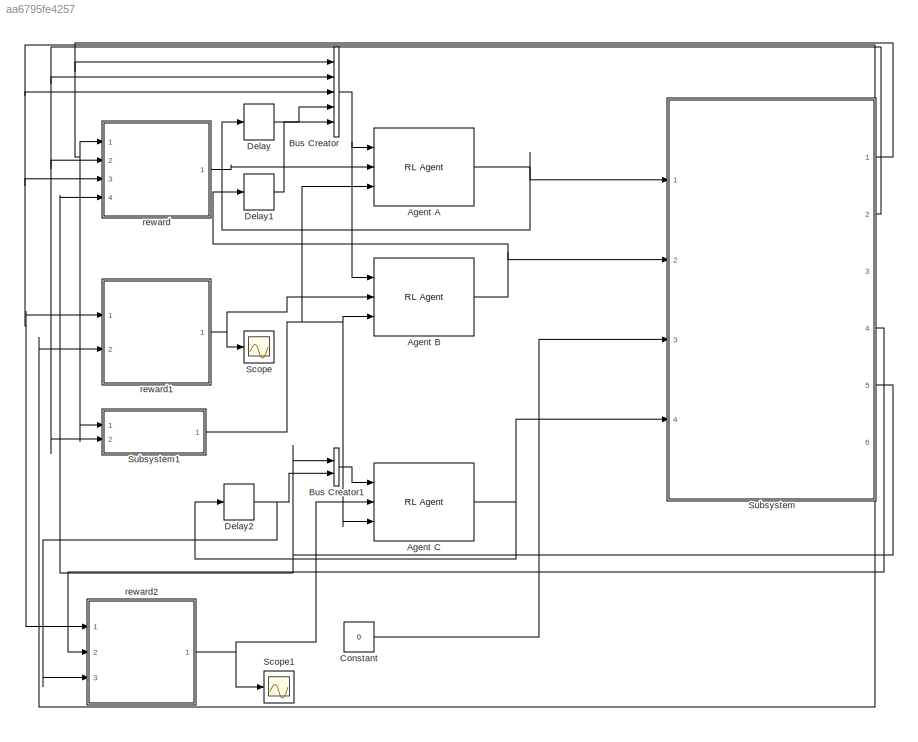
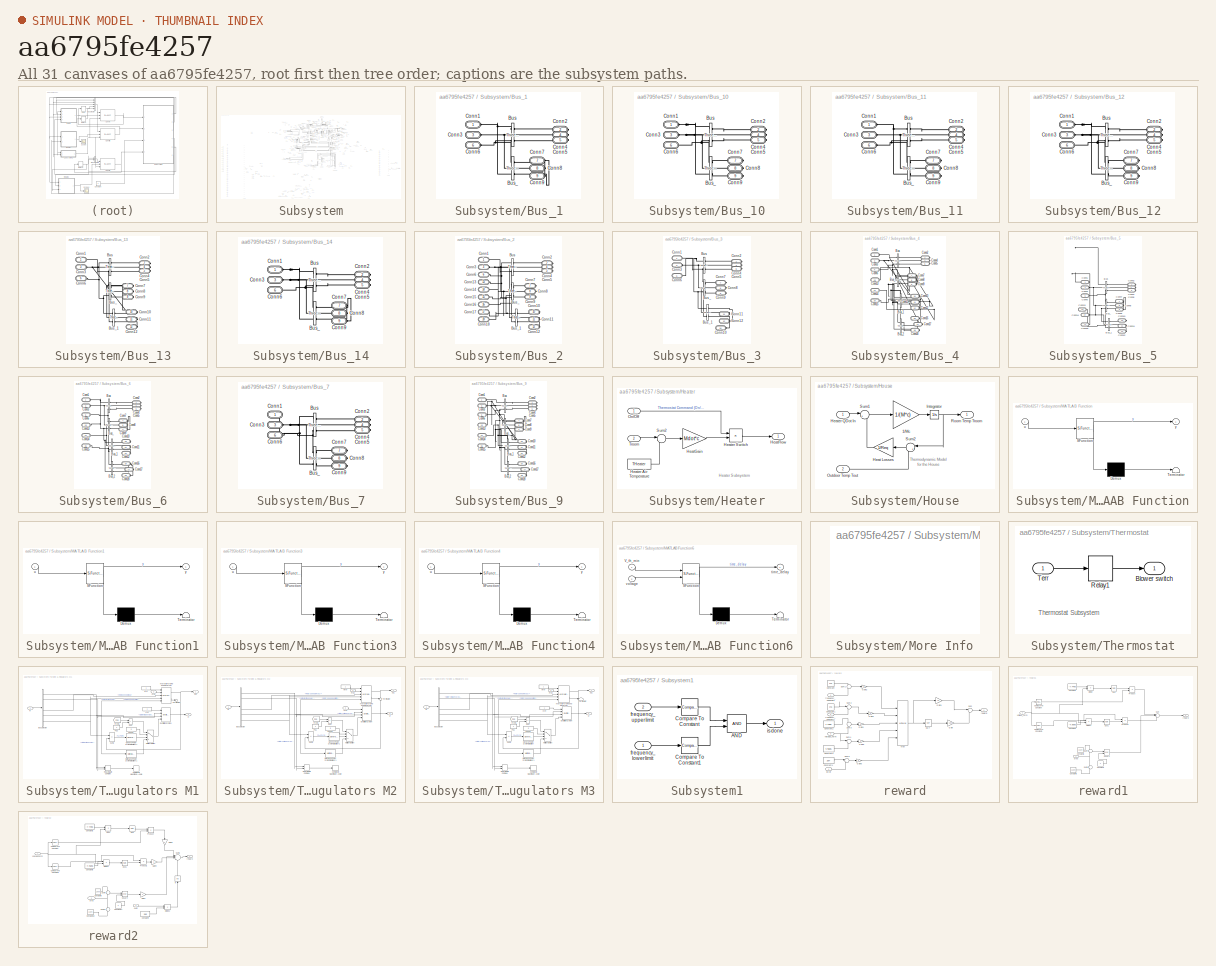
[diagram: thumbnail index - all 31 canvases of the model, root first then tree order]
MODEL slx_aa6795fe4257
KIND model
CONFIG AbsTol = auto
CONFIG EnableMultiTasking = off
CONFIG FixedStep = auto
CONFIG MaxStep = auto
CONFIG MinStep = auto
CONFIG RelTol = 1e-3
CONFIG SampleTimeConstraint = Unconstrained
CONFIG SolverName = VariableStepAuto
CONFIG StartTime = 0.0
CONFIG StopTime = 40
BLOCK [Reference] Agent A  REF=rllib/RL Agent
  Ports = [3, 1]
  SourceBlock = rllib/RL Agent
  SourceProductBaseCode = RL
  SourceType = RL Agent
BLOCK [Reference] Agent B  REF=rllib/RL Agent
  Ports = [3, 1]
  SourceBlock = rllib/RL Agent
  SourceProductBaseCode = RL
  SourceType = RL Agent
BLOCK [Reference] Agent C  REF=rllib/RL Agent
  Ports = [3, 1]
  SourceBlock = rllib/RL Agent
  SourceProductBaseCode = RL
  SourceType = RL Agent
BLOCK [BusCreator] Bus Creator
  DisplayOption = bar
  InheritFromInputs = on
  Inputs = 5
  Ports = [5, 1]
BLOCK [BusCreator] Bus Creator1
  DisplayOption = bar
  InheritFromInputs = on
  Inputs = 2
  Ports = [2, 1]
BLOCK [Constant] Constant
  Value = 0
BLOCK [Delay] Delay
  DelayLength = 1
  InputPortMap = u0
  InputProcessing = Columns as channels (frame based)
  Ports = [1, 1]
BLOCK [Delay] Delay1
  DelayLength = 1
  InputPortMap = u0
  InputProcessing = Columns as channels (frame based)
  Ports = [1, 1]
BLOCK [Delay] Delay2
  DelayLength = 1
  InputPortMap = u0
  InputProcessing = Columns as channels (frame based)
  Ports = [1, 1]
BLOCK [Scope] Scope
  Floating = off
  NumInputPorts = 1
  Ports = [1]
  ScopeSpecificationString = Simulink.scopes.TimeScopeBlockCfg('CurrentConfiguration', extmgr.ConfigurationSet(extmgr.Configuration('Core','General UI',true),extmgr.Configuration('Core','Source UI',true),extmgr.Configuration('Sources','WiredSimulink',true,'DataLoggingVariableName','ScopeData4'),extmgr.Configuration('Visuals','Time Domain',true,'SerializedDisplays',{struct('MinYLimReal','-4285575848470618169099543379968.00000'...<+1633ch>
BLOCK [Scope] Scope1
  Floating = off
  NumInputPorts = 1
  Ports = [1]
  ScopeSpecificationString = Simulink.scopes.TimeScopeBlockCfg('CurrentConfiguration', extmgr.ConfigurationSet(extmgr.Configuration('Core','General UI',true),extmgr.Configuration('Core','Source UI',true),extmgr.Configuration('Sources','WiredSimulink',true,'DataLoggingVariableName','ScopeData5'),extmgr.Configuration('Visuals','Time Domain',true,'SerializedDisplays',{struct('MinYLimReal','-4819229579440738213883046526976.00000'...<+1656ch>
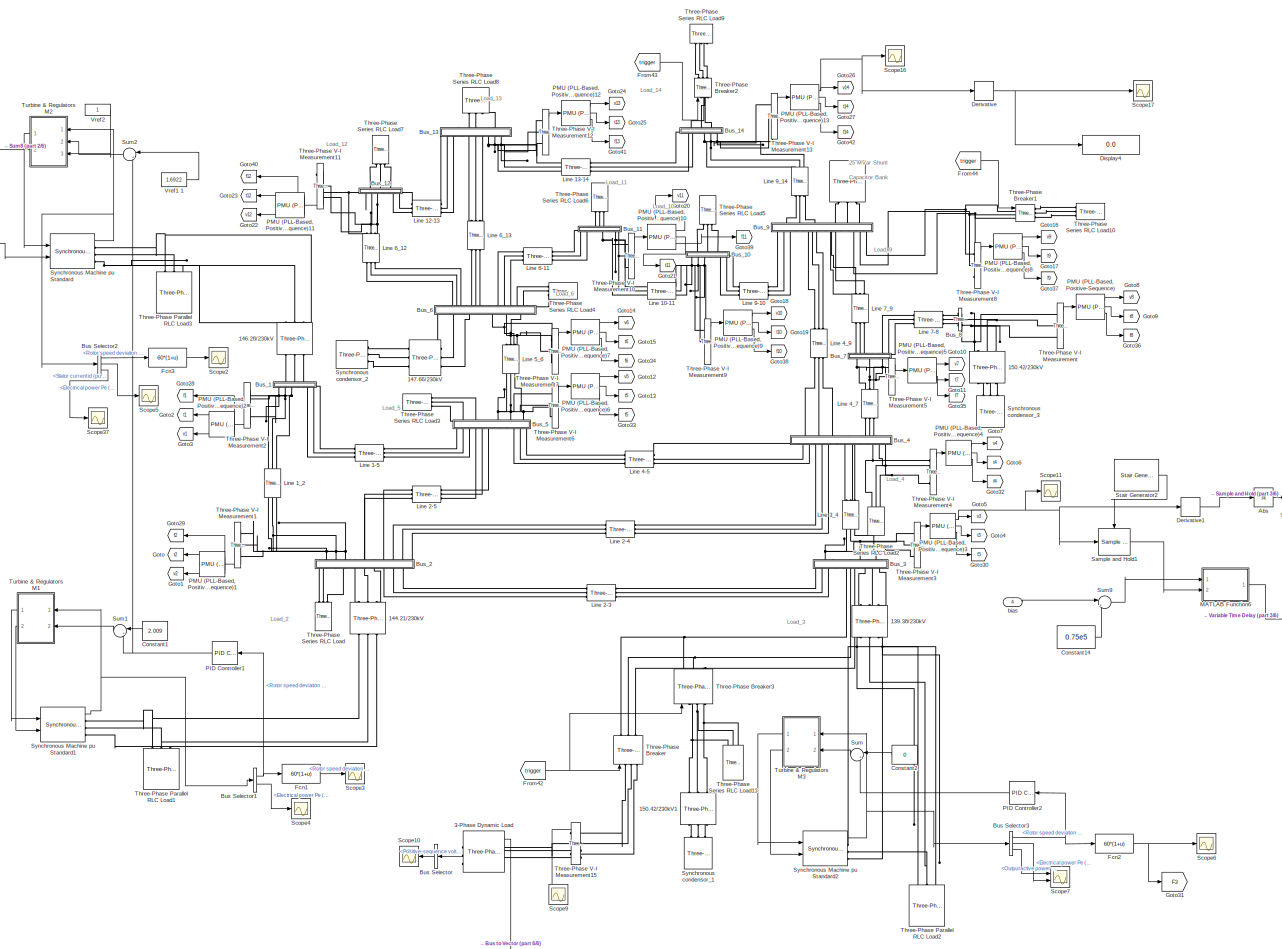
[diagram: Subsystem - part 1/6, central region]
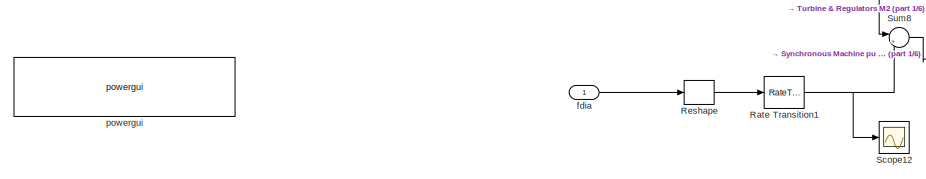
[diagram: Subsystem - part 2/6, top left region]
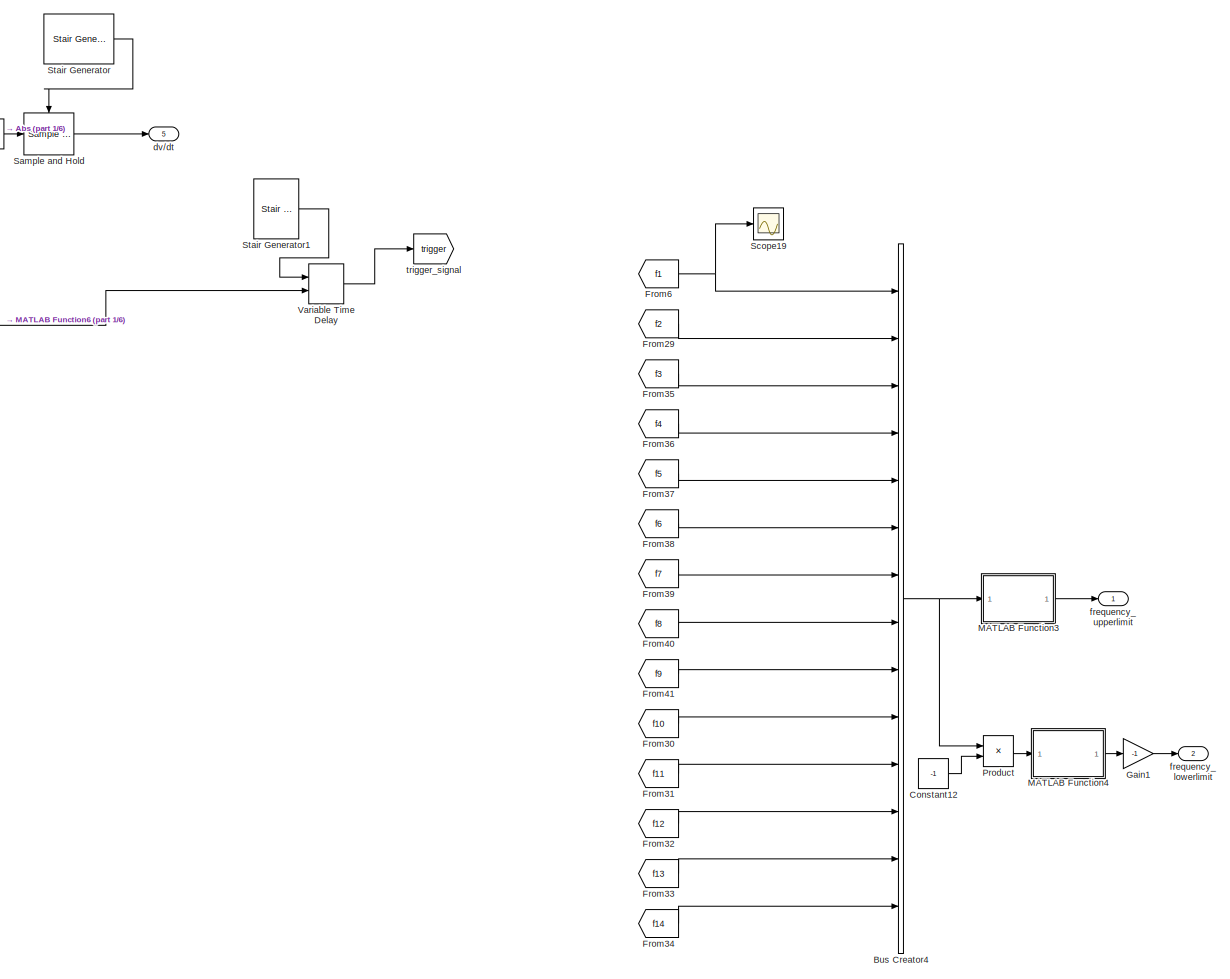
[diagram: Subsystem - part 3/6, middle right region]
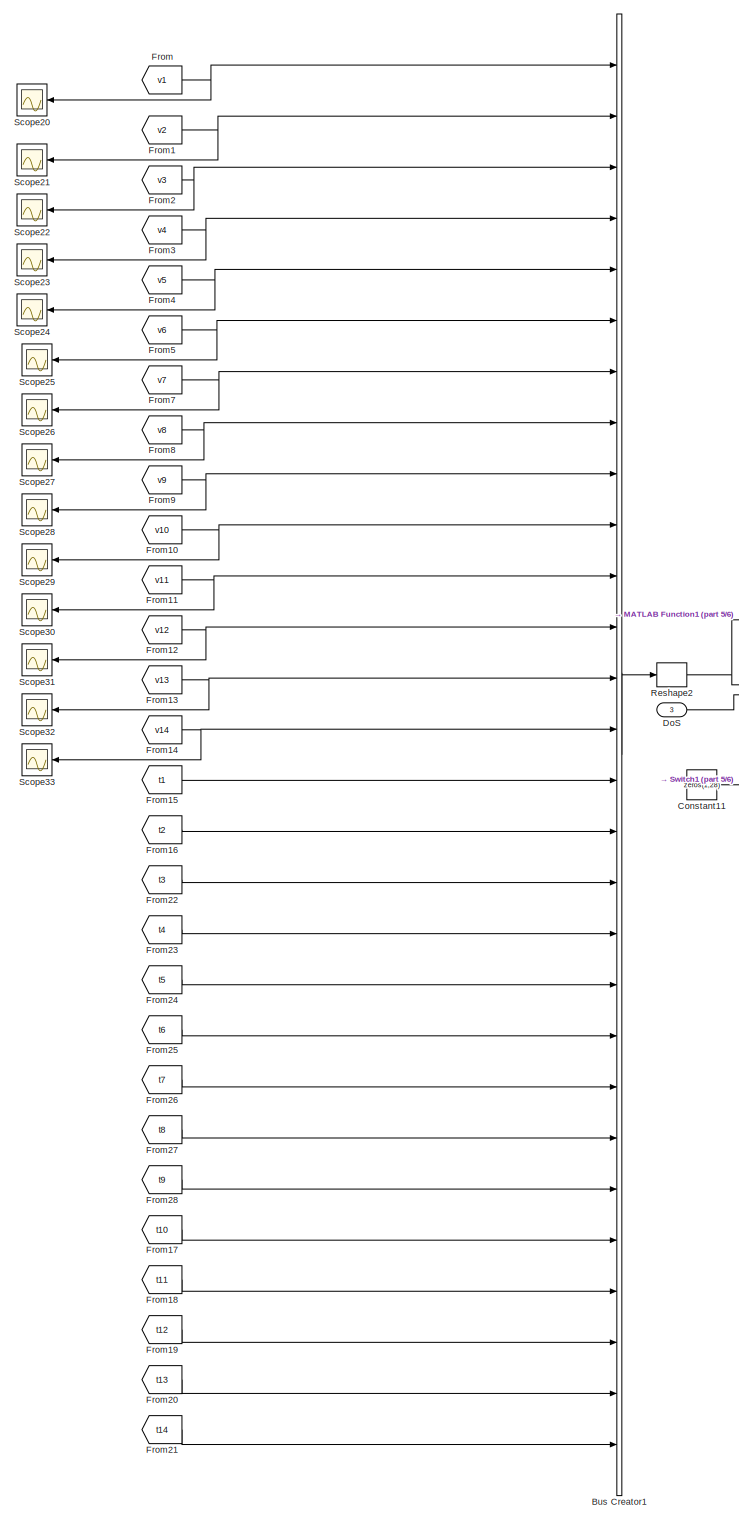
[diagram: Subsystem - part 4/6, middle left region]
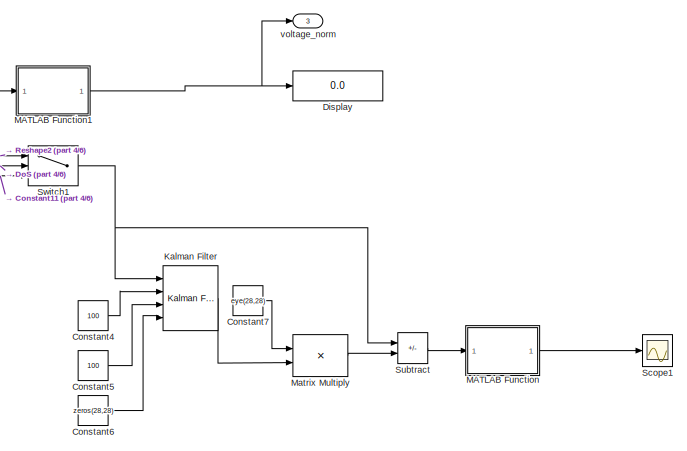
[diagram: Subsystem - part 5/6, middle left region]
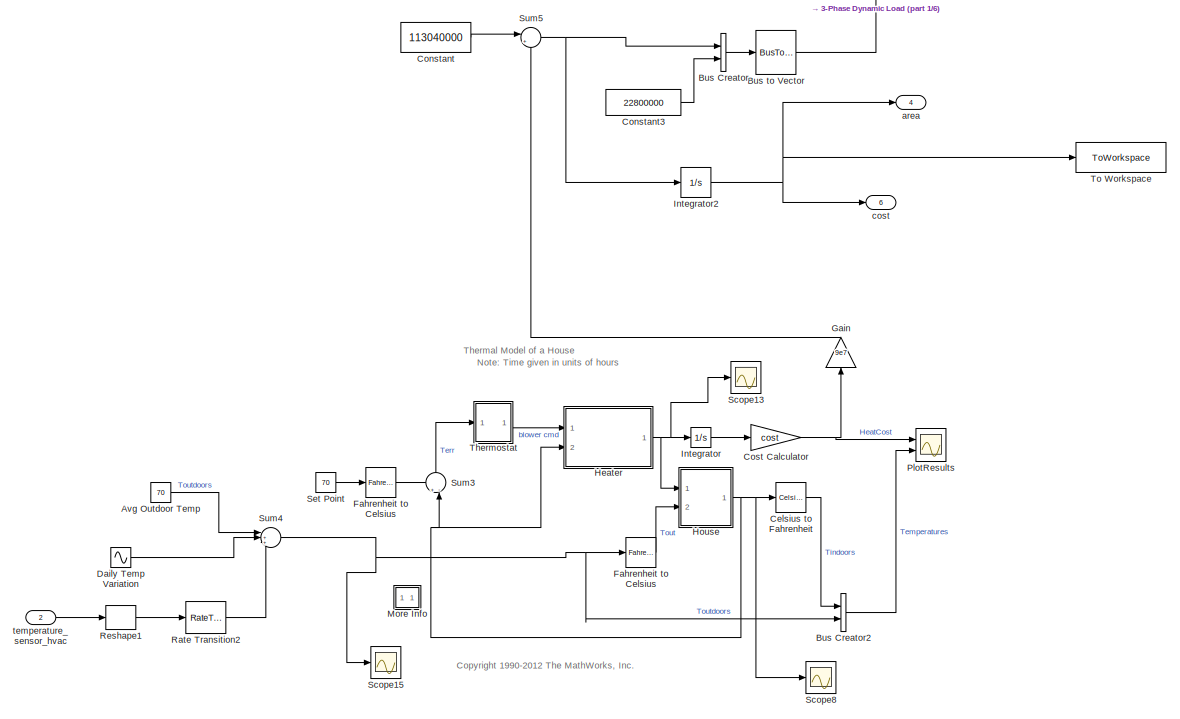
[diagram: Subsystem - part 6/6, bottom center region]
BLOCK [SubSystem] Subsystem
  Ports = [4, 6]
  RequestExecContextInheritance = off
BLOCK [Reference] Subsystem/   REF=spsThreePhaseSeriesRLCLoadLib/Three-Phase
Series RLC Load
  AttributesFormatString = \n
  NameLocation = right
  Ports = [0, 0, 0, 0, 0, 3]
  SourceBlock = spsThreePhaseSeriesRLCLoadLib/Three-Phase\nSeries RLC Load
  SourceProductBaseCode = PS
  SourceType = Three-Phase Series RLC Load
BLOCK [Reference] Subsystem/139.38//230kV  REF=spsThreePhaseTransformerTwoWindingsLib/Three-Phase
Transformer
(Two Windings)
  NameLocation = right
  Ports = [0, 0, 0, 0, 0, 3, 3]
  SourceBlock = spsThreePhaseTransformerTwoWindingsLib/Three-Phase\nTransformer\n(Two Windings)
  SourceProductBaseCode = PS
  SourceType = Three-Phase Transformer (Two Windings)
BLOCK [Reference] Subsystem/144.21//230kV  REF=spsThreePhaseTransformerTwoWindingsLib/Three-Phase
Transformer
(Two Windings)
  NameLocation = right
  Ports = [0, 0, 0, 0, 0, 3, 3]
  SourceBlock = spsThreePhaseTransformerTwoWindingsLib/Three-Phase\nTransformer\n(Two Windings)
  SourceProductBaseCode = PS
  SourceType = Three-Phase Transformer (Two Windings)
BLOCK [Reference] Subsystem/146.28//230kV  REF=spsThreePhaseTransformerTwoWindingsLib/Three-Phase
Transformer
(Two Windings)
  NameLocation = left
  Ports = [0, 0, 0, 0, 0, 3, 3]
  SourceBlock = spsThreePhaseTransformerTwoWindingsLib/Three-Phase\nTransformer\n(Two Windings)
  SourceProductBaseCode = PS
  SourceType = Three-Phase Transformer (Two Windings)
BLOCK [Reference] Subsystem/147.66//230kV  REF=spsThreePhaseTransformerTwoWindingsLib/Three-Phase
Transformer
(Two Windings)
  Ports = [0, 0, 0, 0, 0, 3, 3]
  SourceBlock = spsThreePhaseTransformerTwoWindingsLib/Three-Phase\nTransformer\n(Two Windings)
  SourceProductBaseCode = PS
  SourceType = Three-Phase Transformer (Two Windings)
BLOCK [Reference] Subsystem/150.42//230kV  REF=spsThreePhaseTransformerTwoWindingsLib/Three-Phase
Transformer
(Two Windings)
  NameLocation = right
  Ports = [0, 0, 0, 0, 0, 3, 3]
  SourceBlock = spsThreePhaseTransformerTwoWindingsLib/Three-Phase\nTransformer\n(Two Windings)
  SourceProductBaseCode = PS
  SourceType = Three-Phase Transformer (Two Windings)
BLOCK [Reference] Subsystem/150.42//230kV1  REF=spsThreePhaseTransformerTwoWindingsLib/Three-Phase
Transformer
(Two Windings)
  NameLocation = right
  Ports = [0, 0, 0, 0, 0, 3, 3]
  SourceBlock = spsThreePhaseTransformerTwoWindingsLib/Three-Phase\nTransformer\n(Two Windings)
  SourceProductBaseCode = PS
  SourceType = Three-Phase Transformer (Two Windings)
BLOCK [Reference] Subsystem/3-Phase Dynamic Load  REF=spsThreePhaseDynamicLoadLib/Three-Phase
Dynamic Load
  Ports = [1, 1, 0, 0, 0, 3]
  SourceBlock = spsThreePhaseDynamicLoadLib/Three-Phase\nDynamic Load
  SourceProductBaseCode = PS
  SourceType = Three-Phase Dynamic Load
BLOCK [Abs] Subsystem/Abs
  SaturateOnIntegerOverflow = off
BLOCK [Constant] Subsystem/Avg Outdoor Temp
  Value = 70
BLOCK [BusCreator] Subsystem/Bus Creator
  DisplayOption = bar
  InheritFromInputs = on
  Inputs = 2
  Ports = [2, 1]
BLOCK [BusCreator] Subsystem/Bus Creator1
  DisplayOption = bar
  InheritFromInputs = on
  Inputs = 28
  Ports = [28, 1]
BLOCK [BusCreator] Subsystem/Bus Creator2
  DisplayOption = bar
  InheritFromInputs = on
  Inputs = 2
  Ports = [2, 1]
BLOCK [BusCreator] Subsystem/Bus Creator4
  DisplayOption = bar
  InheritFromInputs = on
  Inputs = 14
  Ports = [14, 1]
BLOCK [BusSelector] Subsystem/Bus Selector
  NameLocation = top
  OutputSignals = Positive-sequence voltage V (pu)
  Ports = [1, 1]
BLOCK [BusSelector] Subsystem/Bus Selector1
  OutputSignals = Mechanical.Rotor speed deviation  dw (pu),Mechanical.Electrical power  Pe (pu)
  Ports = [1, 2]
BLOCK [BusSelector] Subsystem/Bus Selector2
  OutputSignals = Mechanical.Rotor speed deviation  dw (pu),Mechanical.Electrical power  Pe (pu),dq0 components.Stator current  id (pu)
  Ports = [1, 3]
BLOCK [BusSelector] Subsystem/Bus Selector3
  OutputSignals = Mechanical.Rotor speed deviation  dw (pu),Mechanical.Electrical power  Pe (pu),Output active power   Peo (pu)
  Ports = [1, 3]
BLOCK [BusToVector] Subsystem/Bus to Vector
BLOCK [SubSystem] Subsystem/Bus_1
  NameLocation = left
  Ports = [0, 0, 0, 0, 0, 3, 6]
  RequestExecContextInheritance = off
BLOCK [Reference] Subsystem/Bus_1/Bus  REF=spsThreePhaseVIMeasurementLib/Three-Phase
V-I Measurement
  Ports = [0, 0, 0, 0, 0, 3, 3]
  SourceBlock = spsThreePhaseVIMeasurementLib/Three-Phase\nV-I Measurement
  SourceProductBaseCode = PS
  SourceType = Three-Phase VI Measurement
BLOCK [Reference] Subsystem/Bus_1/Bus_  REF=spsThreePhaseVIMeasurementLib/Three-Phase
V-I Measurement
  Ports = [0, 0, 0, 0, 0, 3, 3]
  SourceBlock = spsThreePhaseVIMeasurementLib/Three-Phase\nV-I Measurement
  SourceProductBaseCode = PS
  SourceType = Three-Phase VI Measurement
BLOCK [PMIOPort] Subsystem/Bus_1/Conn1
  Side = Left
BLOCK [PMIOPort] Subsystem/Bus_1/Conn2
  Port = 2
  Side = Right
BLOCK [PMIOPort] Subsystem/Bus_1/Conn3
  Port = 3
  Side = Left
BLOCK [PMIOPort] Subsystem/Bus_1/Conn4
  Port = 4
  Side = Right
BLOCK [PMIOPort] Subsystem/Bus_1/Conn5
  Port = 5
  Side = Right
BLOCK [PMIOPort] Subsystem/Bus_1/Conn6
  Port = 6
  Side = Left
BLOCK [PMIOPort] Subsystem/Bus_1/Conn7
  Port = 7
  Side = Right
BLOCK [PMIOPort] Subsystem/Bus_1/Conn8
  Port = 8
  Side = Right
BLOCK [PMIOPort] Subsystem/Bus_1/Conn9
  Port = 9
  Side = Right
BLOCK [SubSystem] Subsystem/Bus_10
  NameLocation = left
  Ports = [0, 0, 0, 0, 0, 3, 6]
  RequestExecContextInheritance = off
BLOCK [Reference] Subsystem/Bus_10/Bus  REF=spsThreePhaseVIMeasurementLib/Three-Phase
V-I Measurement
  Ports = [0, 0, 0, 0, 0, 3, 3]
  SourceBlock = spsThreePhaseVIMeasurementLib/Three-Phase\nV-I Measurement
  SourceProductBaseCode = PS
  SourceType = Three-Phase VI Measurement
BLOCK [Reference] Subsystem/Bus_10/Bus_  REF=spsThreePhaseVIMeasurementLib/Three-Phase
V-I Measurement
  Ports = [0, 0, 0, 0, 0, 3, 3]
  SourceBlock = spsThreePhaseVIMeasurementLib/Three-Phase\nV-I Measurement
  SourceProductBaseCode = PS
  SourceType = Three-Phase VI Measurement
BLOCK [PMIOPort] Subsystem/Bus_10/Conn1
  Side = Left
BLOCK [PMIOPort] Subsystem/Bus_10/Conn2
  Port = 2
  Side = Right
BLOCK [PMIOPort] Subsystem/Bus_10/Conn3
  Port = 3
  Side = Left
BLOCK [PMIOPort] Subsystem/Bus_10/Conn4
  Port = 4
  Side = Right
BLOCK [PMIOPort] Subsystem/Bus_10/Conn5
  Port = 5
  Side = Right
BLOCK [PMIOPort] Subsystem/Bus_10/Conn6
  Port = 6
  Side = Left
BLOCK [PMIOPort] Subsystem/Bus_10/Conn7
  Port = 7
  Side = Right
BLOCK [PMIOPort] Subsystem/Bus_10/Conn8
  Port = 8
  Side = Right
BLOCK [PMIOPort] Subsystem/Bus_10/Conn9
  Port = 9
  Side = Right
BLOCK [SubSystem] Subsystem/Bus_11
  NameLocation = left
  Ports = [0, 0, 0, 0, 0, 3, 6]
  RequestExecContextInheritance = off
BLOCK [Reference] Subsystem/Bus_11/Bus  REF=spsThreePhaseVIMeasurementLib/Three-Phase
V-I Measurement
  Ports = [0, 0, 0, 0, 0, 3, 3]
  SourceBlock = spsThreePhaseVIMeasurementLib/Three-Phase\nV-I Measurement
  SourceProductBaseCode = PS
  SourceType = Three-Phase VI Measurement
BLOCK [Reference] Subsystem/Bus_11/Bus_  REF=spsThreePhaseVIMeasurementLib/Three-Phase
V-I Measurement
  Ports = [0, 0, 0, 0, 0, 3, 3]
  SourceBlock = spsThreePhaseVIMeasurementLib/Three-Phase\nV-I Measurement
  SourceProductBaseCode = PS
  SourceType = Three-Phase VI Measurement
BLOCK [PMIOPort] Subsystem/Bus_11/Conn1
  Side = Left
BLOCK [PMIOPort] Subsystem/Bus_11/Conn2
  Port = 2
  Side = Right
BLOCK [PMIOPort] Subsystem/Bus_11/Conn3
  Port = 3
  Side = Left
BLOCK [PMIOPort] Subsystem/Bus_11/Conn4
  Port = 4
  Side = Right
BLOCK [PMIOPort] Subsystem/Bus_11/Conn5
  Port = 5
  Side = Right
BLOCK [PMIOPort] Subsystem/Bus_11/Conn6
  Port = 6
  Side = Left
BLOCK [PMIOPort] Subsystem/Bus_11/Conn7
  Port = 7
  Side = Right
BLOCK [PMIOPort] Subsystem/Bus_11/Conn8
  Port = 8
  Side = Right
BLOCK [PMIOPort] Subsystem/Bus_11/Conn9
  Port = 9
  Side = Right
BLOCK [SubSystem] Subsystem/Bus_12
  NameLocation = left
  Ports = [0, 0, 0, 0, 0, 3, 6]
  RequestExecContextInheritance = off
BLOCK [Reference] Subsystem/Bus_12/Bus  REF=spsThreePhaseVIMeasurementLib/Three-Phase
V-I Measurement
  Ports = [0, 0, 0, 0, 0, 3, 3]
  SourceBlock = spsThreePhaseVIMeasurementLib/Three-Phase\nV-I Measurement
  SourceProductBaseCode = PS
  SourceType = Three-Phase VI Measurement
BLOCK [Reference] Subsystem/Bus_12/Bus_  REF=spsThreePhaseVIMeasurementLib/Three-Phase
V-I Measurement
  Ports = [0, 0, 0, 0, 0, 3, 3]
  SourceBlock = spsThreePhaseVIMeasurementLib/Three-Phase\nV-I Measurement
  SourceProductBaseCode = PS
  SourceType = Three-Phase VI Measurement
BLOCK [PMIOPort] Subsystem/Bus_12/Conn1
  Side = Left
BLOCK [PMIOPort] Subsystem/Bus_12/Conn2
  Port = 2
  Side = Right
BLOCK [PMIOPort] Subsystem/Bus_12/Conn3
  Port = 3
  Side = Left
BLOCK [PMIOPort] Subsystem/Bus_12/Conn4
  Port = 4
  Side = Right
BLOCK [PMIOPort] Subsystem/Bus_12/Conn5
  Port = 5
  Side = Right
BLOCK [PMIOPort] Subsystem/Bus_12/Conn6
  Port = 6
  Side = Left
BLOCK [PMIOPort] Subsystem/Bus_12/Conn7
  Port = 7
  Side = Right
BLOCK [PMIOPort] Subsystem/Bus_12/Conn8
  Port = 8
  Side = Right
BLOCK [PMIOPort] Subsystem/Bus_12/Conn9
  Port = 9
  Side = Right
BLOCK [SubSystem] Subsystem/Bus_13
  NameLocation = left
  Ports = [0, 0, 0, 0, 0, 3, 9]
  RequestExecContextInheritance = off
BLOCK [Reference] Subsystem/Bus_13/Bus  REF=spsThreePhaseVIMeasurementLib/Three-Phase
V-I Measurement
  Ports = [0, 0, 0, 0, 0, 3, 3]
  SourceBlock = spsThreePhaseVIMeasurementLib/Three-Phase\nV-I Measurement
  SourceProductBaseCode = PS
  SourceType = Three-Phase VI Measurement
BLOCK [Reference] Subsystem/Bus_13/Bus_  REF=spsThreePhaseVIMeasurementLib/Three-Phase
V-I Measurement
  Ports = [0, 0, 0, 0, 0, 3, 3]
  SourceBlock = spsThreePhaseVIMeasurementLib/Three-Phase\nV-I Measurement
  SourceProductBaseCode = PS
  SourceType = Three-Phase VI Measurement
BLOCK [Reference] Subsystem/Bus_13/Bus_1  REF=spsThreePhaseVIMeasurementLib/Three-Phase
V-I Measurement
  Ports = [0, 0, 0, 0, 0, 3, 3]
  SourceBlock = spsThreePhaseVIMeasurementLib/Three-Phase\nV-I Measurement
  SourceProductBaseCode = PS
  SourceType = Three-Phase VI Measurement
BLOCK [PMIOPort] Subsystem/Bus_13/Conn1
  Side = Left
BLOCK [PMIOPort] Subsystem/Bus_13/Conn10
  Port = 10
  Side = Right
BLOCK [PMIOPort] Subsystem/Bus_13/Conn11
  Port = 11
  Side = Right
BLOCK [PMIOPort] Subsystem/Bus_13/Conn12
  Port = 12
  Side = Right
BLOCK [PMIOPort] Subsystem/Bus_13/Conn2
  Port = 2
  Side = Right
BLOCK [PMIOPort] Subsystem/Bus_13/Conn3
  Port = 3
  Side = Left
BLOCK [PMIOPort] Subsystem/Bus_13/Conn4
  Port = 4
  Side = Right
BLOCK [PMIOPort] Subsystem/Bus_13/Conn5
  Port = 5
  Side = Right
BLOCK [PMIOPort] Subsystem/Bus_13/Conn6
  Port = 6
  Side = Left
BLOCK [PMIOPort] Subsystem/Bus_13/Conn7
  Port = 7
  Side = Right
BLOCK [PMIOPort] Subsystem/Bus_13/Conn8
  Port = 8
  Side = Right
BLOCK [PMIOPort] Subsystem/Bus_13/Conn9
  Port = 9
  Side = Right
BLOCK [SubSystem] Subsystem/Bus_14
  NameLocation = left
  Ports = [0, 0, 0, 0, 0, 3, 6]
  RequestExecContextInheritance = off
BLOCK [Reference] Subsystem/Bus_14/Bus  REF=spsThreePhaseVIMeasurementLib/Three-Phase
V-I Measurement
  Ports = [0, 0, 0, 0, 0, 3, 3]
  SourceBlock = spsThreePhaseVIMeasurementLib/Three-Phase\nV-I Measurement
  SourceProductBaseCode = PS
  SourceType = Three-Phase VI Measurement
BLOCK [Reference] Subsystem/Bus_14/Bus_  REF=spsThreePhaseVIMeasurementLib/Three-Phase
V-I Measurement
  Ports = [0, 0, 0, 0, 0, 3, 3]
  SourceBlock = spsThreePhaseVIMeasurementLib/Three-Phase\nV-I Measurement
  SourceProductBaseCode = PS
  SourceType = Three-Phase VI Measurement
BLOCK [PMIOPort] Subsystem/Bus_14/Conn1
  Side = Left
BLOCK [PMIOPort] Subsystem/Bus_14/Conn2
  Port = 2
  Side = Right
BLOCK [PMIOPort] Subsystem/Bus_14/Conn3
  Port = 3
  Side = Left
BLOCK [PMIOPort] Subsystem/Bus_14/Conn4
  Port = 4
  Side = Right
BLOCK [PMIOPort] Subsystem/Bus_14/Conn5
  Port = 5
  Side = Right
BLOCK [PMIOPort] Subsystem/Bus_14/Conn6
  Port = 6
  Side = Left
BLOCK [PMIOPort] Subsystem/Bus_14/Conn7
  Port = 7
  Side = Right
BLOCK [PMIOPort] Subsystem/Bus_14/Conn8
  Port = 8
  Side = Right
BLOCK [PMIOPort] Subsystem/Bus_14/Conn9
  Port = 9
  Side = Right
BLOCK [SubSystem] Subsystem/Bus_2
  NameLocation = left
  Ports = [0, 0, 0, 0, 0, 9, 9]
  RequestExecContextInheritance = off
BLOCK [Reference] Subsystem/Bus_2/Bus  REF=spsThreePhaseVIMeasurementLib/Three-Phase
V-I Measurement
  Ports = [0, 0, 0, 0, 0, 3, 3]
  SourceBlock = spsThreePhaseVIMeasurementLib/Three-Phase\nV-I Measurement
  SourceProductBaseCode = PS
  SourceType = Three-Phase VI Measurement
BLOCK [Reference] Subsystem/Bus_2/Bus_  REF=spsThreePhaseVIMeasurementLib/Three-Phase
V-I Measurement
  Ports = [0, 0, 0, 0, 0, 3, 3]
  SourceBlock = spsThreePhaseVIMeasurementLib/Three-Phase\nV-I Measurement
  SourceProductBaseCode = PS
  SourceType = Three-Phase VI Measurement
BLOCK [Reference] Subsystem/Bus_2/Bus_1  REF=spsThreePhaseVIMeasurementLib/Three-Phase
V-I Measurement
  Ports = [0, 0, 0, 0, 0, 3, 3]
  SourceBlock = spsThreePhaseVIMeasurementLib/Three-Phase\nV-I Measurement
  SourceProductBaseCode = PS
  SourceType = Three-Phase VI Measurement
BLOCK [PMIOPort] Subsystem/Bus_2/Conn1
  Side = Left
BLOCK [PMIOPort] Subsystem/Bus_2/Conn10
  Port = 10
  Side = Right
BLOCK [PMIOPort] Subsystem/Bus_2/Conn11
  Port = 11
  Side = Right
BLOCK [PMIOPort] Subsystem/Bus_2/Conn12
  Port = 12
  Side = Right
BLOCK [PMIOPort] Subsystem/Bus_2/Conn13
  Port = 13
  Side = Left
BLOCK [PMIOPort] Subsystem/Bus_2/Conn14
  Port = 14
  Side = Left
BLOCK [PMIOPort] Subsystem/Bus_2/Conn15
  Port = 15
  Side = Left
BLOCK [PMIOPort] Subsystem/Bus_2/Conn16
  Port = 16
  Side = Left
BLOCK [PMIOPort] Subsystem/Bus_2/Conn17
  Port = 17
  Side = Left
BLOCK [PMIOPort] Subsystem/Bus_2/Conn18
  Port = 18
  Side = Left
BLOCK [PMIOPort] Subsystem/Bus_2/Conn2
  Port = 2
  Side = Right
BLOCK [PMIOPort] Subsystem/Bus_2/Conn3
  Port = 3
  Side = Left
BLOCK [PMIOPort] Subsystem/Bus_2/Conn4
  Port = 4
  Side = Right
BLOCK [PMIOPort] Subsystem/Bus_2/Conn5
  Port = 5
  Side = Right
BLOCK [PMIOPort] Subsystem/Bus_2/Conn6
  Port = 6
  Side = Left
BLOCK [PMIOPort] Subsystem/Bus_2/Conn7
  Port = 7
  Side = Right
BLOCK [PMIOPort] Subsystem/Bus_2/Conn8
  Port = 8
  Side = Right
BLOCK [PMIOPort] Subsystem/Bus_2/Conn9
  Port = 9
  Side = Right
BLOCK [SubSystem] Subsystem/Bus_3
  NameLocation = left
  Ports = [0, 0, 0, 0, 0, 3, 9]
  RequestExecContextInheritance = off
BLOCK [Reference] Subsystem/Bus_3/Bus  REF=spsThreePhaseVIMeasurementLib/Three-Phase
V-I Measurement
  Ports = [0, 0, 0, 0, 0, 3, 3]
  SourceBlock = spsThreePhaseVIMeasurementLib/Three-Phase\nV-I Measurement
  SourceProductBaseCode = PS
  SourceType = Three-Phase VI Measurement
BLOCK [Reference] Subsystem/Bus_3/Bus_  REF=spsThreePhaseVIMeasurementLib/Three-Phase
V-I Measurement
  Ports = [0, 0, 0, 0, 0, 3, 3]
  SourceBlock = spsThreePhaseVIMeasurementLib/Three-Phase\nV-I Measurement
  SourceProductBaseCode = PS
  SourceType = Three-Phase VI Measurement
BLOCK [Reference] Subsystem/Bus_3/Bus_1  REF=spsThreePhaseVIMeasurementLib/Three-Phase
V-I Measurement
  Ports = [0, 0, 0, 0, 0, 3, 3]
  SourceBlock = spsThreePhaseVIMeasurementLib/Three-Phase\nV-I Measurement
  SourceProductBaseCode = PS
  SourceType = Three-Phase VI Measurement
BLOCK [PMIOPort] Subsystem/Bus_3/Conn1
  Side = Left
BLOCK [PMIOPort] Subsystem/Bus_3/Conn10
  Port = 10
  Side = Right
BLOCK [PMIOPort] Subsystem/Bus_3/Conn11
  Port = 11
  Side = Right
BLOCK [PMIOPort] Subsystem/Bus_3/Conn12
  Port = 12
  Side = Right
BLOCK [PMIOPort] Subsystem/Bus_3/Conn2
  Port = 2
  Side = Right
BLOCK [PMIOPort] Subsystem/Bus_3/Conn3
  Port = 3
  Side = Left
BLOCK [PMIOPort] Subsystem/Bus_3/Conn4
  Port = 4
  Side = Right
BLOCK [PMIOPort] Subsystem/Bus_3/Conn5
  Port = 5
  Side = Right
BLOCK [PMIOPort] Subsystem/Bus_3/Conn6
  Port = 6
  Side = Left
BLOCK [PMIOPort] Subsystem/Bus_3/Conn7
  Port = 7
  Side = Right
BLOCK [PMIOPort] Subsystem/Bus_3/Conn8
  Port = 8
  Side = Right
BLOCK [PMIOPort] Subsystem/Bus_3/Conn9
  Port = 9
  Side = Right
BLOCK [SubSystem] Subsystem/Bus_4
  NameLocation = left
  Ports = [0, 0, 0, 0, 0, 6, 12]
  RequestExecContextInheritance = off
BLOCK [Reference] Subsystem/Bus_4/Bus  REF=spsThreePhaseVIMeasurementLib/Three-Phase
V-I Measurement
  Ports = [0, 0, 0, 0, 0, 3, 3]
  SourceBlock = spsThreePhaseVIMeasurementLib/Three-Phase\nV-I Measurement
  SourceProductBaseCode = PS
  SourceType = Three-Phase VI Measurement
BLOCK [Reference] Subsystem/Bus_4/Bus_  REF=spsThreePhaseVIMeasurementLib/Three-Phase
V-I Measurement
  Ports = [0, 0, 0, 0, 0, 3, 3]
  SourceBlock = spsThreePhaseVIMeasurementLib/Three-Phase\nV-I Measurement
  SourceProductBaseCode = PS
  SourceType = Three-Phase VI Measurement
BLOCK [Reference] Subsystem/Bus_4/Bus_1  REF=spsThreePhaseVIMeasurementLib/Three-Phase
V-I Measurement
  Ports = [0, 0, 0, 0, 0, 3, 3]
  SourceBlock = spsThreePhaseVIMeasurementLib/Three-Phase\nV-I Measurement
  SourceProductBaseCode = PS
  SourceType = Three-Phase VI Measurement
BLOCK [Reference] Subsystem/Bus_4/Bus_2  REF=spsThreePhaseVIMeasurementLib/Three-Phase
V-I Measurement
  Ports = [0, 0, 0, 0, 0, 3, 3]
  SourceBlock = spsThreePhaseVIMeasurementLib/Three-Phase\nV-I Measurement
  SourceProductBaseCode = PS
  SourceType = Three-Phase VI Measurement
BLOCK [PMIOPort] Subsystem/Bus_4/Conn1
  Side = Left
BLOCK [PMIOPort] Subsystem/Bus_4/Conn10
  Port = 10
  Side = Right
BLOCK [PMIOPort] Subsystem/Bus_4/Conn11
  Port = 11
  Side = Right
BLOCK [PMIOPort] Subsystem/Bus_4/Conn12
  Port = 12
  Side = Right
BLOCK [PMIOPort] Subsystem/Bus_4/Conn13
  Port = 13
  Side = Left
BLOCK [PMIOPort] Subsystem/Bus_4/Conn14
  Port = 14
  Side = Left
BLOCK [PMIOPort] Subsystem/Bus_4/Conn15
  Port = 15
  Side = Left
BLOCK [PMIOPort] Subsystem/Bus_4/Conn16
  Port = 16
  Side = Right
BLOCK [PMIOPort] Subsystem/Bus_4/Conn17
  Port = 17
  Side = Right
BLOCK [PMIOPort] Subsystem/Bus_4/Conn18
  Port = 18
  Side = Right
BLOCK [PMIOPort] Subsystem/Bus_4/Conn2
  Port = 2
  Side = Right
BLOCK [PMIOPort] Subsystem/Bus_4/Conn3
  Port = 3
  Side = Left
BLOCK [PMIOPort] Subsystem/Bus_4/Conn4
  Port = 4
  Side = Right
BLOCK [PMIOPort] Subsystem/Bus_4/Conn5
  Port = 5
  Side = Right
BLOCK [PMIOPort] Subsystem/Bus_4/Conn6
  Port = 6
  Side = Left
BLOCK [PMIOPort] Subsystem/Bus_4/Conn7
  Port = 7
  Side = Right
BLOCK [PMIOPort] Subsystem/Bus_4/Conn8
  Port = 8
  Side = Right
BLOCK [PMIOPort] Subsystem/Bus_4/Conn9
  Port = 9
  Side = Right
BLOCK [SubSystem] Subsystem/Bus_5
  NameLocation = left
  Ports = [0, 0, 0, 0, 0, 6, 9]
  RequestExecContextInheritance = off
BLOCK [Reference] Subsystem/Bus_5/Bus  REF=spsThreePhaseVIMeasurementLib/Three-Phase
V-I Measurement
  Ports = [0, 0, 0, 0, 0, 3, 3]
  SourceBlock = spsThreePhaseVIMeasurementLib/Three-Phase\nV-I Measurement
  SourceProductBaseCode = PS
  SourceType = Three-Phase VI Measurement
BLOCK [Reference] Subsystem/Bus_5/Bus_  REF=spsThreePhaseVIMeasurementLib/Three-Phase
V-I Measurement
  Ports = [0, 0, 0, 0, 0, 3, 3]
  SourceBlock = spsThreePhaseVIMeasurementLib/Three-Phase\nV-I Measurement
  SourceProductBaseCode = PS
  SourceType = Three-Phase VI Measurement
BLOCK [Reference] Subsystem/Bus_5/Bus_1  REF=spsThreePhaseVIMeasurementLib/Three-Phase
V-I Measurement
  Ports = [0, 0, 0, 0, 0, 3, 3]
  SourceBlock = spsThreePhaseVIMeasurementLib/Three-Phase\nV-I Measurement
  SourceProductBaseCode = PS
  SourceType = Three-Phase VI Measurement
BLOCK [PMIOPort] Subsystem/Bus_5/Conn1
  Side = Left
BLOCK [PMIOPort] Subsystem/Bus_5/Conn10
  Port = 10
  Side = Right
BLOCK [PMIOPort] Subsystem/Bus_5/Conn11
  Port = 11
  Side = Right
BLOCK [PMIOPort] Subsystem/Bus_5/Conn12
  Port = 12
  Side = Right
BLOCK [PMIOPort] Subsystem/Bus_5/Conn13
  Port = 13
  Side = Left
BLOCK [PMIOPort] Subsystem/Bus_5/Conn14
  Port = 14
  Side = Left
BLOCK [PMIOPort] Subsystem/Bus_5/Conn15
  Port = 15
  Side = Left
BLOCK [PMIOPort] Subsystem/Bus_5/Conn2
  Port = 2
  Side = Right
BLOCK [PMIOPort] Subsystem/Bus_5/Conn3
  Port = 3
  Side = Left
BLOCK [PMIOPort] Subsystem/Bus_5/Conn4
  Port = 4
  Side = Right
BLOCK [PMIOPort] Subsystem/Bus_5/Conn5
  Port = 5
  Side = Right
BLOCK [PMIOPort] Subsystem/Bus_5/Conn6
  Port = 6
  Side = Left
BLOCK [PMIOPort] Subsystem/Bus_5/Conn7
  Port = 7
  Side = Right
BLOCK [PMIOPort] Subsystem/Bus_5/Conn8
  Port = 8
  Side = Right
BLOCK [PMIOPort] Subsystem/Bus_5/Conn9
  Port = 9
  Side = Right
BLOCK [SubSystem] Subsystem/Bus_6
  NameLocation = right
  Ports = [0, 0, 0, 0, 0, 6, 12]
  RequestExecContextInheritance = off
BLOCK [Reference] Subsystem/Bus_6/Bus  REF=spsThreePhaseVIMeasurementLib/Three-Phase
V-I Measurement
  Ports = [0, 0, 0, 0, 0, 3, 3]
  SourceBlock = spsThreePhaseVIMeasurementLib/Three-Phase\nV-I Measurement
  SourceProductBaseCode = PS
  SourceType = Three-Phase VI Measurement
BLOCK [Reference] Subsystem/Bus_6/Bus_  REF=spsThreePhaseVIMeasurementLib/Three-Phase
V-I Measurement
  Ports = [0, 0, 0, 0, 0, 3, 3]
  SourceBlock = spsThreePhaseVIMeasurementLib/Three-Phase\nV-I Measurement
  SourceProductBaseCode = PS
  SourceType = Three-Phase VI Measurement
BLOCK [Reference] Subsystem/Bus_6/Bus_1  REF=spsThreePhaseVIMeasurementLib/Three-Phase
V-I Measurement
  Ports = [0, 0, 0, 0, 0, 3, 3]
  SourceBlock = spsThreePhaseVIMeasurementLib/Three-Phase\nV-I Measurement
  SourceProductBaseCode = PS
  SourceType = Three-Phase VI Measurement
BLOCK [Reference] Subsystem/Bus_6/Bus_2  REF=spsThreePhaseVIMeasurementLib/Three-Phase
V-I Measurement
  Ports = [0, 0, 0, 0, 0, 3, 3]
  SourceBlock = spsThreePhaseVIMeasurementLib/Three-Phase\nV-I Measurement
  SourceProductBaseCode = PS
  SourceType = Three-Phase VI Measurement
BLOCK [PMIOPort] Subsystem/Bus_6/Conn1
  Side = Left
BLOCK [PMIOPort] Subsystem/Bus_6/Conn10
  Port = 10
  Side = Right
BLOCK [PMIOPort] Subsystem/Bus_6/Conn11
  Port = 11
  Side = Right
BLOCK [PMIOPort] Subsystem/Bus_6/Conn12
  Port = 12
  Side = Right
BLOCK [PMIOPort] Subsystem/Bus_6/Conn13
  Port = 13
  Side = Left
BLOCK [PMIOPort] Subsystem/Bus_6/Conn14
  Port = 14
  Side = Left
BLOCK [PMIOPort] Subsystem/Bus_6/Conn15
  Port = 15
  Side = Left
BLOCK [PMIOPort] Subsystem/Bus_6/Conn16
  Port = 16
  Side = Right
BLOCK [PMIOPort] Subsystem/Bus_6/Conn17
  Port = 17
  Side = Right
BLOCK [PMIOPort] Subsystem/Bus_6/Conn18
  Port = 18
  Side = Right
BLOCK [PMIOPort] Subsystem/Bus_6/Conn2
  Port = 2
  Side = Right
BLOCK [PMIOPort] Subsystem/Bus_6/Conn3
  Port = 3
  Side = Left
BLOCK [PMIOPort] Subsystem/Bus_6/Conn4
  Port = 4
  Side = Right
BLOCK [PMIOPort] Subsystem/Bus_6/Conn5
  Port = 5
  Side = Right
BLOCK [PMIOPort] Subsystem/Bus_6/Conn6
  Port = 6
  Side = Left
BLOCK [PMIOPort] Subsystem/Bus_6/Conn7
  Port = 7
  Side = Right
BLOCK [PMIOPort] Subsystem/Bus_6/Conn8
  Port = 8
  Side = Right
BLOCK [PMIOPort] Subsystem/Bus_6/Conn9
  Port = 9
  Side = Right
BLOCK [SubSystem] Subsystem/Bus_7
  NameLocation = right
  Ports = [0, 0, 0, 0, 0, 3, 6]
  RequestExecContextInheritance = off
BLOCK [Reference] Subsystem/Bus_7/Bus  REF=spsThreePhaseVIMeasurementLib/Three-Phase
V-I Measurement
  Ports = [0, 0, 0, 0, 0, 3, 3]
  SourceBlock = spsThreePhaseVIMeasurementLib/Three-Phase\nV-I Measurement
  SourceProductBaseCode = PS
  SourceType = Three-Phase VI Measurement
BLOCK [Reference] Subsystem/Bus_7/Bus_  REF=spsThreePhaseVIMeasurementLib/Three-Phase
V-I Measurement
  Ports = [0, 0, 0, 0, 0, 3, 3]
  SourceBlock = spsThreePhaseVIMeasurementLib/Three-Phase\nV-I Measurement
  SourceProductBaseCode = PS
  SourceType = Three-Phase VI Measurement
BLOCK [PMIOPort] Subsystem/Bus_7/Conn1
  Side = Left
BLOCK [PMIOPort] Subsystem/Bus_7/Conn2
  Port = 2
  Side = Right
BLOCK [PMIOPort] Subsystem/Bus_7/Conn3
  Port = 3
  Side = Left
BLOCK [PMIOPort] Subsystem/Bus_7/Conn4
  Port = 4
  Side = Right
BLOCK [PMIOPort] Subsystem/Bus_7/Conn5
  Port = 5
  Side = Right
BLOCK [PMIOPort] Subsystem/Bus_7/Conn6
  Port = 6
  Side = Left
BLOCK [PMIOPort] Subsystem/Bus_7/Conn7
  Port = 7
  Side = Right
BLOCK [PMIOPort] Subsystem/Bus_7/Conn8
  Port = 8
  Side = Right
BLOCK [PMIOPort] Subsystem/Bus_7/Conn9
  Port = 9
  Side = Right
BLOCK [Reference] Subsystem/Bus_8  REF=spsThreePhaseVIMeasurementLib/Three-Phase
V-I Measurement
  Ports = [0, 0, 0, 0, 0, 3, 3]
  SourceBlock = spsThreePhaseVIMeasurementLib/Three-Phase\nV-I Measurement
  SourceProductBaseCode = PS
  SourceType = Three-Phase VI Measurement
BLOCK [SubSystem] Subsystem/Bus_9
  NameLocation = left
  Ports = [0, 0, 0, 0, 0, 6, 12]
  RequestExecContextInheritance = off
BLOCK [Reference] Subsystem/Bus_9/Bus  REF=spsThreePhaseVIMeasurementLib/Three-Phase
V-I Measurement
  Ports = [0, 0, 0, 0, 0, 3, 3]
  SourceBlock = spsThreePhaseVIMeasurementLib/Three-Phase\nV-I Measurement
  SourceProductBaseCode = PS
  SourceType = Three-Phase VI Measurement
BLOCK [Reference] Subsystem/Bus_9/Bus_  REF=spsThreePhaseVIMeasurementLib/Three-Phase
V-I Measurement
  Ports = [0, 0, 0, 0, 0, 3, 3]
  SourceBlock = spsThreePhaseVIMeasurementLib/Three-Phase\nV-I Measurement
  SourceProductBaseCode = PS
  SourceType = Three-Phase VI Measurement
BLOCK [Reference] Subsystem/Bus_9/Bus_1  REF=spsThreePhaseVIMeasurementLib/Three-Phase
V-I Measurement
  Ports = [0, 0, 0, 0, 0, 3, 3]
  SourceBlock = spsThreePhaseVIMeasurementLib/Three-Phase\nV-I Measurement
  SourceProductBaseCode = PS
  SourceType = Three-Phase VI Measurement
BLOCK [Reference] Subsystem/Bus_9/Bus_2  REF=spsThreePhaseVIMeasurementLib/Three-Phase
V-I Measurement
  Ports = [0, 0, 0, 0, 0, 3, 3]
  SourceBlock = spsThreePhaseVIMeasurementLib/Three-Phase\nV-I Measurement
  SourceProductBaseCode = PS
  SourceType = Three-Phase VI Measurement
BLOCK [PMIOPort] Subsystem/Bus_9/Conn1
  Side = Left
BLOCK [PMIOPort] Subsystem/Bus_9/Conn10
  Port = 10
  Side = Right
BLOCK [PMIOPort] Subsystem/Bus_9/Conn11
  Port = 11
  Side = Right
BLOCK [PMIOPort] Subsystem/Bus_9/Conn12
  Port = 12
  Side = Right
BLOCK [PMIOPort] Subsystem/Bus_9/Conn13
  Port = 13
  Side = Left
BLOCK [PMIOPort] Subsystem/Bus_9/Conn14
  Port = 14
  Side = Left
BLOCK [PMIOPort] Subsystem/Bus_9/Conn15
  Port = 15
  Side = Left
BLOCK [PMIOPort] Subsystem/Bus_9/Conn16
  Port = 16
  Side = Right
BLOCK [PMIOPort] Subsystem/Bus_9/Conn17
  Port = 17
  Side = Right
BLOCK [PMIOPort] Subsystem/Bus_9/Conn18
  Port = 18
  Side = Right
BLOCK [PMIOPort] Subsystem/Bus_9/Conn2
  Port = 2
  Side = Right
BLOCK [PMIOPort] Subsystem/Bus_9/Conn3
  Port = 3
  Side = Left
BLOCK [PMIOPort] Subsystem/Bus_9/Conn4
  Port = 4
  Side = Right
BLOCK [PMIOPort] Subsystem/Bus_9/Conn5
  Port = 5
  Side = Right
BLOCK [PMIOPort] Subsystem/Bus_9/Conn6
  Port = 6
  Side = Left
BLOCK [PMIOPort] Subsystem/Bus_9/Conn7
  Port = 7
  Side = Right
BLOCK [PMIOPort] Subsystem/Bus_9/Conn8
  Port = 8
  Side = Right
BLOCK [PMIOPort] Subsystem/Bus_9/Conn9
  Port = 9
  Side = Right
BLOCK [Reference] Subsystem/Celsius to Fahrenheit  REF=simulink_extras/Transformations/Celsius to
Fahrenheit
  Ports = [1, 1]
  SourceBlock = simulink_extras/Transformations/Celsius to\nFahrenheit
  SourceProductBaseCode = SL
  SourceType = CelsiusToFahrenheit
BLOCK [Constant] Subsystem/Constant
  Value = 113040000
BLOCK [Constant] Subsystem/Constant1
  NameLocation = top
  Value = 2.009
BLOCK [Constant] Subsystem/Constant11
  Value = zeros(1,28)
BLOCK [Constant] Subsystem/Constant12
  Value = -1
BLOCK [Constant] Subsystem/Constant14
  Value = 0.75e5
BLOCK [Constant] Subsystem/Constant2
  NameLocation = top
  Value = 0
BLOCK [Constant] Subsystem/Constant3
  Value = 22800000
BLOCK [Constant] Subsystem/Constant4
  Commented = on
  Value = 100
BLOCK [Constant] Subsystem/Constant5
  Commented = on
  Value = 100
BLOCK [Constant] Subsystem/Constant6
  Commented = on
  Value = zeros(28,28)
BLOCK [Constant] Subsystem/Constant7
  Commented = on
  Value = eye(28,28)
BLOCK [Gain] Subsystem/Cost Calculator
  Gain = cost
  OutDataTypeStr = Inherit: Same as input
  ParamDataTypeStr = Inherit: Same as input
  SaturateOnIntegerOverflow = on
BLOCK [Sin] Subsystem/Daily Temp Variation
  Amplitude = -7
  Frequency = 2*pi/120
  Ports = [0, 1]
  SampleTime = 0
BLOCK [Derivative] Subsystem/Derivative
BLOCK [Derivative] Subsystem/Derivative1
BLOCK [Display] Subsystem/Display
  Decimation = 1
  Ports = [1]
BLOCK [Display] Subsystem/Display4
  Decimation = 1
  Ports = [1]
BLOCK [Inport] Subsystem/DoS
  Port = 3
BLOCK [Reference] Subsystem/Fahrenheit to Celsius  REF=simulink_extras/Transformations/Fahrenheit
to Celsius
  Ports = [1, 1]
  SourceBlock = simulink_extras/Transformations/Fahrenheit\nto Celsius
  SourceProductBaseCode = SL
  SourceType = FahrenheitToCelsius
BLOCK [Reference] Subsystem/Fahrenheit to Celsius   REF=simulink_extras/Transformations/Fahrenheit
to Celsius
  NameLocation = top
  Ports = [1, 1]
  SourceBlock = simulink_extras/Transformations/Fahrenheit\nto Celsius
  SourceProductBaseCode = SL
  SourceType = FahrenheitToCelsius
BLOCK [Fcn] Subsystem/Fcn1
  Expr = 60*(1+u)
BLOCK [Fcn] Subsystem/Fcn2
  Expr = 60*(1+u)
BLOCK [Fcn] Subsystem/Fcn3
  Expr = 60*(1+u)
BLOCK [From] Subsystem/From
  GotoTag = v1
BLOCK [From] Subsystem/From1
  GotoTag = v2
BLOCK [From] Subsystem/From10
  GotoTag = v10
BLOCK [From] Subsystem/From11
  GotoTag = v11
BLOCK [From] Subsystem/From12
  GotoTag = v12
BLOCK [From] Subsystem/From13
  GotoTag = v13
BLOCK [From] Subsystem/From14
  GotoTag = v14
BLOCK [From] Subsystem/From15
  GotoTag = t1
BLOCK [From] Subsystem/From16
  GotoTag = t2
BLOCK [From] Subsystem/From17
  GotoTag = t10
BLOCK [From] Subsystem/From18
  GotoTag = t11
BLOCK [From] Subsystem/From19
  GotoTag = t12
BLOCK [From] Subsystem/From2
  GotoTag = v3
BLOCK [From] Subsystem/From20
  GotoTag = t13
BLOCK [From] Subsystem/From21
  GotoTag = t14
BLOCK [From] Subsystem/From22
  GotoTag = t3
BLOCK [From] Subsystem/From23
  GotoTag = t4
BLOCK [From] Subsystem/From24
  GotoTag = t5
BLOCK [From] Subsystem/From25
  GotoTag = t6
BLOCK [From] Subsystem/From26
  GotoTag = t7
BLOCK [From] Subsystem/From27
  GotoTag = t8
BLOCK [From] Subsystem/From28
  GotoTag = t9
BLOCK [From] Subsystem/From29
  GotoTag = f2
BLOCK [From] Subsystem/From3
  GotoTag = v4
BLOCK [From] Subsystem/From30
  GotoTag = f10
BLOCK [From] Subsystem/From31
  GotoTag = f11
BLOCK [From] Subsystem/From32
  GotoTag = f12
BLOCK [From] Subsystem/From33
  GotoTag = f13
BLOCK [From] Subsystem/From34
  GotoTag = f14
BLOCK [From] Subsystem/From35
  GotoTag = f3
BLOCK [From] Subsystem/From36
  GotoTag = f4
BLOCK [From] Subsystem/From37
  GotoTag = f5
BLOCK [From] Subsystem/From38
  GotoTag = f6
BLOCK [From] Subsystem/From39
  GotoTag = f7
BLOCK [From] Subsystem/From4
  GotoTag = v5
BLOCK [From] Subsystem/From40
  GotoTag = f8
BLOCK [From] Subsystem/From41
  GotoTag = f9
BLOCK [From] Subsystem/From42
  GotoTag = trigger
BLOCK [From] Subsystem/From43
  GotoTag = trigger
BLOCK [From] Subsystem/From44
  GotoTag = trigger
BLOCK [From] Subsystem/From5
  GotoTag = v6
BLOCK [From] Subsystem/From6
  GotoTag = f1
BLOCK [From] Subsystem/From7
  GotoTag = v7
BLOCK [From] Subsystem/From8
  GotoTag = v8
BLOCK [From] Subsystem/From9
  GotoTag = v9
BLOCK [Gain] Subsystem/Gain
  Gain = 9e7
  NameLocation = right
BLOCK [Gain] Subsystem/Gain1
  Gain = -1
BLOCK [Goto] Subsystem/Goto
  GotoTag = t2
  NameLocation = top
BLOCK [Goto] Subsystem/Goto1
  GotoTag = v2
  NameLocation = top
BLOCK [Goto] Subsystem/Goto10
  GotoTag = v7
BLOCK [Goto] Subsystem/Goto11
  GotoTag = t7
BLOCK [Goto] Subsystem/Goto12
  GotoTag = v5
BLOCK [Goto] Subsystem/Goto13
  GotoTag = t5
BLOCK [Goto] Subsystem/Goto14
  GotoTag = v6
BLOCK [Goto] Subsystem/Goto15
  GotoTag = t6
BLOCK [Goto] Subsystem/Goto16
  GotoTag = v9
BLOCK [Goto] Subsystem/Goto17
  GotoTag = t9
BLOCK [Goto] Subsystem/Goto18
  GotoTag = v10
BLOCK [Goto] Subsystem/Goto19
  GotoTag = t10
BLOCK [Goto] Subsystem/Goto2
  GotoTag = t1
  NameLocation = top
BLOCK [Goto] Subsystem/Goto20
  GotoTag = v11
BLOCK [Goto] Subsystem/Goto21
  GotoTag = t11
BLOCK [Goto] Subsystem/Goto22
  GotoTag = v12
  NameLocation = top
BLOCK [Goto] Subsystem/Goto23
  GotoTag = t12
  NameLocation = top
BLOCK [Goto] Subsystem/Goto24
  GotoTag = v13
BLOCK [Goto] Subsystem/Goto25
  GotoTag = t13
BLOCK [Goto] Subsystem/Goto26
  GotoTag = v14
BLOCK [Goto] Subsystem/Goto27
  GotoTag = t14
BLOCK [Goto] Subsystem/Goto28
  GotoTag = f1
  NameLocation = top
BLOCK [Goto] Subsystem/Goto29
  GotoTag = f2
  NameLocation = top
BLOCK [Goto] Subsystem/Goto3
  GotoTag = v1
  NameLocation = top
BLOCK [Goto] Subsystem/Goto30
  GotoTag = f3
BLOCK [Goto] Subsystem/Goto31
  GotoTag = F3
BLOCK [Goto] Subsystem/Goto32
  GotoTag = f4
BLOCK [Goto] Subsystem/Goto33
  GotoTag = f5
BLOCK [Goto] Subsystem/Goto34
  GotoTag = f6
BLOCK [Goto] Subsystem/Goto35
  GotoTag = f7
BLOCK [Goto] Subsystem/Goto36
  GotoTag = f8
BLOCK [Goto] Subsystem/Goto37
  GotoTag = f9
BLOCK [Goto] Subsystem/Goto38
  GotoTag = f10
BLOCK [Goto] Subsystem/Goto39
  GotoTag = f11
BLOCK [Goto] Subsystem/Goto4
  GotoTag = t3
BLOCK [Goto] Subsystem/Goto40
  GotoTag = f12
  NameLocation = top
BLOCK [Goto] Subsystem/Goto41
  GotoTag = f13
BLOCK [Goto] Subsystem/Goto42
  GotoTag = f14
BLOCK [Goto] Subsystem/Goto5
  GotoTag = v3
BLOCK [Goto] Subsystem/Goto6
  GotoTag = t4
BLOCK [Goto] Subsystem/Goto7
  GotoTag = v4
BLOCK [Goto] Subsystem/Goto8
  GotoTag = v8
BLOCK [Goto] Subsystem/Goto9
  GotoTag = t8
BLOCK [SubSystem] Subsystem/Heater
  Ports = [2, 1]
  RequestExecContextInheritance = off
BLOCK [Outport] Subsystem/Heater/HeatFlow
  VectorParamsAs1DForOutWhenUnconnected = off
BLOCK [Gain] Subsystem/Heater/HeatGain
  Gain = Mdot*c
BLOCK [Constant] Subsystem/Heater/Heater Air Temperature
  Value = THeater
BLOCK [Product] Subsystem/Heater/Heater Switch
  Ports = [2, 1]
  RndMeth = Zero
BLOCK [Inport] Subsystem/Heater/On//Off
BLOCK [Sum] Subsystem/Heater/Sum2
  Inputs = |-+
  Ports = [2, 1]
BLOCK [Inport] Subsystem/Heater/Troom
  Port = 2
BLOCK [SubSystem] Subsystem/House
  Ports = [2, 1]
  RequestExecContextInheritance = off
BLOCK [Gain] Subsystem/House/1//Mc
  Gain = 1/(M*c)
  OutDataTypeStr = Inherit: Same as input
  ParamDataTypeStr = Inherit: Same as input
  SaturateOnIntegerOverflow = on
BLOCK [Gain] Subsystem/House/Heat Losses
  Gain = 1/Req
  OutDataTypeStr = Inherit: Same as input
  ParamDataTypeStr = Inherit: Same as input
  SaturateOnIntegerOverflow = on
BLOCK [Inport] Subsystem/House/Heater QDot In
BLOCK [Integrator] Subsystem/House/Integrator
  InitialCondition = TinIC
  Ports = [1, 1]
BLOCK [Inport] Subsystem/House/Outdoor Temp Tout
  Port = 2
BLOCK [Outport] Subsystem/House/Room Temp Troom
  InitialOutput = 0
  VectorParamsAs1DForOutWhenUnconnected = off
BLOCK [Sum] Subsystem/House/Sum1
  InputSameDT = on
  Inputs = |+-
  OutDataTypeStr = Inherit: Same as first input
  Ports = [2, 1]
  SaturateOnIntegerOverflow = on
BLOCK [Sum] Subsystem/House/Sum2
  InputSameDT = on
  Inputs = |+-
  OutDataTypeStr = Inherit: Same as first input
  Ports = [2, 1]
  SaturateOnIntegerOverflow = on
BLOCK [Integrator] Subsystem/Integrator
  InitialCondition = TinIC
  Ports = [1, 1]
BLOCK [Integrator] Subsystem/Integrator2
  Ports = [1, 1]
BLOCK [Reference] Subsystem/Kalman Filter  REF=ctrlSharedLib/Kalman Filter
  Commented = on
  Ports = [4, 1]
  SourceBlock = ctrlSharedLib/Kalman Filter
  SourceProductBaseCode = CT,ID
  SourceType = ctrlKalmanFilter
BLOCK [Reference] Subsystem/Line 1-5  REF=spsThreePhasePISectionLineLib/Three-Phase
PI Section Line
  AttributesFormatString = \n
  Ports = [0, 0, 0, 0, 0, 3, 3]
  SourceBlock = spsThreePhasePISectionLineLib/Three-Phase\nPI Section Line
  SourceProductBaseCode = PS
  SourceType = Three-Phase PI Section Line
BLOCK [Reference] Subsystem/Line 10-11  REF=spsThreePhasePISectionLineLib/Three-Phase
PI Section Line
  AttributesFormatString = \n
  Ports = [0, 0, 0, 0, 0, 3, 3]
  SourceBlock = spsThreePhasePISectionLineLib/Three-Phase\nPI Section Line
  SourceProductBaseCode = PS
  SourceType = Three-Phase PI Section Line
BLOCK [Reference] Subsystem/Line 12-13  REF=spsThreePhasePISectionLineLib/Three-Phase
PI Section Line
  AttributesFormatString = \n
  Ports = [0, 0, 0, 0, 0, 3, 3]
  SourceBlock = spsThreePhasePISectionLineLib/Three-Phase\nPI Section Line
  SourceProductBaseCode = PS
  SourceType = Three-Phase PI Section Line
BLOCK [Reference] Subsystem/Line 13-14  REF=spsThreePhasePISectionLineLib/Three-Phase
PI Section Line
  AttributesFormatString = \n
  Ports = [0, 0, 0, 0, 0, 3, 3]
  SourceBlock = spsThreePhasePISectionLineLib/Three-Phase\nPI Section Line
  SourceProductBaseCode = PS
  SourceType = Three-Phase PI Section Line
BLOCK [Reference] Subsystem/Line 1_2  REF=spsThreePhasePISectionLineLib/Three-Phase
PI Section Line
  AttributesFormatString = \n
  NameLocation = left
  Ports = [0, 0, 0, 0, 0, 3, 3]
  SourceBlock = spsThreePhasePISectionLineLib/Three-Phase\nPI Section Line
  SourceProductBaseCode = PS
  SourceType = Three-Phase PI Section Line
BLOCK [Reference] Subsystem/Line 2-3  REF=spsThreePhasePISectionLineLib/Three-Phase
PI Section Line
  AttributesFormatString = \n
  Ports = [0, 0, 0, 0, 0, 3, 3]
  SourceBlock = spsThreePhasePISectionLineLib/Three-Phase\nPI Section Line
  SourceProductBaseCode = PS
  SourceType = Three-Phase PI Section Line
BLOCK [Reference] Subsystem/Line 2-4  REF=spsThreePhasePISectionLineLib/Three-Phase
PI Section Line
  AttributesFormatString = \n
  Ports = [0, 0, 0, 0, 0, 3, 3]
  SourceBlock = spsThreePhasePISectionLineLib/Three-Phase\nPI Section Line
  SourceProductBaseCode = PS
  SourceType = Three-Phase PI Section Line
BLOCK [Reference] Subsystem/Line 2-5  REF=spsThreePhasePISectionLineLib/Three-Phase
PI Section Line
  AttributesFormatString = \n
  Ports = [0, 0, 0, 0, 0, 3, 3]
  SourceBlock = spsThreePhasePISectionLineLib/Three-Phase\nPI Section Line
  SourceProductBaseCode = PS
  SourceType = Three-Phase PI Section Line
BLOCK [Reference] Subsystem/Line 3_4  REF=spsThreePhasePISectionLineLib/Three-Phase
PI Section Line
  AttributesFormatString = \n
  NameLocation = right
  Ports = [0, 0, 0, 0, 0, 3, 3]
  SourceBlock = spsThreePhasePISectionLineLib/Three-Phase\nPI Section Line
  SourceProductBaseCode = PS
  SourceType = Three-Phase PI Section Line
BLOCK [Reference] Subsystem/Line 4-5  REF=spsThreePhasePISectionLineLib/Three-Phase
PI Section Line
  AttributesFormatString = \n
  Ports = [0, 0, 0, 0, 0, 3, 3]
  SourceBlock = spsThreePhasePISectionLineLib/Three-Phase\nPI Section Line
  SourceProductBaseCode = PS
  SourceType = Three-Phase PI Section Line
BLOCK [Reference] Subsystem/Line 4_7  REF=spsThreePhasePISectionLineLib/Three-Phase
PI Section Line
  AttributesFormatString = \n
  NameLocation = left
  Ports = [0, 0, 0, 0, 0, 3, 3]
  SourceBlock = spsThreePhasePISectionLineLib/Three-Phase\nPI Section Line
  SourceProductBaseCode = PS
  SourceType = Three-Phase PI Section Line
BLOCK [Reference] Subsystem/Line 4_9  REF=spsThreePhasePISectionLineLib/Three-Phase
PI Section Line
  AttributesFormatString = \n
  NameLocation = left
  Ports = [0, 0, 0, 0, 0, 3, 3]
  SourceBlock = spsThreePhasePISectionLineLib/Three-Phase\nPI Section Line
  SourceProductBaseCode = PS
  SourceType = Three-Phase PI Section Line
BLOCK [Reference] Subsystem/Line 5_6  REF=spsThreePhasePISectionLineLib/Three-Phase
PI Section Line
  AttributesFormatString = \n
  NameLocation = left
  Ports = [0, 0, 0, 0, 0, 3, 3]
  SourceBlock = spsThreePhasePISectionLineLib/Three-Phase\nPI Section Line
  SourceProductBaseCode = PS
  SourceType = Three-Phase PI Section Line
BLOCK [Reference] Subsystem/Line 6-11  REF=spsThreePhasePISectionLineLib/Three-Phase
PI Section Line
  AttributesFormatString = \n
  Ports = [0, 0, 0, 0, 0, 3, 3]
  SourceBlock = spsThreePhasePISectionLineLib/Three-Phase\nPI Section Line
  SourceProductBaseCode = PS
  SourceType = Three-Phase PI Section Line
BLOCK [Reference] Subsystem/Line 6_12  REF=spsThreePhasePISectionLineLib/Three-Phase
PI Section Line
  AttributesFormatString = \n
  NameLocation = left
  Ports = [0, 0, 0, 0, 0, 3, 3]
  SourceBlock = spsThreePhasePISectionLineLib/Three-Phase\nPI Section Line
  SourceProductBaseCode = PS
  SourceType = Three-Phase PI Section Line
BLOCK [Reference] Subsystem/Line 6_13  REF=spsThreePhasePISectionLineLib/Three-Phase
PI Section Line
  AttributesFormatString = \n
  NameLocation = left
  Ports = [0, 0, 0, 0, 0, 3, 3]
  SourceBlock = spsThreePhasePISectionLineLib/Three-Phase\nPI Section Line
  SourceProductBaseCode = PS
  SourceType = Three-Phase PI Section Line
BLOCK [Reference] Subsystem/Line 7-8  REF=spsThreePhasePISectionLineLib/Three-Phase
PI Section Line
  AttributesFormatString = \n
  Ports = [0, 0, 0, 0, 0, 3, 3]
  SourceBlock = spsThreePhasePISectionLineLib/Three-Phase\nPI Section Line
  SourceProductBaseCode = PS
  SourceType = Three-Phase PI Section Line
BLOCK [Reference] Subsystem/Line 7_9  REF=spsThreePhasePISectionLineLib/Three-Phase
PI Section Line
  AttributesFormatString = \n
  NameLocation = left
  Ports = [0, 0, 0, 0, 0, 3, 3]
  SourceBlock = spsThreePhasePISectionLineLib/Three-Phase\nPI Section Line
  SourceProductBaseCode = PS
  SourceType = Three-Phase PI Section Line
BLOCK [Reference] Subsystem/Line 9-10  REF=spsThreePhasePISectionLineLib/Three-Phase
PI Section Line
  AttributesFormatString = \n
  Ports = [0, 0, 0, 0, 0, 3, 3]
  SourceBlock = spsThreePhasePISectionLineLib/Three-Phase\nPI Section Line
  SourceProductBaseCode = PS
  SourceType = Three-Phase PI Section Line
BLOCK [Reference] Subsystem/Line 9_14  REF=spsThreePhasePISectionLineLib/Three-Phase
PI Section Line
  AttributesFormatString = \n
  NameLocation = left
  Ports = [0, 0, 0, 0, 0, 3, 3]
  SourceBlock = spsThreePhasePISectionLineLib/Three-Phase\nPI Section Line
  SourceProductBaseCode = PS
  SourceType = Three-Phase PI Section Line
BLOCK [SubSystem] Subsystem/MATLAB Function
  Commented = on
  ErrorFcn = Stateflow.Translate.translate
  PermitHierarchicalResolution = ExplicitOnly
  Ports = [1, 1]
  RequestExecContextInheritance = off
  SFBlockType = MATLAB Function
  TreatAsAtomicUnit = on
BLOCK [Demux] Subsystem/MATLAB Function/ Demux 
  Outputs = 1
  Ports = [1, 1]
BLOCK [S-Function] Subsystem/MATLAB Function/ SFunction 
  EnableBusSupport = on
  FunctionName = sf_sfun
  PortCounts = [1 2]
  Ports = [1, 2]
  SFcnIsStateOwnerBlock = off
  SFunctionDeploymentMode = off
  Tag = Stateflow S-Function 2
BLOCK [Terminator] Subsystem/MATLAB Function/ Terminator 
BLOCK [Inport] Subsystem/MATLAB Function/u
BLOCK [Outport] Subsystem/MATLAB Function/y
  VectorParamsAs1DForOutWhenUnconnected = off
BLOCK [SubSystem] Subsystem/MATLAB Function1
  ErrorFcn = Stateflow.Translate.translate
  PermitHierarchicalResolution = ExplicitOnly
  Ports = [1, 1]
  RequestExecContextInheritance = off
  SFBlockType = MATLAB Function
  TreatAsAtomicUnit = on
BLOCK [Demux] Subsystem/MATLAB Function1/ Demux 
  Outputs = 1
  Ports = [1, 1]
BLOCK [S-Function] Subsystem/MATLAB Function1/ SFunction 
  EnableBusSupport = on
  FunctionName = sf_sfun
  PortCounts = [1 2]
  Ports = [1, 2]
  SFcnIsStateOwnerBlock = off
  SFunctionDeploymentMode = off
  Tag = Stateflow S-Function 1
BLOCK [Terminator] Subsystem/MATLAB Function1/ Terminator 
BLOCK [Inport] Subsystem/MATLAB Function1/u
BLOCK [Outport] Subsystem/MATLAB Function1/y
  VectorParamsAs1DForOutWhenUnconnected = off
BLOCK [SubSystem] Subsystem/MATLAB Function3
  ErrorFcn = Stateflow.Translate.translate
  PermitHierarchicalResolution = ExplicitOnly
  Ports = [1, 1]
  RequestExecContextInheritance = off
  SFBlockType = MATLAB Function
  TreatAsAtomicUnit = on
BLOCK [Demux] Subsystem/MATLAB Function3/ Demux 
  Outputs = 1
  Ports = [1, 1]
BLOCK [S-Function] Subsystem/MATLAB Function3/ SFunction 
  EnableBusSupport = on
  FunctionName = sf_sfun
  PortCounts = [1 2]
  Ports = [1, 2]
  SFcnIsStateOwnerBlock = off
  SFunctionDeploymentMode = off
  Tag = Stateflow S-Function 4
BLOCK [Terminator] Subsystem/MATLAB Function3/ Terminator 
BLOCK [Inport] Subsystem/MATLAB Function3/u
BLOCK [Outport] Subsystem/MATLAB Function3/y
  VectorParamsAs1DForOutWhenUnconnected = off
BLOCK [SubSystem] Subsystem/MATLAB Function4
  ErrorFcn = Stateflow.Translate.translate
  PermitHierarchicalResolution = ExplicitOnly
  Ports = [1, 1]
  RequestExecContextInheritance = off
  SFBlockType = MATLAB Function
  TreatAsAtomicUnit = on
BLOCK [Demux] Subsystem/MATLAB Function4/ Demux 
  Outputs = 1
  Ports = [1, 1]
BLOCK [S-Function] Subsystem/MATLAB Function4/ SFunction 
  EnableBusSupport = on
  FunctionName = sf_sfun
  PortCounts = [1 2]
  Ports = [1, 2]
  SFcnIsStateOwnerBlock = off
  SFunctionDeploymentMode = off
  Tag = Stateflow S-Function 5
BLOCK [Terminator] Subsystem/MATLAB Function4/ Terminator 
BLOCK [Inport] Subsystem/MATLAB Function4/u
BLOCK [Outport] Subsystem/MATLAB Function4/y
  VectorParamsAs1DForOutWhenUnconnected = off
BLOCK [SubSystem] Subsystem/MATLAB Function6
  ErrorFcn = Stateflow.Translate.translate
  PermitHierarchicalResolution = ExplicitOnly
  Ports = [2, 1]
  RequestExecContextInheritance = off
  SFBlockType = MATLAB Function
  TreatAsAtomicUnit = on
BLOCK [Demux] Subsystem/MATLAB Function6/ Demux 
  Outputs = 1
  Ports = [1, 1]
BLOCK [S-Function] Subsystem/MATLAB Function6/ SFunction 
  EnableBusSupport = on
  FunctionName = sf_sfun
  PortCounts = [2 2]
  Ports = [2, 2]
  SFcnIsStateOwnerBlock = off
  SFunctionDeploymentMode = off
  Tag = Stateflow S-Function 7
BLOCK [Terminator] Subsystem/MATLAB Function6/ Terminator 
BLOCK [Inport] Subsystem/MATLAB Function6/V_th_min
BLOCK [Outport] Subsystem/MATLAB Function6/time_delay
BLOCK [Inport] Subsystem/MATLAB Function6/voltage
  Port = 2
BLOCK [Product] Subsystem/Matrix Multiply
  Commented = on
  Multiplication = Matrix(*)
  Ports = [2, 1]
BLOCK [SubSystem] Subsystem/More Info
  OpenFcn = showExample('simulink_general/sldemo_househeatExample')
  Ports = []
  RequestExecContextInheritance = off
BLOCK [Reference] Subsystem/PID Controller1  REF=slpidlib/PID Controller
  NameLocation = top
  Ports = [1, 1]
  SourceBlock = slpidlib/PID Controller
  SourceProductBaseCode = SL
  SourceType = PID 1dof
BLOCK [Reference] Subsystem/PID Controller2  REF=slpidlib/PID Controller
  NameLocation = top
  Ports = [1, 1]
  SourceBlock = slpidlib/PID Controller
  SourceProductBaseCode = SL
  SourceType = PID 1dof
BLOCK [Reference] Subsystem/PMU (PLL-Based, Positive-Sequence)  REF=spsPMUPLLBasedPositiveSequenceLib/PMU
(PLL-Based,
Positive-Sequence)
  Ports = [1, 3]
  SourceBlock = spsPMUPLLBasedPositiveSequenceLib/PMU\n(PLL-Based,\nPositive-Sequence)
  SourceProductBaseCode = PS
  SourceType = PMU (PLL-Based, Positive-Sequence)
BLOCK [Reference] Subsystem/PMU (PLL-Based, Positive-Sequence)1  REF=spsPMUPLLBasedPositiveSequenceLib/PMU
(PLL-Based,
Positive-Sequence)
  NameLocation = top
  Ports = [1, 3]
  SourceBlock = spsPMUPLLBasedPositiveSequenceLib/PMU\n(PLL-Based,\nPositive-Sequence)
  SourceProductBaseCode = PS
  SourceType = PMU (PLL-Based, Positive-Sequence)
BLOCK [Reference] Subsystem/PMU (PLL-Based, Positive-Sequence)10  REF=spsPMUPLLBasedPositiveSequenceLib/PMU
(PLL-Based,
Positive-Sequence)
  Ports = [1, 3]
  SourceBlock = spsPMUPLLBasedPositiveSequenceLib/PMU\n(PLL-Based,\nPositive-Sequence)
  SourceProductBaseCode = PS
  SourceType = PMU (PLL-Based, Positive-Sequence)
BLOCK [Reference] Subsystem/PMU (PLL-Based, Positive-Sequence)11  REF=spsPMUPLLBasedPositiveSequenceLib/PMU
(PLL-Based,
Positive-Sequence)
  NameLocation = top
  Ports = [1, 3]
  SourceBlock = spsPMUPLLBasedPositiveSequenceLib/PMU\n(PLL-Based,\nPositive-Sequence)
  SourceProductBaseCode = PS
  SourceType = PMU (PLL-Based, Positive-Sequence)
BLOCK [Reference] Subsystem/PMU (PLL-Based, Positive-Sequence)12  REF=spsPMUPLLBasedPositiveSequenceLib/PMU
(PLL-Based,
Positive-Sequence)
  Ports = [1, 3]
  SourceBlock = spsPMUPLLBasedPositiveSequenceLib/PMU\n(PLL-Based,\nPositive-Sequence)
  SourceProductBaseCode = PS
  SourceType = PMU (PLL-Based, Positive-Sequence)
BLOCK [Reference] Subsystem/PMU (PLL-Based, Positive-Sequence)13  REF=spsPMUPLLBasedPositiveSequenceLib/PMU
(PLL-Based,
Positive-Sequence)
  Ports = [1, 3]
  SourceBlock = spsPMUPLLBasedPositiveSequenceLib/PMU\n(PLL-Based,\nPositive-Sequence)
  SourceProductBaseCode = PS
  SourceType = PMU (PLL-Based, Positive-Sequence)
BLOCK [Reference] Subsystem/PMU (PLL-Based, Positive-Sequence)2  REF=spsPMUPLLBasedPositiveSequenceLib/PMU
(PLL-Based,
Positive-Sequence)
  NameLocation = top
  Ports = [1, 3]
  SourceBlock = spsPMUPLLBasedPositiveSequenceLib/PMU\n(PLL-Based,\nPositive-Sequence)
  SourceProductBaseCode = PS
  SourceType = PMU (PLL-Based, Positive-Sequence)
BLOCK [Reference] Subsystem/PMU (PLL-Based, Positive-Sequence)3  REF=spsPMUPLLBasedPositiveSequenceLib/PMU
(PLL-Based,
Positive-Sequence)
  Ports = [1, 3]
  SourceBlock = spsPMUPLLBasedPositiveSequenceLib/PMU\n(PLL-Based,\nPositive-Sequence)
  SourceProductBaseCode = PS
  SourceType = PMU (PLL-Based, Positive-Sequence)
BLOCK [Reference] Subsystem/PMU (PLL-Based, Positive-Sequence)4  REF=spsPMUPLLBasedPositiveSequenceLib/PMU
(PLL-Based,
Positive-Sequence)
  Ports = [1, 3]
  SourceBlock = spsPMUPLLBasedPositiveSequenceLib/PMU\n(PLL-Based,\nPositive-Sequence)
  SourceProductBaseCode = PS
  SourceType = PMU (PLL-Based, Positive-Sequence)
BLOCK [Reference] Subsystem/PMU (PLL-Based, Positive-Sequence)5  REF=spsPMUPLLBasedPositiveSequenceLib/PMU
(PLL-Based,
Positive-Sequence)
  Ports = [1, 3]
  SourceBlock = spsPMUPLLBasedPositiveSequenceLib/PMU\n(PLL-Based,\nPositive-Sequence)
  SourceProductBaseCode = PS
  SourceType = PMU (PLL-Based, Positive-Sequence)
BLOCK [Reference] Subsystem/PMU (PLL-Based, Positive-Sequence)6  REF=spsPMUPLLBasedPositiveSequenceLib/PMU
(PLL-Based,
Positive-Sequence)
  Ports = [1, 3]
  SourceBlock = spsPMUPLLBasedPositiveSequenceLib/PMU\n(PLL-Based,\nPositive-Sequence)
  SourceProductBaseCode = PS
  SourceType = PMU (PLL-Based, Positive-Sequence)
BLOCK [Reference] Subsystem/PMU (PLL-Based, Positive-Sequence)7  REF=spsPMUPLLBasedPositiveSequenceLib/PMU
(PLL-Based,
Positive-Sequence)
  Ports = [1, 3]
  SourceBlock = spsPMUPLLBasedPositiveSequenceLib/PMU\n(PLL-Based,\nPositive-Sequence)
  SourceProductBaseCode = PS
  SourceType = PMU (PLL-Based, Positive-Sequence)
BLOCK [Reference] Subsystem/PMU (PLL-Based, Positive-Sequence)8  REF=spsPMUPLLBasedPositiveSequenceLib/PMU
(PLL-Based,
Positive-Sequence)
  Ports = [1, 3]
  SourceBlock = spsPMUPLLBasedPositiveSequenceLib/PMU\n(PLL-Based,\nPositive-Sequence)
  SourceProductBaseCode = PS
  SourceType = PMU (PLL-Based, Positive-Sequence)
BLOCK [Reference] Subsystem/PMU (PLL-Based, Positive-Sequence)9  REF=spsPMUPLLBasedPositiveSequenceLib/PMU
(PLL-Based,
Positive-Sequence)
  Ports = [1, 3]
  SourceBlock = spsPMUPLLBasedPositiveSequenceLib/PMU\n(PLL-Based,\nPositive-Sequence)
  SourceProductBaseCode = PS
  SourceType = PMU (PLL-Based, Positive-Sequence)
BLOCK [Scope] Subsystem/PlotResults
  Floating = off
  NumInputPorts = 2
  Ports = [2]
  ScopeSpecificationString = Simulink.scopes.TimeScopeBlockCfg('CurrentConfiguration', extmgr.ConfigurationSet(extmgr.Configuration('Core','General UI',true),extmgr.Configuration('Core','Source UI',true),extmgr.Configuration('Sources','WiredSimulink',true,'DataLoggingVariableName','ScopeData2','DataLoggingSaveFormat','Array','DataLoggingDecimation','1','DataLoggingDecimateData',true),extmgr.Configuration('Visuals','Time Domai...<+2402ch>
BLOCK [Product] Subsystem/Product
  Ports = [2, 1]
BLOCK [RateTransition] Subsystem/Rate Transition1
BLOCK [RateTransition] Subsystem/Rate Transition2
BLOCK [Reshape] Subsystem/Reshape
  Ports = [1, 1]
BLOCK [Reshape] Subsystem/Reshape1
  Ports = [1, 1]
BLOCK [Reshape] Subsystem/Reshape2
  Ports = [1, 1]
BLOCK [Reference] Subsystem/Sample and Hold  REF=dspsigops/Sample
and Hold
  Ports = [1, 1, 0, 1]
  SourceBlock = dspsigops/Sample\nand Hold
  SourceProductBaseCode = DS
  SourceType = Sample and Hold
BLOCK [Reference] Subsystem/Sample and Hold1  REF=dspsigops/Sample
and Hold
  Ports = [1, 1, 0, 1]
  SourceBlock = dspsigops/Sample\nand Hold
  SourceProductBaseCode = DS
  SourceType = Sample and Hold
BLOCK [Scope] Subsystem/Scope1
  Commented = on
  Floating = off
  NumInputPorts = 1
  Ports = [1]
  ScopeSpecificationString = Simulink.scopes.TimeScopeBlockCfg('CurrentConfiguration', extmgr.ConfigurationSet(extmgr.Configuration('Core','General UI',true),extmgr.Configuration('Core','Source UI',true),extmgr.Configuration('Sources','WiredSimulink',true,'DataLoggingVariableName','ScopeData4'),extmgr.Configuration('Visuals','Time Domain',true,'SerializedDisplays',{struct('MinYLimReal','-8835.91454','MaxYLimReal','79523.23084...<+1498ch>
BLOCK [Scope] Subsystem/Scope10
  Floating = off
  NameLocation = top
  NumInputPorts = 1
  Ports = [1]
  ScopeSpecificationString = Simulink.scopes.TimeScopeBlockCfg('CurrentConfiguration', extmgr.ConfigurationSet(extmgr.Configuration('Core','General UI',true),extmgr.Configuration('Core','Source UI',true),extmgr.Configuration('Sources','WiredSimulink',true,'DataLoggingVariableName','ScopeData5'),extmgr.Configuration('Visuals','Time Domain',true,'SerializedDisplays',{struct('MinYLimReal','0.92664','MaxYLimReal','1.10916','YLabe...<+1447ch>
BLOCK [Scope] Subsystem/Scope11
  Floating = off
  NumInputPorts = 1
  Ports = [1]
  ScopeSpecificationString = Simulink.scopes.TimeScopeBlockCfg('CurrentConfiguration', extmgr.ConfigurationSet(extmgr.Configuration('Core','General UI',true),extmgr.Configuration('Core','Source UI',true),extmgr.Configuration('Sources','WiredSimulink',true,'DataLoggingVariableName','ScopeData1'),extmgr.Configuration('Visuals','Time Domain',true,'SerializedDisplays',{struct('MinYLimReal','-76841.4434','MaxYLimReal','691582.9906...<+1455ch>
BLOCK [Scope] Subsystem/Scope12
  Floating = off
  NumInputPorts = 1
  Ports = [1]
  ScopeSpecificationString = Simulink.scopes.TimeScopeBlockCfg('CurrentConfiguration', extmgr.ConfigurationSet(extmgr.Configuration('Core','General UI',true),extmgr.Configuration('Core','Source UI',true),extmgr.Configuration('Sources','WiredSimulink',true,'DataLoggingVariableName','ScopeData1'),extmgr.Configuration('Visuals','Time Domain',true,'SerializedDisplays',{struct('MinYLimReal','-3.375','MaxYLimReal','0.375','YLabelRe...<+1415ch>
BLOCK [Scope] Subsystem/Scope13
  Floating = off
  NumInputPorts = 1
  Ports = [1]
  ScopeSpecificationString = Simulink.scopes.TimeScopeBlockCfg('CurrentConfiguration', extmgr.ConfigurationSet(extmgr.Configuration('Core','General UI',true),extmgr.Configuration('Core','Source UI',true),extmgr.Configuration('Sources','WiredSimulink',true,'DataLoggingVariableName','ScopeData7'),extmgr.Configuration('Visuals','Time Domain',true,'SerializedDisplays',{struct('MinYLimReal','-14326950.00000','MaxYLimReal','1289425...<+1451ch>
BLOCK [Scope] Subsystem/Scope15
  Floating = off
  NumInputPorts = 1
  Ports = [1]
  ScopeSpecificationString = Simulink.scopes.TimeScopeBlockCfg('CurrentConfiguration', extmgr.ConfigurationSet(extmgr.Configuration('Core','General UI',true),extmgr.Configuration('Core','Source UI',true),extmgr.Configuration('Sources','WiredSimulink',true,'DataLoggingVariableName','ScopeData1'),extmgr.Configuration('Visuals','Time Domain',true,'SerializedDisplays',{struct('MinYLimReal','38.84695','MaxYLimReal','51.23923','YLa...<+1462ch>
BLOCK [Scope] Subsystem/Scope16
  Floating = off
  NumInputPorts = 1
  Ports = [1]
  ScopeSpecificationString = Simulink.scopes.TimeScopeBlockCfg('CurrentConfiguration', extmgr.ConfigurationSet(extmgr.Configuration('Core','General UI',true),extmgr.Configuration('Core','Source UI',true),extmgr.Configuration('Sources','WiredSimulink',true,'DataLoggingVariableName','ScopeData2'),extmgr.Configuration('Visuals','Time Domain',true,'SerializedDisplays',{struct('MinYLimReal','-26530.12247','MaxYLimReal','238781.102...<+1483ch>
BLOCK [Scope] Subsystem/Scope17
  Commented = on
  Floating = off
  NumInputPorts = 1
  Ports = [1]
  ScopeSpecificationString = Simulink.scopes.TimeScopeBlockCfg('CurrentConfiguration', extmgr.ConfigurationSet(extmgr.Configuration('Core','General UI',true),extmgr.Configuration('Core','Source UI',true),extmgr.Configuration('Sources','WiredSimulink',true,'DataLoggingVariableName','ScopeData3'),extmgr.Configuration('Visuals','Time Domain',true,'SerializedDisplays',{struct('MinYLimReal','-12574265715.82695','MaxYLimReal','9817...<+1545ch>
BLOCK [Scope] Subsystem/Scope19
  Floating = off
  NumInputPorts = 1
  Ports = [1]
  ScopeSpecificationString = Simulink.scopes.TimeScopeBlockCfg('CurrentConfiguration', extmgr.ConfigurationSet(extmgr.Configuration('Core','General UI',true),extmgr.Configuration('Core','Source UI',true),extmgr.Configuration('Sources','WiredSimulink',true,'DataLoggingVariableName','ScopeData5'),extmgr.Configuration('Visuals','Time Domain',true,'SerializedDisplays',{struct('MinYLimReal','11.35812','MaxYLimReal','65.88324','YLa...<+1455ch>
BLOCK [Scope] Subsystem/Scope2
  Floating = off
  NumInputPorts = 1
  Ports = [1]
  ScopeSpecificationString = Simulink.scopes.TimeScopeBlockCfg('CurrentConfiguration', extmgr.ConfigurationSet(extmgr.Configuration('Core','General UI',true),extmgr.Configuration('Core','Source UI',true),extmgr.Configuration('Sources','WiredSimulink',true,'DataLoggingVariableName','ScopeData9'),extmgr.Configuration('Visuals','Time Domain',true,'SerializedDisplays',{struct('MinYLimReal','59.22549','MaxYLimReal','60.08606','YLa...<+1421ch>
BLOCK [Scope] Subsystem/Scope20
  Commented = on
  Floating = off
  NameLocation = top
  NumInputPorts = 1
  Ports = [1]
  ScopeSpecificationString = Simulink.scopes.TimeScopeBlockCfg('CurrentConfiguration', extmgr.ConfigurationSet(extmgr.Configuration('Core','General UI',true),extmgr.Configuration('Core','Source UI',true),extmgr.Configuration('Sources','WiredSimulink',true,'DataLoggingVariableName','ScopeData2'),extmgr.Configuration('Visuals','Time Domain',true,'SerializedDisplays',{struct('MinYLimReal','-29356.16791','MaxYLimReal','264215.511...<+1482ch>
BLOCK [Scope] Subsystem/Scope21
  Commented = on
  Floating = off
  NameLocation = top
  NumInputPorts = 1
  Ports = [1]
  ScopeSpecificationString = Simulink.scopes.TimeScopeBlockCfg('CurrentConfiguration', extmgr.ConfigurationSet(extmgr.Configuration('Core','General UI',true),extmgr.Configuration('Core','Source UI',true),extmgr.Configuration('Sources','WiredSimulink',true,'DataLoggingVariableName','ScopeData3'),extmgr.Configuration('Visuals','Time Domain',true,'SerializedDisplays',{struct('MinYLimReal','-25937.78958','MaxYLimReal','233450.106...<+1430ch>
BLOCK [Scope] Subsystem/Scope22
  Commented = on
  Floating = off
  NameLocation = top
  NumInputPorts = 1
  Ports = [1]
  ScopeSpecificationString = Simulink.scopes.TimeScopeBlockCfg('CurrentConfiguration', extmgr.ConfigurationSet(extmgr.Configuration('Core','General UI',true),extmgr.Configuration('Core','Source UI',true),extmgr.Configuration('Sources','WiredSimulink',true,'DataLoggingVariableName','ScopeData4'),extmgr.Configuration('Visuals','Time Domain',true,'SerializedDisplays',{struct('MinYLimReal','-27438.12152','MaxYLimReal','246953.093...<+1430ch>
BLOCK [Scope] Subsystem/Scope23
  Commented = on
  Floating = off
  NameLocation = top
  NumInputPorts = 1
  Ports = [1]
  ScopeSpecificationString = Simulink.scopes.TimeScopeBlockCfg('CurrentConfiguration', extmgr.ConfigurationSet(extmgr.Configuration('Core','General UI',true),extmgr.Configuration('Core','Source UI',true),extmgr.Configuration('Sources','WiredSimulink',true,'DataLoggingVariableName','ScopeData5'),extmgr.Configuration('Visuals','Time Domain',true,'SerializedDisplays',{struct('MinYLimReal','-38599.53214','MaxYLimReal','347405.789...<+1457ch>
BLOCK [Scope] Subsystem/Scope24
  Commented = on
  Floating = off
  NameLocation = top
  NumInputPorts = 1
  Ports = [1]
  ScopeSpecificationString = Simulink.scopes.TimeScopeBlockCfg('CurrentConfiguration', extmgr.ConfigurationSet(extmgr.Configuration('Core','General UI',true),extmgr.Configuration('Core','Source UI',true),extmgr.Configuration('Sources','WiredSimulink',true,'DataLoggingVariableName','ScopeData6'),extmgr.Configuration('Visuals','Time Domain',true,'SerializedDisplays',{struct('MinYLimReal','-35383.24372','MaxYLimReal','318459.193...<+1430ch>
BLOCK [Scope] Subsystem/Scope25
  Commented = on
  Floating = off
  NameLocation = top
  NumInputPorts = 1
  Ports = [1]
  ScopeSpecificationString = Simulink.scopes.TimeScopeBlockCfg('CurrentConfiguration', extmgr.ConfigurationSet(extmgr.Configuration('Core','General UI',true),extmgr.Configuration('Core','Source UI',true),extmgr.Configuration('Sources','WiredSimulink',true,'DataLoggingVariableName','ScopeData7'),extmgr.Configuration('Visuals','Time Domain',true),extmgr.Configuration('Tools','Plot Navigation',true),extmgr.Configuration('Tools',...<+40ch>
BLOCK [Scope] Subsystem/Scope26
  Commented = on
  Floating = off
  NameLocation = top
  NumInputPorts = 1
  Ports = [1]
  ScopeSpecificationString = Simulink.scopes.TimeScopeBlockCfg('CurrentConfiguration', extmgr.ConfigurationSet(extmgr.Configuration('Core','General UI',true),extmgr.Configuration('Core','Source UI',true),extmgr.Configuration('Sources','WiredSimulink',true,'DataLoggingVariableName','ScopeData8'),extmgr.Configuration('Visuals','Time Domain',true,'SerializedDisplays',{struct('MinYLimReal','-24326.37534','MaxYLimReal','218947.378...<+1430ch>
BLOCK [Scope] Subsystem/Scope27
  Commented = on
  Floating = off
  NameLocation = top
  NumInputPorts = 1
  Ports = [1]
  ScopeSpecificationString = Simulink.scopes.TimeScopeBlockCfg('CurrentConfiguration', extmgr.ConfigurationSet(extmgr.Configuration('Core','General UI',true),extmgr.Configuration('Core','Source UI',true),extmgr.Configuration('Sources','WiredSimulink',true,'DataLoggingVariableName','ScopeData9'),extmgr.Configuration('Visuals','Time Domain',true,'SerializedDisplays',{struct('MinYLimReal','-24873.83737','MaxYLimReal','223874.536...<+1456ch>
BLOCK [Scope] Subsystem/Scope28
  Commented = on
  Floating = off
  NameLocation = top
  NumInputPorts = 1
  Ports = [1]
  ScopeSpecificationString = Simulink.scopes.TimeScopeBlockCfg('CurrentConfiguration', extmgr.ConfigurationSet(extmgr.Configuration('Core','General UI',true),extmgr.Configuration('Core','Source UI',true),extmgr.Configuration('Sources','WiredSimulink',true,'DataLoggingVariableName','ScopeData10'),extmgr.Configuration('Visuals','Time Domain',true,'SerializedDisplays',{struct('MinYLimReal','-38491.68443','MaxYLimReal','346435.15...<+1458ch>
BLOCK [Scope] Subsystem/Scope29
  Commented = on
  Floating = off
  NameLocation = top
  NumInputPorts = 1
  Ports = [1]
  ScopeSpecificationString = Simulink.scopes.TimeScopeBlockCfg('CurrentConfiguration', extmgr.ConfigurationSet(extmgr.Configuration('Core','General UI',true),extmgr.Configuration('Core','Source UI',true),extmgr.Configuration('Sources','WiredSimulink',true,'DataLoggingVariableName','ScopeData11'),extmgr.Configuration('Visuals','Time Domain',true,'SerializedDisplays',{struct('MinYLimReal','-37933.93278','MaxYLimReal','341415.39...<+1458ch>
BLOCK [Scope] Subsystem/Scope3
  Floating = off
  NumInputPorts = 1
  Ports = [1]
  ScopeSpecificationString = Simulink.scopes.TimeScopeBlockCfg('CurrentConfiguration', extmgr.ConfigurationSet(extmgr.Configuration('Core','General UI',true),extmgr.Configuration('Core','Source UI',true),extmgr.Configuration('Sources','WiredSimulink',true,'DataLoggingVariableName','ScopeData10'),extmgr.Configuration('Visuals','Time Domain',true,'SerializedDisplays',{struct('MinYLimReal','58.99992','MaxYLimReal','60.11112','YL...<+1425ch>
BLOCK [Scope] Subsystem/Scope30
  Commented = on
  Floating = off
  NameLocation = top
  NumInputPorts = 1
  Ports = [1]
  ScopeSpecificationString = Simulink.scopes.TimeScopeBlockCfg('CurrentConfiguration', extmgr.ConfigurationSet(extmgr.Configuration('Core','General UI',true),extmgr.Configuration('Core','Source UI',true),extmgr.Configuration('Sources','WiredSimulink',true,'DataLoggingVariableName','ScopeData12'),extmgr.Configuration('Visuals','Time Domain',true,'SerializedDisplays',{struct('MinYLimReal','-11135.04113','MaxYLimReal','100225.37...<+1432ch>
BLOCK [Scope] Subsystem/Scope31
  Commented = on
  Floating = off
  NameLocation = top
  NumInputPorts = 1
  Ports = [1]
  ScopeSpecificationString = Simulink.scopes.TimeScopeBlockCfg('CurrentConfiguration', extmgr.ConfigurationSet(extmgr.Configuration('Core','General UI',true),extmgr.Configuration('Core','Source UI',true),extmgr.Configuration('Sources','WiredSimulink',true,'DataLoggingVariableName','ScopeData13'),extmgr.Configuration('Visuals','Time Domain',true,'SerializedDisplays',{struct('MinYLimReal','-34406.90051','MaxYLimReal','309672.10...<+1432ch>
BLOCK [Scope] Subsystem/Scope32
  Commented = on
  Floating = off
  NameLocation = top
  NumInputPorts = 1
  Ports = [1]
  ScopeSpecificationString = Simulink.scopes.TimeScopeBlockCfg('CurrentConfiguration', extmgr.ConfigurationSet(extmgr.Configuration('Core','General UI',true),extmgr.Configuration('Core','Source UI',true),extmgr.Configuration('Sources','WiredSimulink',true,'DataLoggingVariableName','ScopeData14'),extmgr.Configuration('Visuals','Time Domain',true,'SerializedDisplays',{struct('MinYLimReal','-11374.75391','MaxYLimReal','102382.78...<+1432ch>
BLOCK [Scope] Subsystem/Scope33
  Commented = on
  Floating = off
  NameLocation = top
  NumInputPorts = 1
  Ports = [1]
  ScopeSpecificationString = Simulink.scopes.TimeScopeBlockCfg('CurrentConfiguration', extmgr.ConfigurationSet(extmgr.Configuration('Core','General UI',true),extmgr.Configuration('Core','Source UI',true),extmgr.Configuration('Sources','WiredSimulink',true,'DataLoggingVariableName','ScopeData15'),extmgr.Configuration('Visuals','Time Domain',true,'SerializedDisplays',{struct('MinYLimReal','-24456.3362','MaxYLimReal','220117.025...<+1482ch>
BLOCK [Scope] Subsystem/Scope37
  Commented = on
  Floating = off
  NumInputPorts = 1
  Ports = [1]
  ScopeSpecificationString = Simulink.scopes.TimeScopeBlockCfg('CurrentConfiguration', extmgr.ConfigurationSet(extmgr.Configuration('Core','General UI',true),extmgr.Configuration('Core','Source UI',true),extmgr.Configuration('Sources','WiredSimulink',true,'DataLoggingVariableName','ScopeData2'),extmgr.Configuration('Visuals','Time Domain',true,'SerializedDisplays',{struct('MinYLimReal','-1.34913','MaxYLimReal','3.24574','YLab...<+1436ch>
BLOCK [Scope] Subsystem/Scope4
  Commented = on
  Floating = off
  NumInputPorts = 1
  Ports = [1]
  ScopeSpecificationString = Simulink.scopes.TimeScopeBlockCfg('CurrentConfiguration', extmgr.ConfigurationSet(extmgr.Configuration('Core','General UI',true),extmgr.Configuration('Core','Source UI',true),extmgr.Configuration('Sources','WiredSimulink',true,'DataLoggingVariableName','ScopeData11'),extmgr.Configuration('Visuals','Time Domain',true,'SerializedDisplays',{struct('MinYLimReal','-0.15907','MaxYLimReal','2.70372','YLa...<+1414ch>
BLOCK [Scope] Subsystem/Scope5
  Commented = on
  Floating = off
  NumInputPorts = 1
  Ports = [1]
  ScopeSpecificationString = Simulink.scopes.TimeScopeBlockCfg('CurrentConfiguration', extmgr.ConfigurationSet(extmgr.Configuration('Core','General UI',true),extmgr.Configuration('Core','Source UI',true),extmgr.Configuration('Sources','WiredSimulink',true,'DataLoggingVariableName','ScopeData12'),extmgr.Configuration('Visuals','Time Domain',true,'SerializedDisplays',{struct('MinYLimReal','-2.85344','MaxYLimReal','3.39828','YLa...<+1458ch>
BLOCK [Scope] Subsystem/Scope6
  Floating = off
  NumInputPorts = 1
  Ports = [1]
  ScopeSpecificationString = Simulink.scopes.TimeScopeBlockCfg('CurrentConfiguration', extmgr.ConfigurationSet(extmgr.Configuration('Core','General UI',true),extmgr.Configuration('Core','Source UI',true),extmgr.Configuration('Sources','WiredSimulink',true,'DataLoggingVariableName','ScopeData13'),extmgr.Configuration('Visuals','Time Domain',true,'SerializedDisplays',{struct('MinYLimReal','59.42721','MaxYLimReal','60.16425','YL...<+1422ch>
BLOCK [Scope] Subsystem/Scope7
  Commented = on
  Floating = off
  NumInputPorts = 2
  Ports = [2]
  ScopeSpecificationString = Simulink.scopes.TimeScopeBlockCfg('CurrentConfiguration', extmgr.ConfigurationSet(extmgr.Configuration('Core','General UI',true),extmgr.Configuration('Core','Source UI',true),extmgr.Configuration('Sources','WiredSimulink',true,'DataLoggingVariableName','ScopeData14'),extmgr.Configuration('Visuals','Time Domain',true,'SerializedDisplays',{struct('MinYLimReal','-13.18077','MaxYLimReal','23.20293','Y...<+1499ch>
BLOCK [Scope] Subsystem/Scope8
  Commented = on
  Floating = off
  NumInputPorts = 1
  Ports = [1]
  ScopeSpecificationString = Simulink.scopes.TimeScopeBlockCfg('CurrentConfiguration', extmgr.ConfigurationSet(extmgr.Configuration('Core','General UI',true),extmgr.Configuration('Core','Source UI',true),extmgr.Configuration('Sources','WiredSimulink',true,'DataLoggingVariableName','ScopeData15'),extmgr.Configuration('Visuals','Time Domain',true,'SerializedDisplays',{struct('MinYLimReal','-659.79648','MaxYLimReal','6137.72071'...<+1383ch>
BLOCK [Scope] Subsystem/Scope9
  Commented = on
  Floating = off
  NumInputPorts = 1
  Ports = [1]
  ScopeSpecificationString = Simulink.scopes.TimeScopeBlockCfg('CurrentConfiguration', extmgr.ConfigurationSet(extmgr.Configuration('Core','General UI',true),extmgr.Configuration('Core','Source UI',true),extmgr.Configuration('Sources','WiredSimulink',true),extmgr.Configuration('Visuals','Time Domain',true,'SerializedDisplays',{struct('MinYLimReal','-298362.72496','MaxYLimReal','276573.52433','YLabelReal','','MinYLimMag','    ...<+1505ch>
BLOCK [Constant] Subsystem/Set Point
  NameLocation = top
  Value = 70
BLOCK [Reference] Subsystem/Stair Generator  REF=eeStairGenerator/Stair Generator
  Ports = [0, 1]
  SourceBlock = eeStairGenerator/Stair Generator
  SourceProductBaseCode = PS
  SourceType = Stair Generator
BLOCK [Reference] Subsystem/Stair Generator1  REF=eeStairGenerator/Stair Generator
  Ports = [0, 1]
  SourceBlock = eeStairGenerator/Stair Generator
  SourceProductBaseCode = PS
  SourceType = Stair Generator
BLOCK [Reference] Subsystem/Stair Generator2  REF=eeStairGenerator/Stair Generator
  Ports = [0, 1]
  SourceBlock = eeStairGenerator/Stair Generator
  SourceProductBaseCode = PS
  SourceType = Stair Generator
BLOCK [Sum] Subsystem/Subtract
  Commented = on
  IconShape = rectangular
  Inputs = +-
  Ports = [2, 1]
BLOCK [Sum] Subsystem/Sum
  Inputs = |++
  NameLocation = top
  Ports = [2, 1]
BLOCK [Sum] Subsystem/Sum1
  Inputs = |++
  NameLocation = top
  Ports = [2, 1]
BLOCK [Sum] Subsystem/Sum2
  Inputs = |++
  NameLocation = top
  Ports = [2, 1]
BLOCK [Sum] Subsystem/Sum3
  InputSameDT = on
  Inputs = +-|
  NameLocation = right
  OutDataTypeStr = Inherit: Same as first input
  Ports = [2, 1]
  SaturateOnIntegerOverflow = on
BLOCK [Sum] Subsystem/Sum4
  Inputs = |+++
  Ports = [3, 1]
BLOCK [Sum] Subsystem/Sum5
  Inputs = |++
  Ports = [2, 1]
BLOCK [Sum] Subsystem/Sum8
  Inputs = |++
  Ports = [2, 1]
BLOCK [Sum] Subsystem/Sum9
  Inputs = |++
  Ports = [2, 1]
BLOCK [Switch] Subsystem/Switch1
  Commented = on
  Criteria = u2 > Threshold
  InputSameDT = off
  SaturateOnIntegerOverflow = off
BLOCK [Reference] Subsystem/Synchronous Machine pu Standard  REF=spsSynchronousMachinepuStandardLib/Synchronous Machine
pu Standard
  Ports = [2, 1, 0, 0, 0, 0, 3]
  SourceBlock = spsSynchronousMachinepuStandardLib/Synchronous Machine\npu Standard
  SourceProductBaseCode = PS
  SourceType = Synchronous Machine
BLOCK [Reference] Subsystem/Synchronous Machine pu Standard1  REF=spsSynchronousMachinepuStandardLib/Synchronous Machine
pu Standard
  Ports = [2, 1, 0, 0, 0, 0, 3]
  SourceBlock = spsSynchronousMachinepuStandardLib/Synchronous Machine\npu Standard
  SourceProductBaseCode = PS
  SourceType = Synchronous Machine
BLOCK [Reference] Subsystem/Synchronous Machine pu Standard2  REF=spsSynchronousMachinepuStandardLib/Synchronous Machine
pu Standard
  Ports = [2, 1, 0, 0, 0, 0, 3]
  SourceBlock = spsSynchronousMachinepuStandardLib/Synchronous Machine\npu Standard
  SourceProductBaseCode = PS
  SourceType = Synchronous Machine
BLOCK [Reference] Subsystem/Synchronous condensor_1  REF=spsThreePhaseSourceLib/Three-Phase Source
  NameLocation = left
  Ports = [0, 0, 0, 0, 0, 0, 3]
  SourceBlock = spsThreePhaseSourceLib/Three-Phase Source
  SourceProductBaseCode = PS
  SourceType = Three-Phase Source
BLOCK [Reference] Subsystem/Synchronous condensor_2  REF=spsThreePhaseSourceLib/Three-Phase Source
  NameLocation = top
  Ports = [0, 0, 0, 0, 0, 0, 3]
  SourceBlock = spsThreePhaseSourceLib/Three-Phase Source
  SourceProductBaseCode = PS
  SourceType = Three-Phase Source
BLOCK [Reference] Subsystem/Synchronous condensor_3  REF=spsThreePhaseSourceLib/Three-Phase Source
  NameLocation = left
  Ports = [0, 0, 0, 0, 0, 0, 3]
  SourceBlock = spsThreePhaseSourceLib/Three-Phase Source
  SourceProductBaseCode = PS
  SourceType = Three-Phase Source
BLOCK [SubSystem] Subsystem/Thermostat
  Ports = [1, 1]
  RequestExecContextInheritance = off
BLOCK [Outport] Subsystem/Thermostat/Blower switch
  InitialOutput = 0
  VectorParamsAs1DForOutWhenUnconnected = off
BLOCK [Relay] Subsystem/Thermostat/Relay1
  OffSwitchValue = -5*(5/9)
  OnSwitchValue = 5*(5/9)
BLOCK [Inport] Subsystem/Thermostat/Terr
BLOCK [Reference] Subsystem/Three-Phase Breaker  REF=spsThreePhaseBreakerLib/Three-Phase Breaker
  NameLocation = right
  Ports = [1, 0, 0, 0, 0, 3, 3]
  SourceBlock = spsThreePhaseBreakerLib/Three-Phase Breaker
  SourceProductBaseCode = PS
  SourceType = Three-Phase Breaker
BLOCK [Reference] Subsystem/Three-Phase Breaker1  REF=spsThreePhaseBreakerLib/Three-Phase Breaker
  Ports = [1, 0, 0, 0, 0, 3, 3]
  SourceBlock = spsThreePhaseBreakerLib/Three-Phase Breaker
  SourceProductBaseCode = PS
  SourceType = Three-Phase Breaker
BLOCK [Reference] Subsystem/Three-Phase Breaker2  REF=spsThreePhaseBreakerLib/Three-Phase Breaker
  NameLocation = right
  Ports = [1, 0, 0, 0, 0, 3, 3]
  SourceBlock = spsThreePhaseBreakerLib/Three-Phase Breaker
  SourceProductBaseCode = PS
  SourceType = Three-Phase Breaker
BLOCK [Reference] Subsystem/Three-Phase Breaker3  REF=spsThreePhaseBreakerLib/Three-Phase Breaker
  NameLocation = right
  Ports = [1, 0, 0, 0, 0, 3, 3]
  SourceBlock = spsThreePhaseBreakerLib/Three-Phase Breaker
  SourceProductBaseCode = PS
  SourceType = Three-Phase Breaker
BLOCK [Reference] Subsystem/Three-Phase Parallel RLC Load1  REF=spsThreePhaseParallelRLCLoadLib/Three-Phase
Parallel RLC Load
  AttributesFormatString = \n
  NameLocation = right
  Ports = [0, 0, 0, 0, 0, 3]
  SourceBlock = spsThreePhaseParallelRLCLoadLib/Three-Phase\nParallel RLC Load
  SourceProductBaseCode = PS
  SourceType = Three-Phase Parallel RLC Load
BLOCK [Reference] Subsystem/Three-Phase Parallel RLC Load2  REF=spsThreePhaseParallelRLCLoadLib/Three-Phase
Parallel RLC Load
  AttributesFormatString = \n
  NameLocation = right
  Ports = [0, 0, 0, 0, 0, 3]
  SourceBlock = spsThreePhaseParallelRLCLoadLib/Three-Phase\nParallel RLC Load
  SourceProductBaseCode = PS
  SourceType = Three-Phase Parallel RLC Load
BLOCK [Reference] Subsystem/Three-Phase Parallel RLC Load3  REF=spsThreePhaseParallelRLCLoadLib/Three-Phase
Parallel RLC Load
  AttributesFormatString = \n
  NameLocation = right
  Ports = [0, 0, 0, 0, 0, 3]
  SourceBlock = spsThreePhaseParallelRLCLoadLib/Three-Phase\nParallel RLC Load
  SourceProductBaseCode = PS
  SourceType = Three-Phase Parallel RLC Load
BLOCK [Reference] Subsystem/Three-Phase Series RLC Load  REF=spsThreePhaseSeriesRLCLoadLib/Three-Phase
Series RLC Load
  AttributesFormatString = \n
  NameLocation = left
  Ports = [0, 0, 0, 0, 0, 3]
  SourceBlock = spsThreePhaseSeriesRLCLoadLib/Three-Phase\nSeries RLC Load
  SourceProductBaseCode = PS
  SourceType = Three-Phase Series RLC Load
BLOCK [Reference] Subsystem/Three-Phase Series RLC Load10  REF=spsThreePhaseSeriesRLCLoadLib/Three-Phase
Series RLC Load
  AttributesFormatString = \n
  NameLocation = top
  Ports = [0, 0, 0, 0, 0, 3]
  SourceBlock = spsThreePhaseSeriesRLCLoadLib/Three-Phase\nSeries RLC Load
  SourceProductBaseCode = PS
  SourceType = Three-Phase Series RLC Load
BLOCK [Reference] Subsystem/Three-Phase Series RLC Load13  REF=spsThreePhaseSeriesRLCLoadLib/Three-Phase
Series RLC Load
  AttributesFormatString = \n
  NameLocation = right
  Ports = [0, 0, 0, 0, 0, 3]
  SourceBlock = spsThreePhaseSeriesRLCLoadLib/Three-Phase\nSeries RLC Load
  SourceProductBaseCode = PS
  SourceType = Three-Phase Series RLC Load
BLOCK [Reference] Subsystem/Three-Phase Series RLC Load2  REF=spsThreePhaseSeriesRLCLoadLib/Three-Phase
Series RLC Load
  AttributesFormatString = \n
  NameLocation = right
  Ports = [0, 0, 0, 0, 0, 3]
  SourceBlock = spsThreePhaseSeriesRLCLoadLib/Three-Phase\nSeries RLC Load
  SourceProductBaseCode = PS
  SourceType = Three-Phase Series RLC Load
BLOCK [Reference] Subsystem/Three-Phase Series RLC Load3  REF=spsThreePhaseSeriesRLCLoadLib/Three-Phase
Series RLC Load
  AttributesFormatString = \n
  Ports = [0, 0, 0, 0, 0, 3]
  SourceBlock = spsThreePhaseSeriesRLCLoadLib/Three-Phase\nSeries RLC Load
  SourceProductBaseCode = PS
  SourceType = Three-Phase Series RLC Load
BLOCK [Reference] Subsystem/Three-Phase Series RLC Load4  REF=spsThreePhaseSeriesRLCLoadLib/Three-Phase
Series RLC Load
  AttributesFormatString = \n
  NameLocation = top
  Ports = [0, 0, 0, 0, 0, 3]
  SourceBlock = spsThreePhaseSeriesRLCLoadLib/Three-Phase\nSeries RLC Load
  SourceProductBaseCode = PS
  SourceType = Three-Phase Series RLC Load
BLOCK [Reference] Subsystem/Three-Phase Series RLC Load5  REF=spsThreePhaseSeriesRLCLoadLib/Three-Phase
Series RLC Load
  AttributesFormatString = \n
  NameLocation = left
  Ports = [0, 0, 0, 0, 0, 3]
  SourceBlock = spsThreePhaseSeriesRLCLoadLib/Three-Phase\nSeries RLC Load
  SourceProductBaseCode = PS
  SourceType = Three-Phase Series RLC Load
BLOCK [Reference] Subsystem/Three-Phase Series RLC Load6  REF=spsThreePhaseSeriesRLCLoadLib/Three-Phase
Series RLC Load
  AttributesFormatString = \n
  NameLocation = left
  Ports = [0, 0, 0, 0, 0, 3]
  SourceBlock = spsThreePhaseSeriesRLCLoadLib/Three-Phase\nSeries RLC Load
  SourceProductBaseCode = PS
  SourceType = Three-Phase Series RLC Load
BLOCK [Reference] Subsystem/Three-Phase Series RLC Load7  REF=spsThreePhaseSeriesRLCLoadLib/Three-Phase
Series RLC Load
  AttributesFormatString = \n
  NameLocation = left
  Ports = [0, 0, 0, 0, 0, 3]
  SourceBlock = spsThreePhaseSeriesRLCLoadLib/Three-Phase\nSeries RLC Load
  SourceProductBaseCode = PS
  SourceType = Three-Phase Series RLC Load
BLOCK [Reference] Subsystem/Three-Phase Series RLC Load8  REF=spsThreePhaseSeriesRLCLoadLib/Three-Phase
Series RLC Load
  AttributesFormatString = \n
  NameLocation = left
  Ports = [0, 0, 0, 0, 0, 3]
  SourceBlock = spsThreePhaseSeriesRLCLoadLib/Three-Phase\nSeries RLC Load
  SourceProductBaseCode = PS
  SourceType = Three-Phase Series RLC Load
BLOCK [Reference] Subsystem/Three-Phase Series RLC Load9  REF=spsThreePhaseSeriesRLCLoadLib/Three-Phase
Series RLC Load
  AttributesFormatString = \n
  NameLocation = left
  Ports = [0, 0, 0, 0, 0, 3]
  SourceBlock = spsThreePhaseSeriesRLCLoadLib/Three-Phase\nSeries RLC Load
  SourceProductBaseCode = PS
  SourceType = Three-Phase Series RLC Load
BLOCK [Reference] Subsystem/Three-Phase V-I Measurement  REF=spsThreePhaseVIMeasurementLib/Three-Phase
V-I Measurement
  Ports = [0, 2, 0, 0, 0, 3, 3]
  SourceBlock = spsThreePhaseVIMeasurementLib/Three-Phase\nV-I Measurement
  SourceProductBaseCode = PS
  SourceType = Three-Phase VI Measurement
BLOCK [Reference] Subsystem/Three-Phase V-I Measurement1  REF=spsThreePhaseVIMeasurementLib/Three-Phase
V-I Measurement
  NameLocation = top
  Ports = [0, 2, 0, 0, 0, 3, 3]
  SourceBlock = spsThreePhaseVIMeasurementLib/Three-Phase\nV-I Measurement
  SourceProductBaseCode = PS
  SourceType = Three-Phase VI Measurement
BLOCK [Reference] Subsystem/Three-Phase V-I Measurement10  REF=spsThreePhaseVIMeasurementLib/Three-Phase
V-I Measurement
  Ports = [0, 2, 0, 0, 0, 3, 3]
  SourceBlock = spsThreePhaseVIMeasurementLib/Three-Phase\nV-I Measurement
  SourceProductBaseCode = PS
  SourceType = Three-Phase VI Measurement
BLOCK [Reference] Subsystem/Three-Phase V-I Measurement11  REF=spsThreePhaseVIMeasurementLib/Three-Phase
V-I Measurement
  NameLocation = top
  Ports = [0, 2, 0, 0, 0, 3, 3]
  SourceBlock = spsThreePhaseVIMeasurementLib/Three-Phase\nV-I Measurement
  SourceProductBaseCode = PS
  SourceType = Three-Phase VI Measurement
BLOCK [Reference] Subsystem/Three-Phase V-I Measurement12  REF=spsThreePhaseVIMeasurementLib/Three-Phase
V-I Measurement
  Ports = [0, 2, 0, 0, 0, 3, 3]
  SourceBlock = spsThreePhaseVIMeasurementLib/Three-Phase\nV-I Measurement
  SourceProductBaseCode = PS
  SourceType = Three-Phase VI Measurement
BLOCK [Reference] Subsystem/Three-Phase V-I Measurement13  REF=spsThreePhaseVIMeasurementLib/Three-Phase
V-I Measurement
  Ports = [0, 2, 0, 0, 0, 3, 3]
  SourceBlock = spsThreePhaseVIMeasurementLib/Three-Phase\nV-I Measurement
  SourceProductBaseCode = PS
  SourceType = Three-Phase VI Measurement
BLOCK [Reference] Subsystem/Three-Phase V-I Measurement15  REF=spsThreePhaseVIMeasurementLib/Three-Phase
V-I Measurement
  NameLocation = top
  Ports = [0, 2, 0, 0, 0, 3, 3]
  SourceBlock = spsThreePhaseVIMeasurementLib/Three-Phase\nV-I Measurement
  SourceProductBaseCode = PS
  SourceType = Three-Phase VI Measurement
BLOCK [Reference] Subsystem/Three-Phase V-I Measurement2  REF=spsThreePhaseVIMeasurementLib/Three-Phase
V-I Measurement
  NameLocation = top
  Ports = [0, 2, 0, 0, 0, 3, 3]
  SourceBlock = spsThreePhaseVIMeasurementLib/Three-Phase\nV-I Measurement
  SourceProductBaseCode = PS
  SourceType = Three-Phase VI Measurement
BLOCK [Reference] Subsystem/Three-Phase V-I Measurement3  REF=spsThreePhaseVIMeasurementLib/Three-Phase
V-I Measurement
  Ports = [0, 2, 0, 0, 0, 3, 3]
  SourceBlock = spsThreePhaseVIMeasurementLib/Three-Phase\nV-I Measurement
  SourceProductBaseCode = PS
  SourceType = Three-Phase VI Measurement
BLOCK [Reference] Subsystem/Three-Phase V-I Measurement4  REF=spsThreePhaseVIMeasurementLib/Three-Phase
V-I Measurement
  Ports = [0, 2, 0, 0, 0, 3, 3]
  SourceBlock = spsThreePhaseVIMeasurementLib/Three-Phase\nV-I Measurement
  SourceProductBaseCode = PS
  SourceType = Three-Phase VI Measurement
BLOCK [Reference] Subsystem/Three-Phase V-I Measurement5  REF=spsThreePhaseVIMeasurementLib/Three-Phase
V-I Measurement
  Ports = [0, 2, 0, 0, 0, 3, 3]
  SourceBlock = spsThreePhaseVIMeasurementLib/Three-Phase\nV-I Measurement
  SourceProductBaseCode = PS
  SourceType = Three-Phase VI Measurement
BLOCK [Reference] Subsystem/Three-Phase V-I Measurement6  REF=spsThreePhaseVIMeasurementLib/Three-Phase
V-I Measurement
  Ports = [0, 2, 0, 0, 0, 3, 3]
  SourceBlock = spsThreePhaseVIMeasurementLib/Three-Phase\nV-I Measurement
  SourceProductBaseCode = PS
  SourceType = Three-Phase VI Measurement
BLOCK [Reference] Subsystem/Three-Phase V-I Measurement7  REF=spsThreePhaseVIMeasurementLib/Three-Phase
V-I Measurement
  Ports = [0, 2, 0, 0, 0, 3, 3]
  SourceBlock = spsThreePhaseVIMeasurementLib/Three-Phase\nV-I Measurement
  SourceProductBaseCode = PS
  SourceType = Three-Phase VI Measurement
BLOCK [Reference] Subsystem/Three-Phase V-I Measurement8  REF=spsThreePhaseVIMeasurementLib/Three-Phase
V-I Measurement
  Ports = [0, 2, 0, 0, 0, 3, 3]
  SourceBlock = spsThreePhaseVIMeasurementLib/Three-Phase\nV-I Measurement
  SourceProductBaseCode = PS
  SourceType = Three-Phase VI Measurement
BLOCK [Reference] Subsystem/Three-Phase V-I Measurement9  REF=spsThreePhaseVIMeasurementLib/Three-Phase
V-I Measurement
  Ports = [0, 2, 0, 0, 0, 3, 3]
  SourceBlock = spsThreePhaseVIMeasurementLib/Three-Phase\nV-I Measurement
  SourceProductBaseCode = PS
  SourceType = Three-Phase VI Measurement
BLOCK [ToWorkspace] Subsystem/To Workspace
  FixptAsFi = on
  MaxDataPoints = inf
  Ports = [1]
  SampleTime = -1
  SaveFormat = Timeseries
  VariableName = simout
BLOCK [SubSystem] Subsystem/Turbine & Regulators M1
  Ports = [2, 2]
  RequestExecContextInheritance = off
BLOCK [BusSelector] Subsystem/Turbine & Regulators M1/Bus Selector
  OutputSignals = dq0 components.Stator voltage  vd (pu),dq0 components.Stator voltage  vq (pu),Mechanical.Rotor angle deviation  d_theta (rad),Mechanical.Rotor speed  wm  (pu),Mechanical.Rotor speed deviation  dw (pu),Output active power   Peo (pu)  <repeated x3 — deduplicated; at blocks: Bus Selector>
  Ports = [1, 6]
BLOCK [ComplexToMagnitudeAngle] Subsystem/Turbine & Regulators M1/Complex to Magnitude-Angle
  Output = Magnitude
  Ports = [1, 1]
BLOCK [Reference] Subsystem/Turbine & Regulators M1/Excitation System  REF=spsExcitationSystemLib/Excitation System
  Ports = [4, 1]
  SourceBlock = spsExcitationSystemLib/Excitation System
  SourceProductBaseCode = PS
  SourceType = Excitation System
BLOCK [From] Subsystem/Turbine & Regulators M1/From1
  CloseFcn = tagdialog Close
  GotoTag = PSS
BLOCK [Reference] Subsystem/Turbine & Regulators M1/Generic Power System Stabilizer1  REF=spsGenericPowerSystemStabilizerLib/Generic
Power System Stabilizer
  Ports = [1, 1]
  SourceBlock = spsGenericPowerSystemStabilizerLib/Generic\nPower System Stabilizer
  SourceProductBaseCode = PS
  SourceType = Generic Power System Stabilizer
BLOCK [Reference] Subsystem/Turbine & Regulators M1/Hydraulic Turbine and Governor  REF=spsHydraulicTurbineandGovernorLib/Hydraulic Turbine
and Governor
  Ports = [5, 2]
  SourceBlock = spsHydraulicTurbineandGovernorLib/Hydraulic Turbine\nand Governor
  SourceProductBaseCode = PS
  SourceType = Hydraulic Turbine and Governor
BLOCK [Reference] Subsystem/Turbine & Regulators M1/Multi-Band Power System Stabilizer1  REF=spsMultiBandPowerSystemStabilizerLib/Multi-Band
Power System Stabilizer
  Ports = [1, 1]
  SourceBlock = spsMultiBandPowerSystemStabilizerLib/Multi-Band\nPower System Stabilizer
  SourceProductBaseCode = PS
  SourceType = Multi-Band Power System Stabilizer
BLOCK [MultiPortSwitch] Subsystem/Turbine & Regulators M1/Multiport Switch
  InputSameDT = off
  Ports = [4, 1]
BLOCK [Constant] Subsystem/Turbine & Regulators M1/PSS
BLOCK [Outport] Subsystem/Turbine & Regulators M1/Pm
  InitialOutput = 0
  VectorParamsAs1DForOutWhenUnconnected = off
BLOCK [Inport] Subsystem/Turbine & Regulators M1/Pref
  Port = 2
BLOCK [RealImagToComplex] Subsystem/Turbine & Regulators M1/Real-Imag to Complex
  Ports = [2, 1]
BLOCK [Sum] Subsystem/Turbine & Regulators M1/Sum
  IconShape = rectangular
  Ports = [2, 1]
  SaturateOnIntegerOverflow = on
BLOCK [Sum] Subsystem/Turbine & Regulators M1/Sum2
  IconShape = rectangular
  InputSameDT = on
  Inputs = -+
  OutDataTypeStr = Inherit: Same as first input
  Ports = [2, 1]
  SaturateOnIntegerOverflow = on
BLOCK [Terminator] Subsystem/Turbine & Regulators M1/Terminator
BLOCK [Outport] Subsystem/Turbine & Regulators M1/Vf
  InitialOutput = 0
  Port = 2
  VectorParamsAs1DForOutWhenUnconnected = off
BLOCK [Constant] Subsystem/Turbine & Regulators M1/Vref
BLOCK [Inport] Subsystem/Turbine & Regulators M1/m
BLOCK [Constant] Subsystem/Turbine & Regulators M1/no PSS
  Value = 0
BLOCK [Constant] Subsystem/Turbine & Regulators M1/wref
BLOCK [SubSystem] Subsystem/Turbine & Regulators M2
  Ports = [3, 2]
  RequestExecContextInheritance = off
BLOCK [BusSelector] Subsystem/Turbine & Regulators M2/Bus Selector
  Ports = [1, 6]
BLOCK [ComplexToMagnitudeAngle] Subsystem/Turbine & Regulators M2/Complex to Magnitude-Angle
  Output = Magnitude
  Ports = [1, 1]
BLOCK [Reference] Subsystem/Turbine & Regulators M2/Excitation System  REF=spsExcitationSystemLib/Excitation System
  Ports = [4, 1]
  SourceBlock = spsExcitationSystemLib/Excitation System
  SourceProductBaseCode = PS
  SourceType = Excitation System
BLOCK [From] Subsystem/Turbine & Regulators M2/From1
  CloseFcn = tagdialog Close
  GotoTag = PSS
BLOCK [Reference] Subsystem/Turbine & Regulators M2/Generic Power System Stabilizer1  REF=spsGenericPowerSystemStabilizerLib/Generic
Power System Stabilizer
  Ports = [1, 1]
  SourceBlock = spsGenericPowerSystemStabilizerLib/Generic\nPower System Stabilizer
  SourceProductBaseCode = PS
  SourceType = Generic Power System Stabilizer
BLOCK [Reference] Subsystem/Turbine & Regulators M2/Hydraulic Turbine and Governor  REF=spsHydraulicTurbineandGovernorLib/Hydraulic Turbine
and Governor
  Ports = [5, 2]
  SourceBlock = spsHydraulicTurbineandGovernorLib/Hydraulic Turbine\nand Governor
  SourceProductBaseCode = PS
  SourceType = Hydraulic Turbine and Governor
BLOCK [Reference] Subsystem/Turbine & Regulators M2/Multi-Band Power System Stabilizer1  REF=spsMultiBandPowerSystemStabilizerLib/Multi-Band
Power System Stabilizer
  Ports = [1, 1]
  SourceBlock = spsMultiBandPowerSystemStabilizerLib/Multi-Band\nPower System Stabilizer
  SourceProductBaseCode = PS
  SourceType = Multi-Band Power System Stabilizer
BLOCK [MultiPortSwitch] Subsystem/Turbine & Regulators M2/Multiport Switch
  InputSameDT = off
  Ports = [4, 1]
BLOCK [Constant] Subsystem/Turbine & Regulators M2/PSS
BLOCK [Outport] Subsystem/Turbine & Regulators M2/Pm
  InitialOutput = 0
  VectorParamsAs1DForOutWhenUnconnected = off
BLOCK [Inport] Subsystem/Turbine & Regulators M2/Pref
  Port = 2
BLOCK [RealImagToComplex] Subsystem/Turbine & Regulators M2/Real-Imag to Complex
  Ports = [2, 1]
BLOCK [Sum] Subsystem/Turbine & Regulators M2/Sum
  IconShape = rectangular
  Ports = [2, 1]
  SaturateOnIntegerOverflow = on
BLOCK [Sum] Subsystem/Turbine & Regulators M2/Sum2
  IconShape = rectangular
  InputSameDT = on
  Inputs = -+
  OutDataTypeStr = Inherit: Same as first input
  Ports = [2, 1]
  SaturateOnIntegerOverflow = on
BLOCK [Terminator] Subsystem/Turbine & Regulators M2/Terminator
BLOCK [Outport] Subsystem/Turbine & Regulators M2/Vf
  InitialOutput = 0
  Port = 2
  VectorParamsAs1DForOutWhenUnconnected = off
BLOCK [Inport] Subsystem/Turbine & Regulators M2/Vref
  Port = 3
BLOCK [Inport] Subsystem/Turbine & Regulators M2/m
BLOCK [Constant] Subsystem/Turbine & Regulators M2/no PSS
  Value = 0
BLOCK [Constant] Subsystem/Turbine & Regulators M2/wref
BLOCK [SubSystem] Subsystem/Turbine & Regulators M3
  Ports = [2, 2]
  RequestExecContextInheritance = off
BLOCK [BusSelector] Subsystem/Turbine & Regulators M3/Bus Selector
  Ports = [1, 6]
BLOCK [ComplexToMagnitudeAngle] Subsystem/Turbine & Regulators M3/Complex to Magnitude-Angle
  Output = Magnitude
  Ports = [1, 1]
BLOCK [Reference] Subsystem/Turbine & Regulators M3/Excitation System  REF=spsExcitationSystemLib/Excitation System
  Ports = [4, 1]
  SourceBlock = spsExcitationSystemLib/Excitation System
  SourceProductBaseCode = PS
  SourceType = Excitation System
BLOCK [From] Subsystem/Turbine & Regulators M3/From1
  CloseFcn = tagdialog Close
  GotoTag = PSS
BLOCK [Reference] Subsystem/Turbine & Regulators M3/Generic Power System Stabilizer  REF=spsGenericPowerSystemStabilizerLib/Generic
Power System Stabilizer
  Ports = [1, 1]
  SourceBlock = spsGenericPowerSystemStabilizerLib/Generic\nPower System Stabilizer
  SourceProductBaseCode = PS
  SourceType = Generic Power System Stabilizer
BLOCK [Reference] Subsystem/Turbine & Regulators M3/Hydraulic Turbine and Governor  REF=spsHydraulicTurbineandGovernorLib/Hydraulic Turbine
and Governor
  Ports = [5, 2]
  SourceBlock = spsHydraulicTurbineandGovernorLib/Hydraulic Turbine\nand Governor
  SourceProductBaseCode = PS
  SourceType = Hydraulic Turbine and Governor
BLOCK [Reference] Subsystem/Turbine & Regulators M3/Multi-Band Power System Stabilizer1  REF=spsMultiBandPowerSystemStabilizerLib/Multi-Band
Power System Stabilizer
  Ports = [1, 1]
  SourceBlock = spsMultiBandPowerSystemStabilizerLib/Multi-Band\nPower System Stabilizer
  SourceProductBaseCode = PS
  SourceType = Multi-Band Power System Stabilizer
BLOCK [MultiPortSwitch] Subsystem/Turbine & Regulators M3/Multiport Switch
  InputSameDT = off
  Ports = [4, 1]
BLOCK [Constant] Subsystem/Turbine & Regulators M3/PSS
BLOCK [Outport] Subsystem/Turbine & Regulators M3/Pm
  InitialOutput = 0
  VectorParamsAs1DForOutWhenUnconnected = off
BLOCK [Inport] Subsystem/Turbine & Regulators M3/Pref
  Port = 2
BLOCK [RealImagToComplex] Subsystem/Turbine & Regulators M3/Real-Imag to Complex
  Ports = [2, 1]
BLOCK [Sum] Subsystem/Turbine & Regulators M3/Sum
  IconShape = rectangular
  Ports = [2, 1]
  SaturateOnIntegerOverflow = on
BLOCK [Sum] Subsystem/Turbine & Regulators M3/Sum2
  IconShape = rectangular
  InputSameDT = on
  Inputs = -+
  OutDataTypeStr = Inherit: Same as first input
  Ports = [2, 1]
  SaturateOnIntegerOverflow = on
BLOCK [Terminator] Subsystem/Turbine & Regulators M3/Terminator
BLOCK [Outport] Subsystem/Turbine & Regulators M3/Vf
  InitialOutput = 0
  Port = 2
  VectorParamsAs1DForOutWhenUnconnected = off
BLOCK [Constant] Subsystem/Turbine & Regulators M3/Vref
BLOCK [Inport] Subsystem/Turbine & Regulators M3/m
BLOCK [Constant] Subsystem/Turbine & Regulators M3/no PSS
  Value = 0
BLOCK [Constant] Subsystem/Turbine & Regulators M3/wref
BLOCK [VariableTransportDelay] Subsystem/Variable Time Delay
  MaximumDelay = 100
  Ports = [2, 1]
BLOCK [Constant] Subsystem/Vref1 1
  Value = 1.6922
BLOCK [Constant] Subsystem/Vref2
  NameLocation = top
BLOCK [Outport] Subsystem/area
  Port = 4
BLOCK [Inport] Subsystem/bias
  Port = 4
BLOCK [Outport] Subsystem/cost
  Port = 6
BLOCK [Outport] Subsystem/dv//dt
  Port = 5
BLOCK [Inport] Subsystem/fdia
BLOCK [Outport] Subsystem/frequency_lowerlimit
  Port = 2
BLOCK [Outport] Subsystem/frequency_upperlimit
BLOCK [Reference] Subsystem/powergui  REF=spspowerguiLib/powergui
  Ports = []
  Priority = 1
  SourceBlock = spspowerguiLib/powergui
  SourceProductBaseCode = PS
  SourceType = PSB option menu block
BLOCK [Inport] Subsystem/temperature_sensor_hvac
  Port = 2
BLOCK [Goto] Subsystem/trigger_signal
  GotoTag = trigger
BLOCK [Outport] Subsystem/voltage_norm
  Port = 3
BLOCK [SubSystem] Subsystem1
  Ports = [2, 1]
  RequestExecContextInheritance = off
BLOCK [Logic] Subsystem1/AND
  AllPortsSameDT = off
  IconShape = distinctive
  OutDataTypeStr = boolean
  Ports = [2, 1]
BLOCK [Reference] Subsystem1/Compare To Constant  REF=simulink/Logic and Bit
Operations/Compare
To Constant
  Ports = [1, 1]
  SourceBlock = simulink/Logic and Bit\nOperations/Compare\nTo Constant
  SourceProductBaseCode = SL
  SourceType = Compare To Constant
BLOCK [Reference] Subsystem1/Compare To Constant1  REF=simulink/Logic and Bit
Operations/Compare
To Constant
  Ports = [1, 1]
  SourceBlock = simulink/Logic and Bit\nOperations/Compare\nTo Constant
  SourceProductBaseCode = SL
  SourceType = Compare To Constant
BLOCK [Inport] Subsystem1/frequency_lowerlimit
BLOCK [Inport] Subsystem1/frequency_upperlimit
  Port = 2
BLOCK [Outport] Subsystem1/is done
BLOCK [SubSystem] reward
  Ports = [4, 1]
  RequestExecContextInheritance = off
BLOCK [Constant] reward/Constant
  Value = 60.5
BLOCK [Constant] reward/Constant1
  Value = 59.5
BLOCK [Constant] reward/Constant2
  Value = 7.44e5
BLOCK [Constant] reward/Constant3
  Value = 4.96e5
BLOCK [Constant] reward/Constant4
  Value = 2e7
BLOCK [Gain] reward/Gain
  Gain = -100
BLOCK [Gain] reward/Gain1
  Gain = 10
BLOCK [Gain] reward/Gain2
BLOCK [Gain] reward/Gain3
BLOCK [Gain] reward/Gain4
  Gain = 6
BLOCK [Gain] reward/Gain5
  Gain = 6
BLOCK [Gain] reward/Gain6
  Gain = 5
BLOCK [MinMax] reward/Max
  Function = max
  Inputs = 5
  Ports = [5, 1]
BLOCK [Logic] reward/NOT
  AllPortsSameDT = off
  IconShape = distinctive
  Operator = NOT
  OutDataTypeStr = boolean
  Ports = [1, 1]
BLOCK [Sum] reward/Sum
  Inputs = |++
  Ports = [2, 1]
BLOCK [Sum] reward/Sum1
  Inputs = -+
  Ports = [2, 1]
BLOCK [Sum] reward/Sum2
  Inputs = +-
  Ports = [2, 1]
BLOCK [Sum] reward/Sum3
  Inputs = -+
  Ports = [2, 1]
BLOCK [Sum] reward/Sum4
  Inputs = |+-
  Ports = [2, 1]
BLOCK [Sum] reward/Sum5
  Inputs = |+-
  Ports = [2, 1]
BLOCK [Inport] reward/dv//dt
  Port = 4
BLOCK [Inport] reward/frequency_lowerlimit1
  Port = 2
BLOCK [Inport] reward/frequency_upperlimit
BLOCK [Outport] reward/reward
BLOCK [Inport] reward/voltage_norm
  Port = 3
BLOCK [SubSystem] reward1
  Ports = [2, 1]
  RequestExecContextInheritance = off
BLOCK [Reference] reward1/Compare To Constant  REF=simulink/Logic and Bit
Operations/Compare
To Constant
  Ports = [1, 1]
  SourceBlock = simulink/Logic and Bit\nOperations/Compare\nTo Constant
  SourceProductBaseCode = SL
  SourceType = Compare To Constant
BLOCK [Reference] reward1/Compare To Constant1  REF=simulink/Logic and Bit
Operations/Compare
To Constant
  Ports = [1, 1]
  SourceBlock = simulink/Logic and Bit\nOperations/Compare\nTo Constant
  SourceProductBaseCode = SL
  SourceType = Compare To Constant
BLOCK [Constant] reward1/Constant2
  Value = -7.44e5
BLOCK [Constant] reward1/Constant3
  Value = -4.96e5
BLOCK [Constant] reward1/Constant5
  Value = 15e9
BLOCK [Constant] reward1/Constant6
  Commented = on
  Value = 1.3e9
BLOCK [Constant] reward1/Constant7
  Value = 3
BLOCK [Product] reward1/Divide
  Inputs = */
  Ports = [2, 1]
BLOCK [Product] reward1/Divide1
  Inputs = */
  Ports = [2, 1]
BLOCK [Math] reward1/Exp
  Ports = [1, 1]
BLOCK [Math] reward1/Exp1
  Ports = [1, 1]
BLOCK [Product] reward1/Product
  Ports = [2, 1]
BLOCK [Product] reward1/Product1
  Ports = [2, 1]
BLOCK [Math] reward1/Square
  Operator = pow
  Ports = [2, 1]
BLOCK [Sum] reward1/Sum
  Inputs = |+++
  Ports = [3, 1]
BLOCK [Sum] reward1/Sum7
  Inputs = -+
  Ports = [2, 1]
BLOCK [Sum] reward1/Sum8
  Commented = on
  Inputs = +-
  Ports = [2, 1]
BLOCK [Inport] reward1/area
  Port = 2
BLOCK [Outport] reward1/reward
BLOCK [Inport] reward1/voltage_norm
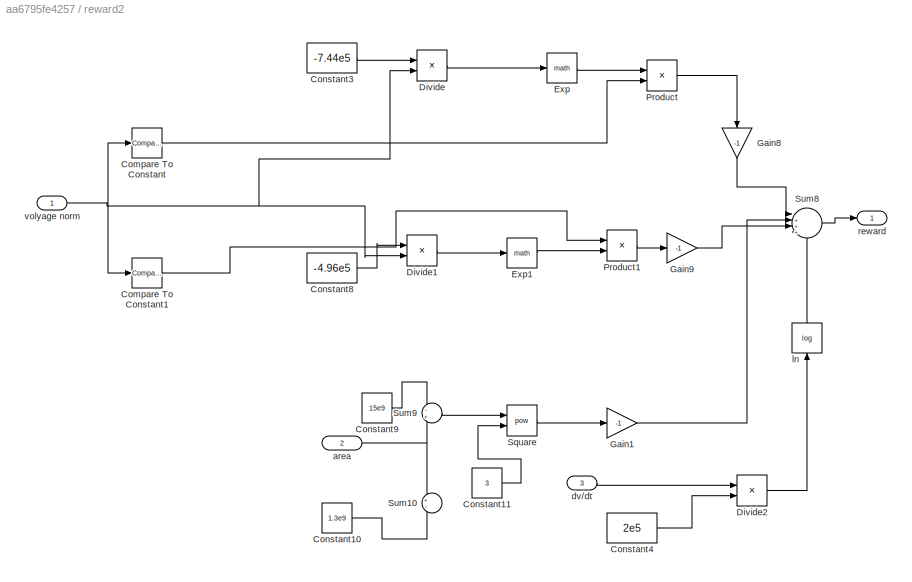
BLOCK [SubSystem] reward2
  Ports = [3, 1]
  RequestExecContextInheritance = off
BLOCK [Reference] reward2/Compare To Constant  REF=simulink/Logic and Bit
Operations/Compare
To Constant
  Ports = [1, 1]
  SourceBlock = simulink/Logic and Bit\nOperations/Compare\nTo Constant
  SourceProductBaseCode = SL
  SourceType = Compare To Constant
BLOCK [Reference] reward2/Compare To Constant1  REF=simulink/Logic and Bit
Operations/Compare
To Constant
  Ports = [1, 1]
  SourceBlock = simulink/Logic and Bit\nOperations/Compare\nTo Constant
  SourceProductBaseCode = SL
  SourceType = Compare To Constant
BLOCK [Constant] reward2/Constant10
  Commented = on
  Value = 1.3e9
BLOCK [Constant] reward2/Constant11
  Value = 3
BLOCK [Constant] reward2/Constant3
  Value = -7.44e5
BLOCK [Constant] reward2/Constant4
  Value = 2e5
BLOCK [Constant] reward2/Constant8
  Value = -4.96e5
BLOCK [Constant] reward2/Constant9
  Value = 15e9
BLOCK [Product] reward2/Divide
  Inputs = */
  Ports = [2, 1]
BLOCK [Product] reward2/Divide1
  Inputs = */
  Ports = [2, 1]
BLOCK [Product] reward2/Divide2
  Inputs = */
  Ports = [2, 1]
BLOCK [Math] reward2/Exp
  Ports = [1, 1]
BLOCK [Math] reward2/Exp1
  Ports = [1, 1]
BLOCK [Gain] reward2/Gain1
  Gain = -1
BLOCK [Gain] reward2/Gain8
  Gain = -1
  NameLocation = left
BLOCK [Gain] reward2/Gain9
  Gain = -1
BLOCK [Product] reward2/Product
  Ports = [2, 1]
BLOCK [Product] reward2/Product1
  Ports = [2, 1]
BLOCK [Math] reward2/Square
  Operator = pow
  Ports = [2, 1]
BLOCK [Sum] reward2/Sum10
  Commented = on
  Inputs = +-
  Ports = [2, 1]
BLOCK [Sum] reward2/Sum8
  Inputs = |++++
  Ports = [4, 1]
BLOCK [Sum] reward2/Sum9
  Inputs = -+
  Ports = [2, 1]
BLOCK [Inport] reward2/area
  Port = 2
BLOCK [Inport] reward2/dv//dt
  Port = 3
BLOCK [Math] reward2/ln
  NameLocation = right
  Operator = log
  Ports = [1, 1]
BLOCK [Outport] reward2/reward
BLOCK [Inport] reward2/volyage norm
ANNOTATION Subsystem: 25 MVar Shunt Capacitor Bank
ANNOTATION Subsystem: Load_10
ANNOTATION Subsystem: Load_11
ANNOTATION Subsystem: Load_12
ANNOTATION Subsystem: Load_13
ANNOTATION Subsystem: Load_14
ANNOTATION Subsystem: Load_2
ANNOTATION Subsystem: Load_3
ANNOTATION Subsystem: Load_4
ANNOTATION Subsystem: Load_5
ANNOTATION Subsystem: Load_6
ANNOTATION Subsystem: Load_9
ANNOTATION Subsystem: <copyright redacted>
ANNOTATION Subsystem: Note: Time given in units of hours
ANNOTATION Subsystem: Thermal Model of a House
ANNOTATION Subsystem/Heater: Heater Subsystem
ANNOTATION Subsystem/House: Thermodynamic Model for the House
ANNOTATION Subsystem/Thermostat: Thermostat Subsystem
NET Agent A:1 -> Delay:1, Subsystem:1
NET Agent B:1 -> Delay1:1, Subsystem:2
NET Agent C:1 -> Delay2:1, Subsystem:4
LINE Bus Creator1:1 -> Agent C:1
NET Bus Creator:1 -> Agent A:1, Agent B:1
LINE Constant:1 -> Subsystem:3
LINE Delay1:1 -> Bus Creator:5
NET Delay2:1 -> Bus Creator1:2, reward2:3
LINE Delay:1 -> Bus Creator:4
LINE Subsystem/3-Phase Dynamic Load:1 -> Subsystem/Bus Selector:1
LINE Subsystem/Abs:1 -> Subsystem/Sample and Hold:1
LINE Subsystem/Avg Outdoor Temp:1 -> Subsystem/Sum4:1
LINE Subsystem/Bus Creator1:1 -> Subsystem/Reshape2:1
LINE Subsystem/Bus Creator2:1 -> Subsystem/PlotResults:2
NET Subsystem/Bus Creator4:1 -> Subsystem/MATLAB Function3:1, Subsystem/Product:1
LINE Subsystem/Bus Creator:1 -> Subsystem/Bus to Vector:1
NET Subsystem/Bus Selector1:1 -> Subsystem/Fcn1:1, Subsystem/PID Controller1:1
LINE Subsystem/Bus Selector1:2 -> Subsystem/Scope4:1
LINE Subsystem/Bus Selector2:1 -> Subsystem/Fcn3:1
LINE Subsystem/Bus Selector2:2 -> Subsystem/Scope5:1
LINE Subsystem/Bus Selector2:3 -> Subsystem/Scope37:1
NET Subsystem/Bus Selector3:1 -> Subsystem/Fcn2:1, Subsystem/PID Controller2:1
LINE Subsystem/Bus Selector3:2 -> Subsystem/Scope7:2
LINE Subsystem/Bus Selector3:3 -> Subsystem/Scope7:1
LINE Subsystem/Bus Selector:1 -> Subsystem/Scope10:1
LINE Subsystem/Bus to Vector:1 -> Subsystem/3-Phase Dynamic Load:1
LINE Subsystem/Celsius to Fahrenheit:1 -> Subsystem/Bus Creator2:1
LINE Subsystem/Constant11:1 -> Subsystem/Switch1:3
LINE Subsystem/Constant12:1 -> Subsystem/Product:2
LINE Subsystem/Constant14:1 -> Subsystem/Sum9:2
LINE Subsystem/Constant1:1 -> Subsystem/Sum1:1
LINE Subsystem/Constant2:1 -> Subsystem/Sum:1
LINE Subsystem/Constant3:1 -> Subsystem/Bus Creator:2
LINE Subsystem/Constant4:1 -> Subsystem/Kalman Filter:2
LINE Subsystem/Constant5:1 -> Subsystem/Kalman Filter:3
LINE Subsystem/Constant6:1 -> Subsystem/Kalman Filter:4
LINE Subsystem/Constant7:1 -> Subsystem/Matrix Multiply:1
LINE Subsystem/Constant:1 -> Subsystem/Sum5:1
NET Subsystem/Cost Calculator:1 -> Subsystem/Gain:1, Subsystem/PlotResults:1
LINE Subsystem/Daily Temp Variation:1 -> Subsystem/Sum4:2
LINE Subsystem/Derivative1:1 -> Subsystem/Abs:1
NET Subsystem/Derivative:1 -> Subsystem/Display4:1, Subsystem/Scope17:1
LINE Subsystem/DoS:1 -> Subsystem/Switch1:2
LINE Subsystem/Fahrenheit to Celsius :1 -> Subsystem/Sum3:1
LINE Subsystem/Fahrenheit to Celsius:1 -> Subsystem/House:2
LINE Subsystem/Fcn1:1 -> Subsystem/Scope3:1
NET Subsystem/Fcn2:1 -> Subsystem/Goto31:1, Subsystem/Scope6:1
LINE Subsystem/Fcn3:1 -> Subsystem/Scope2:1
NET Subsystem/From10:1 -> Subsystem/Bus Creator1:10, Subsystem/Scope29:1
NET Subsystem/From11:1 -> Subsystem/Bus Creator1:11, Subsystem/Scope30:1
NET Subsystem/From12:1 -> Subsystem/Bus Creator1:12, Subsystem/Scope31:1
NET Subsystem/From13:1 -> Subsystem/Bus Creator1:13, Subsystem/Scope32:1
NET Subsystem/From14:1 -> Subsystem/Bus Creator1:14, Subsystem/Scope33:1
LINE Subsystem/From15:1 -> Subsystem/Bus Creator1:15
LINE Subsystem/From16:1 -> Subsystem/Bus Creator1:16
LINE Subsystem/From17:1 -> Subsystem/Bus Creator1:24
LINE Subsystem/From18:1 -> Subsystem/Bus Creator1:25
LINE Subsystem/From19:1 -> Subsystem/Bus Creator1:26
NET Subsystem/From1:1 -> Subsystem/Bus Creator1:2, Subsystem/Scope21:1
LINE Subsystem/From20:1 -> Subsystem/Bus Creator1:27
LINE Subsystem/From21:1 -> Subsystem/Bus Creator1:28
LINE Subsystem/From22:1 -> Subsystem/Bus Creator1:17
LINE Subsystem/From23:1 -> Subsystem/Bus Creator1:18
LINE Subsystem/From24:1 -> Subsystem/Bus Creator1:19
LINE Subsystem/From25:1 -> Subsystem/Bus Creator1:20
LINE Subsystem/From26:1 -> Subsystem/Bus Creator1:21
LINE Subsystem/From27:1 -> Subsystem/Bus Creator1:22
LINE Subsystem/From28:1 -> Subsystem/Bus Creator1:23
LINE Subsystem/From29:1 -> Subsystem/Bus Creator4:2
NET Subsystem/From2:1 -> Subsystem/Bus Creator1:3, Subsystem/Scope22:1
LINE Subsystem/From30:1 -> Subsystem/Bus Creator4:10
LINE Subsystem/From31:1 -> Subsystem/Bus Creator4:11
LINE Subsystem/From32:1 -> Subsystem/Bus Creator4:12
LINE Subsystem/From33:1 -> Subsystem/Bus Creator4:13
LINE Subsystem/From34:1 -> Subsystem/Bus Creator4:14
LINE Subsystem/From35:1 -> Subsystem/Bus Creator4:3
LINE Subsystem/From36:1 -> Subsystem/Bus Creator4:4
LINE Subsystem/From37:1 -> Subsystem/Bus Creator4:5
LINE Subsystem/From38:1 -> Subsystem/Bus Creator4:6
LINE Subsystem/From39:1 -> Subsystem/Bus Creator4:7
NET Subsystem/From3:1 -> Subsystem/Bus Creator1:4, Subsystem/Scope23:1
LINE Subsystem/From40:1 -> Subsystem/Bus Creator4:8
LINE Subsystem/From41:1 -> Subsystem/Bus Creator4:9
NET Subsystem/From42:1 -> Subsystem/Three-Phase Breaker3:1, Subsystem/Three-Phase Breaker:1
LINE Subsystem/From43:1 -> Subsystem/Three-Phase Breaker2:1
LINE Subsystem/From44:1 -> Subsystem/Three-Phase Breaker1:1
NET Subsystem/From4:1 -> Subsystem/Bus Creator1:5, Subsystem/Scope24:1
NET Subsystem/From5:1 -> Subsystem/Bus Creator1:6, Subsystem/Scope25:1
NET Subsystem/From6:1 -> Subsystem/Bus Creator4:1, Subsystem/Scope19:1
NET Subsystem/From7:1 -> Subsystem/Bus Creator1:7, Subsystem/Scope26:1
NET Subsystem/From8:1 -> Subsystem/Bus Creator1:8, Subsystem/Scope27:1
NET Subsystem/From9:1 -> Subsystem/Bus Creator1:9, Subsystem/Scope28:1
NET Subsystem/From:1 -> Subsystem/Bus Creator1:1, Subsystem/Scope20:1
LINE Subsystem/Gain1:1 -> Subsystem/frequency_lowerlimit:1
LINE Subsystem/Gain:1 -> Subsystem/Sum5:2
LINE Subsystem/Heater/HeatGain:1 -> Subsystem/Heater/Heater Switch:2
LINE Subsystem/Heater/Heater Air Temperature:1 -> Subsystem/Heater/Sum2:2
LINE Subsystem/Heater/Heater Switch:1 -> Subsystem/Heater/HeatFlow:1
LINE Subsystem/Heater/On//Off:1 -> Subsystem/Heater/Heater Switch:1
LINE Subsystem/Heater/Sum2:1 -> Subsystem/Heater/HeatGain:1
LINE Subsystem/Heater/Troom:1 -> Subsystem/Heater/Sum2:1
NET Subsystem/Heater:1 -> Subsystem/House:1, Subsystem/Integrator:1, Subsystem/Scope13:1
LINE Subsystem/House/1//Mc:1 -> Subsystem/House/Integrator:1
LINE Subsystem/House/Heat Losses:1 -> Subsystem/House/Sum1:2
LINE Subsystem/House/Heater QDot In:1 -> Subsystem/House/Sum1:1
NET Subsystem/House/Integrator:1 -> Subsystem/House/Room Temp Troom:1, Subsystem/House/Sum2:1
LINE Subsystem/House/Outdoor Temp Tout:1 -> Subsystem/House/Sum2:2
LINE Subsystem/House/Sum1:1 -> Subsystem/House/1//Mc:1
LINE Subsystem/House/Sum2:1 -> Subsystem/House/Heat Losses:1
NET Subsystem/House:1 -> Subsystem/Celsius to Fahrenheit:1, Subsystem/Heater:2, Subsystem/Scope8:1, Subsystem/Sum3:2
NET Subsystem/Integrator2:1 -> Subsystem/To Workspace:1, Subsystem/area:1, Subsystem/cost:1
LINE Subsystem/Integrator:1 -> Subsystem/Cost Calculator:1
LINE Subsystem/Kalman Filter:1 -> Subsystem/Matrix Multiply:2
NET Subsystem/MATLAB Function1:1 -> Subsystem/Display:1, Subsystem/voltage_norm:1
LINE Subsystem/MATLAB Function3:1 -> Subsystem/frequency_upperlimit:1
LINE Subsystem/MATLAB Function4:1 -> Subsystem/Gain1:1
LINE Subsystem/MATLAB Function6:1 -> Subsystem/Variable Time Delay:2
LINE Subsystem/MATLAB Function:1 -> Subsystem/Scope1:1
LINE Subsystem/Matrix Multiply:1 -> Subsystem/Subtract:2
NET Subsystem/PID Controller1:1 -> Subsystem/Sum1:2, Subsystem/Sum2:2
LINE Subsystem/PID Controller2:1 -> Subsystem/Sum:2
LINE Subsystem/PMU (PLL-Based, Positive-Sequence)10:1 -> Subsystem/Goto20:1
LINE Subsystem/PMU (PLL-Based, Positive-Sequence)10:2 -> Subsystem/Goto21:1
LINE Subsystem/PMU (PLL-Based, Positive-Sequence)10:3 -> Subsystem/Goto39:1
LINE Subsystem/PMU (PLL-Based, Positive-Sequence)11:1 -> Subsystem/Goto22:1
LINE Subsystem/PMU (PLL-Based, Positive-Sequence)11:2 -> Subsystem/Goto23:1
LINE Subsystem/PMU (PLL-Based, Positive-Sequence)11:3 -> Subsystem/Goto40:1
LINE Subsystem/PMU (PLL-Based, Positive-Sequence)12:1 -> Subsystem/Goto24:1
LINE Subsystem/PMU (PLL-Based, Positive-Sequence)12:2 -> Subsystem/Goto25:1
LINE Subsystem/PMU (PLL-Based, Positive-Sequence)12:3 -> Subsystem/Goto41:1
NET Subsystem/PMU (PLL-Based, Positive-Sequence)13:1 -> Subsystem/Derivative:1, Subsystem/Goto26:1, Subsystem/Scope16:1
LINE Subsystem/PMU (PLL-Based, Positive-Sequence)13:2 -> Subsystem/Goto27:1
LINE Subsystem/PMU (PLL-Based, Positive-Sequence)13:3 -> Subsystem/Goto42:1
LINE Subsystem/PMU (PLL-Based, Positive-Sequence)1:1 -> Subsystem/Goto1:1
LINE Subsystem/PMU (PLL-Based, Positive-Sequence)1:2 -> Subsystem/Goto:1
LINE Subsystem/PMU (PLL-Based, Positive-Sequence)1:3 -> Subsystem/Goto29:1
LINE Subsystem/PMU (PLL-Based, Positive-Sequence)2:1 -> Subsystem/Goto3:1
LINE Subsystem/PMU (PLL-Based, Positive-Sequence)2:2 -> Subsystem/Goto2:1
LINE Subsystem/PMU (PLL-Based, Positive-Sequence)2:3 -> Subsystem/Goto28:1
NET Subsystem/PMU (PLL-Based, Positive-Sequence)3:1 -> Subsystem/Derivative1:1, Subsystem/Goto5:1, Subsystem/Sample and Hold1:1, Subsystem/Scope11:1
LINE Subsystem/PMU (PLL-Based, Positive-Sequence)3:2 -> Subsystem/Goto4:1
LINE Subsystem/PMU (PLL-Based, Positive-Sequence)3:3 -> Subsystem/Goto30:1
LINE Subsystem/PMU (PLL-Based, Positive-Sequence)4:1 -> Subsystem/Goto7:1
LINE Subsystem/PMU (PLL-Based, Positive-Sequence)4:2 -> Subsystem/Goto6:1
LINE Subsystem/PMU (PLL-Based, Positive-Sequence)4:3 -> Subsystem/Goto32:1
LINE Subsystem/PMU (PLL-Based, Positive-Sequence)5:1 -> Subsystem/Goto10:1
LINE Subsystem/PMU (PLL-Based, Positive-Sequence)5:2 -> Subsystem/Goto11:1
LINE Subsystem/PMU (PLL-Based, Positive-Sequence)5:3 -> Subsystem/Goto35:1
LINE Subsystem/PMU (PLL-Based, Positive-Sequence)6:1 -> Subsystem/Goto12:1
LINE Subsystem/PMU (PLL-Based, Positive-Sequence)6:2 -> Subsystem/Goto13:1
LINE Subsystem/PMU (PLL-Based, Positive-Sequence)6:3 -> Subsystem/Goto33:1
LINE Subsystem/PMU (PLL-Based, Positive-Sequence)7:1 -> Subsystem/Goto14:1
LINE Subsystem/PMU (PLL-Based, Positive-Sequence)7:2 -> Subsystem/Goto15:1
LINE Subsystem/PMU (PLL-Based, Positive-Sequence)7:3 -> Subsystem/Goto34:1
LINE Subsystem/PMU (PLL-Based, Positive-Sequence)8:1 -> Subsystem/Goto16:1
LINE Subsystem/PMU (PLL-Based, Positive-Sequence)8:2 -> Subsystem/Goto17:1
LINE Subsystem/PMU (PLL-Based, Positive-Sequence)8:3 -> Subsystem/Goto37:1
LINE Subsystem/PMU (PLL-Based, Positive-Sequence)9:1 -> Subsystem/Goto18:1
LINE Subsystem/PMU (PLL-Based, Positive-Sequence)9:2 -> Subsystem/Goto19:1
LINE Subsystem/PMU (PLL-Based, Positive-Sequence)9:3 -> Subsystem/Goto38:1
LINE Subsystem/PMU (PLL-Based, Positive-Sequence):1 -> Subsystem/Goto8:1
LINE Subsystem/PMU (PLL-Based, Positive-Sequence):2 -> Subsystem/Goto9:1
LINE Subsystem/PMU (PLL-Based, Positive-Sequence):3 -> Subsystem/Goto36:1
LINE Subsystem/Product:1 -> Subsystem/MATLAB Function4:1
NET Subsystem/Rate Transition1:1 -> Subsystem/Scope12:1, Subsystem/Sum8:2
LINE Subsystem/Rate Transition2:1 -> Subsystem/Sum4:3
LINE Subsystem/Reshape1:1 -> Subsystem/Rate Transition2:1
NET Subsystem/Reshape2:1 -> Subsystem/MATLAB Function1:1, Subsystem/Switch1:1
LINE Subsystem/Reshape:1 -> Subsystem/Rate Transition1:1
LINE Subsystem/Sample and Hold1:1 -> Subsystem/MATLAB Function6:2
LINE Subsystem/Sample and Hold:1 -> Subsystem/dv//dt:1
LINE Subsystem/Set Point:1 -> Subsystem/Fahrenheit to Celsius :1
LINE Subsystem/Stair Generator1:1 -> Subsystem/Variable Time Delay:1
LINE Subsystem/Stair Generator2:1 -> Subsystem/Sample and Hold1:trigger
LINE Subsystem/Stair Generator:1 -> Subsystem/Sample and Hold:trigger
LINE Subsystem/Subtract:1 -> Subsystem/MATLAB Function:1
LINE Subsystem/Sum1:1 -> Subsystem/Turbine & Regulators M1:2
LINE Subsystem/Sum2:1 -> Subsystem/Turbine & Regulators M2:2
LINE Subsystem/Sum3:1 -> Subsystem/Thermostat:1
NET Subsystem/Sum4:1 -> Subsystem/Bus Creator2:2, Subsystem/Fahrenheit to Celsius:1, Subsystem/Scope15:1
NET Subsystem/Sum5:1 -> Subsystem/Bus Creator:1, Subsystem/Integrator2:1
LINE Subsystem/Sum8:1 -> Subsystem/Synchronous Machine pu Standard:2
LINE Subsystem/Sum9:1 -> Subsystem/MATLAB Function6:1
LINE Subsystem/Sum:1 -> Subsystem/Turbine & Regulators M3:2
NET Subsystem/Switch1:1 -> Subsystem/Kalman Filter:1, Subsystem/Subtract:1
NET Subsystem/Synchronous Machine pu Standard1:1 -> Subsystem/Bus Selector1:1, Subsystem/Turbine & Regulators M1:1
NET Subsystem/Synchronous Machine pu Standard2:1 -> Subsystem/Bus Selector3:1, Subsystem/Turbine & Regulators M3:1
NET Subsystem/Synchronous Machine pu Standard:1 -> Subsystem/Bus Selector2:1, Subsystem/Turbine & Regulators M2:1
LINE Subsystem/Thermostat/Relay1:1 -> Subsystem/Thermostat/Blower switch:1
LINE Subsystem/Thermostat/Terr:1 -> Subsystem/Thermostat/Relay1:1
LINE Subsystem/Thermostat:1 -> Subsystem/Heater:1
LINE Subsystem/Three-Phase V-I Measurement10:1 -> Subsystem/PMU (PLL-Based, Positive-Sequence)10:1
LINE Subsystem/Three-Phase V-I Measurement11:1 -> Subsystem/PMU (PLL-Based, Positive-Sequence)11:1
LINE Subsystem/Three-Phase V-I Measurement12:1 -> Subsystem/PMU (PLL-Based, Positive-Sequence)12:1
LINE Subsystem/Three-Phase V-I Measurement13:1 -> Subsystem/PMU (PLL-Based, Positive-Sequence)13:1
LINE Subsystem/Three-Phase V-I Measurement15:1 -> Subsystem/Scope9:1
LINE Subsystem/Three-Phase V-I Measurement1:1 -> Subsystem/PMU (PLL-Based, Positive-Sequence)1:1
LINE Subsystem/Three-Phase V-I Measurement2:1 -> Subsystem/PMU (PLL-Based, Positive-Sequence)2:1
LINE Subsystem/Three-Phase V-I Measurement3:1 -> Subsystem/PMU (PLL-Based, Positive-Sequence)3:1
LINE Subsystem/Three-Phase V-I Measurement4:1 -> Subsystem/PMU (PLL-Based, Positive-Sequence)4:1
LINE Subsystem/Three-Phase V-I Measurement5:1 -> Subsystem/PMU (PLL-Based, Positive-Sequence)5:1
LINE Subsystem/Three-Phase V-I Measurement6:1 -> Subsystem/PMU (PLL-Based, Positive-Sequence)6:1
LINE Subsystem/Three-Phase V-I Measurement7:1 -> Subsystem/PMU (PLL-Based, Positive-Sequence)7:1
LINE Subsystem/Three-Phase V-I Measurement8:1 -> Subsystem/PMU (PLL-Based, Positive-Sequence)8:1
LINE Subsystem/Three-Phase V-I Measurement9:1 -> Subsystem/PMU (PLL-Based, Positive-Sequence)9:1
LINE Subsystem/Three-Phase V-I Measurement:1 -> Subsystem/PMU (PLL-Based, Positive-Sequence):1
NET Subsystem/Turbine & Regulators M1/Bus Selector:1 -> Subsystem/Turbine & Regulators M1/Excitation System:2, Subsystem/Turbine & Regulators M1/Real-Imag to Complex:1
NET Subsystem/Turbine & Regulators M1/Bus Selector:2 -> Subsystem/Turbine & Regulators M1/Excitation System:3, Subsystem/Turbine & Regulators M1/Real-Imag to Complex:2
LINE Subsystem/Turbine & Regulators M1/Bus Selector:4 -> Subsystem/Turbine & Regulators M1/Hydraulic Turbine and Governor:3
NET Subsystem/Turbine & Regulators M1/Bus Selector:5 -> Subsystem/Turbine & Regulators M1/Hydraulic Turbine and Governor:5, Subsystem/Turbine & Regulators M1/Multi-Band Power System Stabilizer1:1
NET Subsystem/Turbine & Regulators M1/Bus Selector:6 -> Subsystem/Turbine & Regulators M1/Hydraulic Turbine and Governor:4, Subsystem/Turbine & Regulators M1/Sum2:1
LINE Subsystem/Turbine & Regulators M1/Excitation System:1 -> Subsystem/Turbine & Regulators M1/Vf:1
LINE Subsystem/Turbine & Regulators M1/From1:1 -> Subsystem/Turbine & Regulators M1/Sum:1
LINE Subsystem/Turbine & Regulators M1/Generic Power System Stabilizer1:1 -> Subsystem/Turbine & Regulators M1/Multiport Switch:3
NET Subsystem/Turbine & Regulators M1/Hydraulic Turbine and Governor:1 -> Subsystem/Turbine & Regulators M1/Pm:1, Subsystem/Turbine & Regulators M1/Sum2:2
LINE Subsystem/Turbine & Regulators M1/Hydraulic Turbine and Governor:2 -> Subsystem/Turbine & Regulators M1/Terminator:1
LINE Subsystem/Turbine & Regulators M1/Multi-Band Power System Stabilizer1:1 -> Subsystem/Turbine & Regulators M1/Multiport Switch:4
LINE Subsystem/Turbine & Regulators M1/Multiport Switch:1 -> Subsystem/Turbine & Regulators M1/Excitation System:4
LINE Subsystem/Turbine & Regulators M1/PSS:1 -> Subsystem/Turbine & Regulators M1/Sum:2
LINE Subsystem/Turbine & Regulators M1/Pref:1 -> Subsystem/Turbine & Regulators M1/Hydraulic Turbine and Governor:2
LINE Subsystem/Turbine & Regulators M1/Real-Imag to Complex:1 -> Subsystem/Turbine & Regulators M1/Complex to Magnitude-Angle:1
LINE Subsystem/Turbine & Regulators M1/Sum2:1 -> Subsystem/Turbine & Regulators M1/Generic Power System Stabilizer1:1
LINE Subsystem/Turbine & Regulators M1/Sum:1 -> Subsystem/Turbine & Regulators M1/Multiport Switch:1
LINE Subsystem/Turbine & Regulators M1/Vref:1 -> Subsystem/Turbine & Regulators M1/Excitation System:1
LINE Subsystem/Turbine & Regulators M1/m:1 -> Subsystem/Turbine & Regulators M1/Bus Selector:1
LINE Subsystem/Turbine & Regulators M1/no PSS:1 -> Subsystem/Turbine & Regulators M1/Multiport Switch:2
LINE Subsystem/Turbine & Regulators M1/wref:1 -> Subsystem/Turbine & Regulators M1/Hydraulic Turbine and Governor:1
LINE Subsystem/Turbine & Regulators M1:1 -> Subsystem/Synchronous Machine pu Standard1:1
LINE Subsystem/Turbine & Regulators M1:2 -> Subsystem/Synchronous Machine pu Standard1:2
NET Subsystem/Turbine & Regulators M2/Bus Selector:1 -> Subsystem/Turbine & Regulators M2/Excitation System:2, Subsystem/Turbine & Regulators M2/Real-Imag to Complex:1
NET Subsystem/Turbine & Regulators M2/Bus Selector:2 -> Subsystem/Turbine & Regulators M2/Excitation System:3, Subsystem/Turbine & Regulators M2/Real-Imag to Complex:2
LINE Subsystem/Turbine & Regulators M2/Bus Selector:4 -> Subsystem/Turbine & Regulators M2/Hydraulic Turbine and Governor:3
NET Subsystem/Turbine & Regulators M2/Bus Selector:5 -> Subsystem/Turbine & Regulators M2/Hydraulic Turbine and Governor:5, Subsystem/Turbine & Regulators M2/Multi-Band Power System Stabilizer1:1
NET Subsystem/Turbine & Regulators M2/Bus Selector:6 -> Subsystem/Turbine & Regulators M2/Hydraulic Turbine and Governor:4, Subsystem/Turbine & Regulators M2/Sum2:1
LINE Subsystem/Turbine & Regulators M2/Excitation System:1 -> Subsystem/Turbine & Regulators M2/Vf:1
LINE Subsystem/Turbine & Regulators M2/From1:1 -> Subsystem/Turbine & Regulators M2/Sum:1
LINE Subsystem/Turbine & Regulators M2/Generic Power System Stabilizer1:1 -> Subsystem/Turbine & Regulators M2/Multiport Switch:3
NET Subsystem/Turbine & Regulators M2/Hydraulic Turbine and Governor:1 -> Subsystem/Turbine & Regulators M2/Pm:1, Subsystem/Turbine & Regulators M2/Sum2:2
LINE Subsystem/Turbine & Regulators M2/Hydraulic Turbine and Governor:2 -> Subsystem/Turbine & Regulators M2/Terminator:1
LINE Subsystem/Turbine & Regulators M2/Multi-Band Power System Stabilizer1:1 -> Subsystem/Turbine & Regulators M2/Multiport Switch:4
LINE Subsystem/Turbine & Regulators M2/Multiport Switch:1 -> Subsystem/Turbine & Regulators M2/Excitation System:4
LINE Subsystem/Turbine & Regulators M2/PSS:1 -> Subsystem/Turbine & Regulators M2/Sum:2
LINE Subsystem/Turbine & Regulators M2/Pref:1 -> Subsystem/Turbine & Regulators M2/Hydraulic Turbine and Governor:2
LINE Subsystem/Turbine & Regulators M2/Real-Imag to Complex:1 -> Subsystem/Turbine & Regulators M2/Complex to Magnitude-Angle:1
LINE Subsystem/Turbine & Regulators M2/Sum2:1 -> Subsystem/Turbine & Regulators M2/Generic Power System Stabilizer1:1
LINE Subsystem/Turbine & Regulators M2/Sum:1 -> Subsystem/Turbine & Regulators M2/Multiport Switch:1
LINE Subsystem/Turbine & Regulators M2/Vref:1 -> Subsystem/Turbine & Regulators M2/Excitation System:1
LINE Subsystem/Turbine & Regulators M2/m:1 -> Subsystem/Turbine & Regulators M2/Bus Selector:1
LINE Subsystem/Turbine & Regulators M2/no PSS:1 -> Subsystem/Turbine & Regulators M2/Multiport Switch:2
LINE Subsystem/Turbine & Regulators M2/wref:1 -> Subsystem/Turbine & Regulators M2/Hydraulic Turbine and Governor:1
LINE Subsystem/Turbine & Regulators M2:1 -> Subsystem/Synchronous Machine pu Standard:1
LINE Subsystem/Turbine & Regulators M2:2 -> Subsystem/Sum8:1
NET Subsystem/Turbine & Regulators M3/Bus Selector:1 -> Subsystem/Turbine & Regulators M3/Excitation System:2, Subsystem/Turbine & Regulators M3/Real-Imag to Complex:1
NET Subsystem/Turbine & Regulators M3/Bus Selector:2 -> Subsystem/Turbine & Regulators M3/Excitation System:3, Subsystem/Turbine & Regulators M3/Real-Imag to Complex:2
LINE Subsystem/Turbine & Regulators M3/Bus Selector:4 -> Subsystem/Turbine & Regulators M3/Hydraulic Turbine and Governor:3
NET Subsystem/Turbine & Regulators M3/Bus Selector:5 -> Subsystem/Turbine & Regulators M3/Hydraulic Turbine and Governor:5, Subsystem/Turbine & Regulators M3/Multi-Band Power System Stabilizer1:1
NET Subsystem/Turbine & Regulators M3/Bus Selector:6 -> Subsystem/Turbine & Regulators M3/Hydraulic Turbine and Governor:4, Subsystem/Turbine & Regulators M3/Sum2:1
LINE Subsystem/Turbine & Regulators M3/Excitation System:1 -> Subsystem/Turbine & Regulators M3/Vf:1
LINE Subsystem/Turbine & Regulators M3/From1:1 -> Subsystem/Turbine & Regulators M3/Sum:1
LINE Subsystem/Turbine & Regulators M3/Generic Power System Stabilizer:1 -> Subsystem/Turbine & Regulators M3/Multiport Switch:3
NET Subsystem/Turbine & Regulators M3/Hydraulic Turbine and Governor:1 -> Subsystem/Turbine & Regulators M3/Pm:1, Subsystem/Turbine & Regulators M3/Sum2:2
LINE Subsystem/Turbine & Regulators M3/Hydraulic Turbine and Governor:2 -> Subsystem/Turbine & Regulators M3/Terminator:1
LINE Subsystem/Turbine & Regulators M3/Multi-Band Power System Stabilizer1:1 -> Subsystem/Turbine & Regulators M3/Multiport Switch:4
LINE Subsystem/Turbine & Regulators M3/Multiport Switch:1 -> Subsystem/Turbine & Regulators M3/Excitation System:4
LINE Subsystem/Turbine & Regulators M3/PSS:1 -> Subsystem/Turbine & Regulators M3/Sum:2
LINE Subsystem/Turbine & Regulators M3/Pref:1 -> Subsystem/Turbine & Regulators M3/Hydraulic Turbine and Governor:2
LINE Subsystem/Turbine & Regulators M3/Real-Imag to Complex:1 -> Subsystem/Turbine & Regulators M3/Complex to Magnitude-Angle:1
LINE Subsystem/Turbine & Regulators M3/Sum2:1 -> Subsystem/Turbine & Regulators M3/Generic Power System Stabilizer:1
LINE Subsystem/Turbine & Regulators M3/Sum:1 -> Subsystem/Turbine & Regulators M3/Multiport Switch:1
LINE Subsystem/Turbine & Regulators M3/Vref:1 -> Subsystem/Turbine & Regulators M3/Excitation System:1
LINE Subsystem/Turbine & Regulators M3/m:1 -> Subsystem/Turbine & Regulators M3/Bus Selector:1
LINE Subsystem/Turbine & Regulators M3/no PSS:1 -> Subsystem/Turbine & Regulators M3/Multiport Switch:2
LINE Subsystem/Turbine & Regulators M3/wref:1 -> Subsystem/Turbine & Regulators M3/Hydraulic Turbine and Governor:1
LINE Subsystem/Turbine & Regulators M3:1 -> Subsystem/Synchronous Machine pu Standard2:1
LINE Subsystem/Turbine & Regulators M3:2 -> Subsystem/Synchronous Machine pu Standard2:2
LINE Subsystem/Variable Time Delay:1 -> Subsystem/trigger_signal:1
LINE Subsystem/Vref1 1:1 -> Subsystem/Sum2:1
LINE Subsystem/Vref2:1 -> Subsystem/Turbine & Regulators M2:3
LINE Subsystem/bias:1 -> Subsystem/Sum9:1
LINE Subsystem/fdia:1 -> Subsystem/Reshape:1
LINE Subsystem/temperature_sensor_hvac:1 -> Subsystem/Reshape1:1
LINE Subsystem1/AND:1 -> Subsystem1/is done:1
LINE Subsystem1/Compare To Constant1:1 -> Subsystem1/AND:2
LINE Subsystem1/Compare To Constant:1 -> Subsystem1/AND:1
LINE Subsystem1/frequency_lowerlimit:1 -> Subsystem1/Compare To Constant1:1
LINE Subsystem1/frequency_upperlimit:1 -> Subsystem1/Compare To Constant:1
NET Subsystem1:1 -> Agent A:3, Agent B:3, Agent C:3
NET Subsystem:1 -> Bus Creator:1, Subsystem1:1, reward:1
NET Subsystem:2 -> Bus Creator:2, Subsystem1:2, reward:2
NET Subsystem:3 -> Bus Creator:3, reward1:1, reward2:1, reward:3
LINE Subsystem:4 -> reward2:2
NET Subsystem:5 -> Bus Creator1:1, reward:4
LINE Subsystem:6 -> reward1:2
LINE reward/Constant1:1 -> reward/Sum2:1
LINE reward/Constant2:1 -> reward/Sum3:1
LINE reward/Constant3:1 -> reward/Sum4:2
LINE reward/Constant4:1 -> reward/Sum5:1
LINE reward/Constant:1 -> reward/Sum1:1
LINE reward/Gain1:1 -> reward/Sum:1
LINE reward/Gain2:1 -> reward/Max:1
LINE reward/Gain3:1 -> reward/Max:2
LINE reward/Gain4:1 -> reward/Max:3
LINE reward/Gain5:1 -> reward/Max:4
LINE reward/Gain6:1 -> reward/Max:5
LINE reward/Gain:1 -> reward/Sum:2
NET reward/Max:1 -> reward/Gain1:1, reward/NOT:1
LINE reward/NOT:1 -> reward/Gain:1
LINE reward/Sum1:1 -> reward/Gain2:1
LINE reward/Sum2:1 -> reward/Gain3:1
LINE reward/Sum3:1 -> reward/Gain4:1
LINE reward/Sum4:1 -> reward/Gain5:1
LINE reward/Sum5:1 -> reward/Gain6:1
LINE reward/Sum:1 -> reward/reward:1
LINE reward/dv//dt:1 -> reward/Sum5:2
LINE reward/frequency_lowerlimit1:1 -> reward/Sum2:2
LINE reward/frequency_upperlimit:1 -> reward/Sum1:2
NET reward/voltage_norm:1 -> reward/Sum3:2, reward/Sum4:1
LINE reward1/Compare To Constant1:1 -> reward1/Product1:1
LINE reward1/Compare To Constant:1 -> reward1/Product:2
LINE reward1/Constant2:1 -> reward1/Divide:1
LINE reward1/Constant3:1 -> reward1/Divide1:1
LINE reward1/Constant5:1 -> reward1/Sum7:1
LINE reward1/Constant6:1 -> reward1/Sum8:2
LINE reward1/Constant7:1 -> reward1/Square:2
LINE reward1/Divide1:1 -> reward1/Exp1:1
LINE reward1/Divide:1 -> reward1/Exp:1
LINE reward1/Exp1:1 -> reward1/Product1:2
LINE reward1/Exp:1 -> reward1/Product:1
LINE reward1/Product1:1 -> reward1/Sum:3
LINE reward1/Product:1 -> reward1/Sum:1
LINE reward1/Square:1 -> reward1/Sum:2
LINE reward1/Sum7:1 -> reward1/Square:1
LINE reward1/Sum:1 -> reward1/reward:1
NET reward1/area:1 -> reward1/Sum7:2, reward1/Sum8:1
NET reward1/voltage_norm:1 -> reward1/Compare To Constant1:1, reward1/Compare To Constant:1, reward1/Divide1:2, reward1/Divide:2
NET reward1:1 -> Agent B:2, Scope:1
LINE reward2/Compare To Constant1:1 -> reward2/Product1:1
LINE reward2/Compare To Constant:1 -> reward2/Product:2
LINE reward2/Constant10:1 -> reward2/Sum10:2
LINE reward2/Constant11:1 -> reward2/Square:2
LINE reward2/Constant3:1 -> reward2/Divide:1
LINE reward2/Constant4:1 -> reward2/Divide2:2
LINE reward2/Constant8:1 -> reward2/Divide1:1
LINE reward2/Constant9:1 -> reward2/Sum9:1
LINE reward2/Divide1:1 -> reward2/Exp1:1
LINE reward2/Divide2:1 -> reward2/ln:1
LINE reward2/Divide:1 -> reward2/Exp:1
LINE reward2/Exp1:1 -> reward2/Product1:2
LINE reward2/Exp:1 -> reward2/Product:1
LINE reward2/Gain1:1 -> reward2/Sum8:2
LINE reward2/Gain8:1 -> reward2/Sum8:1
LINE reward2/Gain9:1 -> reward2/Sum8:3
LINE reward2/Product1:1 -> reward2/Gain9:1
LINE reward2/Product:1 -> reward2/Gain8:1
LINE reward2/Square:1 -> reward2/Gain1:1
LINE reward2/Sum8:1 -> reward2/reward:1
LINE reward2/Sum9:1 -> reward2/Square:1
NET reward2/area:1 -> reward2/Sum10:1, reward2/Sum9:2
LINE reward2/dv//dt:1 -> reward2/Divide2:1
LINE reward2/ln:1 -> reward2/Sum8:4
NET reward2/volyage norm:1 -> reward2/Compare To Constant1:1, reward2/Compare To Constant:1, reward2/Divide1:2, reward2/Divide:2
NET reward2:1 -> Agent C:2, Scope1:1
LINE reward:1 -> Agent A:2
PLINE Subsystem/ :LConn1 -- Subsystem/Bus_9:LConn4
PLINE Subsystem/ :LConn2 -- Subsystem/Bus_9:LConn5
PLINE Subsystem/ :LConn3 -- Subsystem/Bus_9:LConn6
PNET net1: Subsystem/139.38//230kV:LConn1 -- Subsystem/Synchronous Machine pu Standard2:RConn1 -- Subsystem/Three-Phase Parallel RLC Load2:LConn1
PNET net2: Subsystem/139.38//230kV:LConn2 -- Subsystem/Synchronous Machine pu Standard2:RConn2 -- Subsystem/Three-Phase Parallel RLC Load2:LConn2
PNET net3: Subsystem/139.38//230kV:LConn3 -- Subsystem/Synchronous Machine pu Standard2:RConn3 -- Subsystem/Three-Phase Parallel RLC Load2:LConn3
PLINE Subsystem/139.38//230kV:RConn1 -- Subsystem/Bus_3:RConn7
PLINE Subsystem/139.38//230kV:RConn2 -- Subsystem/Bus_3:RConn8
PLINE Subsystem/139.38//230kV:RConn3 -- Subsystem/Bus_3:RConn9
PNET net4: Subsystem/144.21//230kV:LConn1 -- Subsystem/Synchronous Machine pu Standard1:RConn1 -- Subsystem/Three-Phase Parallel RLC Load1:LConn1
PNET net5: Subsystem/144.21//230kV:LConn2 -- Subsystem/Synchronous Machine pu Standard1:RConn2 -- Subsystem/Three-Phase Parallel RLC Load1:LConn2
PNET net6: Subsystem/144.21//230kV:LConn3 -- Subsystem/Synchronous Machine pu Standard1:RConn3 -- Subsystem/Three-Phase Parallel RLC Load1:LConn3
PLINE Subsystem/144.21//230kV:RConn1 -- Subsystem/Bus_2:RConn4
PLINE Subsystem/144.21//230kV:RConn2 -- Subsystem/Bus_2:RConn5
PLINE Subsystem/144.21//230kV:RConn3 -- Subsystem/Bus_2:RConn6
PNET net7: Subsystem/146.28//230kV:LConn1 -- Subsystem/Synchronous Machine pu Standard:RConn1 -- Subsystem/Three-Phase Parallel RLC Load3:LConn1
PNET net8: Subsystem/146.28//230kV:LConn2 -- Subsystem/Synchronous Machine pu Standard:RConn2 -- Subsystem/Three-Phase Parallel RLC Load3:LConn2
PNET net9: Subsystem/146.28//230kV:LConn3 -- Subsystem/Synchronous Machine pu Standard:RConn3 -- Subsystem/Three-Phase Parallel RLC Load3:LConn3
PLINE Subsystem/146.28//230kV:RConn1 -- Subsystem/Bus_1:LConn3
PLINE Subsystem/146.28//230kV:RConn2 -- Subsystem/Bus_1:LConn2
PLINE Subsystem/146.28//230kV:RConn3 -- Subsystem/Bus_1:LConn1
PLINE Subsystem/147.66//230kV:LConn1 -- Subsystem/Synchronous condensor_2:RConn1
PLINE Subsystem/147.66//230kV:LConn2 -- Subsystem/Synchronous condensor_2:RConn2
PLINE Subsystem/147.66//230kV:LConn3 -- Subsystem/Synchronous condensor_2:RConn3
PLINE Subsystem/147.66//230kV:RConn1 -- Subsystem/Bus_6:LConn1
PLINE Subsystem/147.66//230kV:RConn2 -- Subsystem/Bus_6:LConn2
PLINE Subsystem/147.66//230kV:RConn3 -- Subsystem/Bus_6:LConn3
PLINE Subsystem/150.42//230kV1:LConn1 -- Subsystem/Synchronous condensor_1:RConn1
PLINE Subsystem/150.42//230kV1:LConn2 -- Subsystem/Synchronous condensor_1:RConn2
PLINE Subsystem/150.42//230kV1:LConn3 -- Subsystem/Synchronous condensor_1:RConn3
PNET net10: Subsystem/150.42//230kV1:RConn1 -- Subsystem/Three-Phase Breaker3:LConn1 -- Subsystem/Three-Phase Series RLC Load13:LConn1
PNET net11: Subsystem/150.42//230kV1:RConn2 -- Subsystem/Three-Phase Breaker3:LConn2 -- Subsystem/Three-Phase Series RLC Load13:LConn2
PNET net12: Subsystem/150.42//230kV1:RConn3 -- Subsystem/Three-Phase Breaker3:LConn3 -- Subsystem/Three-Phase Series RLC Load13:LConn3
PLINE Subsystem/150.42//230kV:LConn1 -- Subsystem/Synchronous condensor_3:RConn1
PLINE Subsystem/150.42//230kV:LConn2 -- Subsystem/Synchronous condensor_3:RConn2
PLINE Subsystem/150.42//230kV:LConn3 -- Subsystem/Synchronous condensor_3:RConn3
PNET net13: Subsystem/150.42//230kV:RConn1 -- Subsystem/Bus_8:RConn1 -- Subsystem/Three-Phase V-I Measurement:LConn1
PNET net14: Subsystem/150.42//230kV:RConn2 -- Subsystem/Bus_8:RConn2 -- Subsystem/Three-Phase V-I Measurement:LConn2
PNET net15: Subsystem/150.42//230kV:RConn3 -- Subsystem/Bus_8:RConn3 -- Subsystem/Three-Phase V-I Measurement:LConn3
PLINE Subsystem/3-Phase Dynamic Load:LConn1 -- Subsystem/Three-Phase V-I Measurement15:RConn1
PLINE Subsystem/3-Phase Dynamic Load:LConn2 -- Subsystem/Three-Phase V-I Measurement15:RConn2
PLINE Subsystem/3-Phase Dynamic Load:LConn3 -- Subsystem/Three-Phase V-I Measurement15:RConn3
PNET net16: Subsystem/Bus_1/Bus:LConn1 -- Subsystem/Bus_1/Bus_:LConn3 -- Subsystem/Bus_1/Conn1:RConn1
PNET net17: Subsystem/Bus_1/Bus:LConn2 -- Subsystem/Bus_1/Bus_:LConn2 -- Subsystem/Bus_1/Conn3:RConn1
PNET net18: Subsystem/Bus_1/Bus:LConn3 -- Subsystem/Bus_1/Bus_:LConn1 -- Subsystem/Bus_1/Conn6:RConn1
PLINE Subsystem/Bus_1/Bus:RConn1 -- Subsystem/Bus_1/Conn5:RConn1
PLINE Subsystem/Bus_1/Bus:RConn2 -- Subsystem/Bus_1/Conn4:RConn1
PLINE Subsystem/Bus_1/Bus:RConn3 -- Subsystem/Bus_1/Conn2:RConn1
PLINE Subsystem/Bus_1/Bus_:RConn1 -- Subsystem/Bus_1/Conn9:RConn1
PLINE Subsystem/Bus_1/Bus_:RConn2 -- Subsystem/Bus_1/Conn8:RConn1
PLINE Subsystem/Bus_1/Bus_:RConn3 -- Subsystem/Bus_1/Conn7:RConn1
PNET net19: Subsystem/Bus_10/Bus:LConn1 -- Subsystem/Bus_10/Bus_:LConn3 -- Subsystem/Bus_10/Conn1:RConn1
PNET net20: Subsystem/Bus_10/Bus:LConn2 -- Subsystem/Bus_10/Bus_:LConn2 -- Subsystem/Bus_10/Conn3:RConn1
PNET net21: Subsystem/Bus_10/Bus:LConn3 -- Subsystem/Bus_10/Bus_:LConn1 -- Subsystem/Bus_10/Conn6:RConn1
PLINE Subsystem/Bus_10/Bus:RConn1 -- Subsystem/Bus_10/Conn2:RConn1
PLINE Subsystem/Bus_10/Bus:RConn2 -- Subsystem/Bus_10/Conn4:RConn1
PLINE Subsystem/Bus_10/Bus:RConn3 -- Subsystem/Bus_10/Conn5:RConn1
PLINE Subsystem/Bus_10/Bus_:RConn1 -- Subsystem/Bus_10/Conn7:RConn1
PLINE Subsystem/Bus_10/Bus_:RConn2 -- Subsystem/Bus_10/Conn8:RConn1
PLINE Subsystem/Bus_10/Bus_:RConn3 -- Subsystem/Bus_10/Conn9:RConn1
PLINE Subsystem/Bus_10:LConn1 -- Subsystem/Three-Phase Series RLC Load5:LConn1
PLINE Subsystem/Bus_10:LConn2 -- Subsystem/Three-Phase Series RLC Load5:LConn2
PLINE Subsystem/Bus_10:LConn3 -- Subsystem/Three-Phase Series RLC Load5:LConn3
PNET net22: Subsystem/Bus_10:RConn1 -- Subsystem/Line 10-11:RConn1 -- Subsystem/Three-Phase V-I Measurement9:LConn1
PNET net23: Subsystem/Bus_10:RConn2 -- Subsystem/Line 10-11:RConn2 -- Subsystem/Three-Phase V-I Measurement9:LConn2
PNET net24: Subsystem/Bus_10:RConn3 -- Subsystem/Line 10-11:RConn3 -- Subsystem/Three-Phase V-I Measurement9:LConn3
PLINE Subsystem/Bus_10:RConn4 -- Subsystem/Line 9-10:LConn3
PLINE Subsystem/Bus_10:RConn5 -- Subsystem/Line 9-10:LConn2
PLINE Subsystem/Bus_10:RConn6 -- Subsystem/Line 9-10:LConn1
PNET net25: Subsystem/Bus_11/Bus:LConn1 -- Subsystem/Bus_11/Bus_:LConn3 -- Subsystem/Bus_11/Conn1:RConn1
PNET net26: Subsystem/Bus_11/Bus:LConn2 -- Subsystem/Bus_11/Bus_:LConn2 -- Subsystem/Bus_11/Conn3:RConn1
PNET net27: Subsystem/Bus_11/Bus:LConn3 -- Subsystem/Bus_11/Bus_:LConn1 -- Subsystem/Bus_11/Conn6:RConn1
PLINE Subsystem/Bus_11/Bus:RConn1 -- Subsystem/Bus_11/Conn2:RConn1
PLINE Subsystem/Bus_11/Bus:RConn2 -- Subsystem/Bus_11/Conn4:RConn1
PLINE Subsystem/Bus_11/Bus:RConn3 -- Subsystem/Bus_11/Conn5:RConn1
PLINE Subsystem/Bus_11/Bus_:RConn1 -- Subsystem/Bus_11/Conn7:RConn1
PLINE Subsystem/Bus_11/Bus_:RConn2 -- Subsystem/Bus_11/Conn8:RConn1
PLINE Subsystem/Bus_11/Bus_:RConn3 -- Subsystem/Bus_11/Conn9:RConn1
PLINE Subsystem/Bus_11:LConn1 -- Subsystem/Three-Phase Series RLC Load6:LConn1
PLINE Subsystem/Bus_11:LConn2 -- Subsystem/Three-Phase Series RLC Load6:LConn2
PLINE Subsystem/Bus_11:LConn3 -- Subsystem/Three-Phase Series RLC Load6:LConn3
PLINE Subsystem/Bus_11:RConn1 -- Subsystem/Line 6-11:RConn1
PLINE Subsystem/Bus_11:RConn2 -- Subsystem/Line 6-11:RConn2
PLINE Subsystem/Bus_11:RConn3 -- Subsystem/Line 6-11:RConn3
PNET net28: Subsystem/Bus_11:RConn4 -- Subsystem/Line 10-11:LConn3 -- Subsystem/Three-Phase V-I Measurement10:LConn1
PNET net29: Subsystem/Bus_11:RConn5 -- Subsystem/Line 10-11:LConn2 -- Subsystem/Three-Phase V-I Measurement10:LConn2
PNET net30: Subsystem/Bus_11:RConn6 -- Subsystem/Line 10-11:LConn1 -- Subsystem/Three-Phase V-I Measurement10:LConn3
PNET net31: Subsystem/Bus_12/Bus:LConn1 -- Subsystem/Bus_12/Bus_:LConn3 -- Subsystem/Bus_12/Conn1:RConn1
PNET net32: Subsystem/Bus_12/Bus:LConn2 -- Subsystem/Bus_12/Bus_:LConn2 -- Subsystem/Bus_12/Conn3:RConn1
PNET net33: Subsystem/Bus_12/Bus:LConn3 -- Subsystem/Bus_12/Bus_:LConn1 -- Subsystem/Bus_12/Conn6:RConn1
PLINE Subsystem/Bus_12/Bus:RConn1 -- Subsystem/Bus_12/Conn2:RConn1
PLINE Subsystem/Bus_12/Bus:RConn2 -- Subsystem/Bus_12/Conn4:RConn1
PLINE Subsystem/Bus_12/Bus:RConn3 -- Subsystem/Bus_12/Conn5:RConn1
PLINE Subsystem/Bus_12/Bus_:RConn1 -- Subsystem/Bus_12/Conn7:RConn1
PLINE Subsystem/Bus_12/Bus_:RConn2 -- Subsystem/Bus_12/Conn8:RConn1
PLINE Subsystem/Bus_12/Bus_:RConn3 -- Subsystem/Bus_12/Conn9:RConn1
PLINE Subsystem/Bus_12:LConn1 -- Subsystem/Three-Phase Series RLC Load7:LConn1
PLINE Subsystem/Bus_12:LConn2 -- Subsystem/Three-Phase Series RLC Load7:LConn2
PLINE Subsystem/Bus_12:LConn3 -- Subsystem/Three-Phase Series RLC Load7:LConn3
PNET net34: Subsystem/Bus_12:RConn1 -- Subsystem/Line 6_12:LConn1 -- Subsystem/Three-Phase V-I Measurement11:LConn1
PNET net35: Subsystem/Bus_12:RConn2 -- Subsystem/Line 6_12:LConn2 -- Subsystem/Three-Phase V-I Measurement11:LConn2
PNET net36: Subsystem/Bus_12:RConn3 -- Subsystem/Line 6_12:LConn3 -- Subsystem/Three-Phase V-I Measurement11:LConn3
PLINE Subsystem/Bus_12:RConn4 -- Subsystem/Line 12-13:LConn3
PLINE Subsystem/Bus_12:RConn5 -- Subsystem/Line 12-13:LConn2
PLINE Subsystem/Bus_12:RConn6 -- Subsystem/Line 12-13:LConn1
PNET net37: Subsystem/Bus_13/Bus:LConn1 -- Subsystem/Bus_13/Bus_1:LConn1 -- Subsystem/Bus_13/Bus_:LConn3 -- Subsystem/Bus_13/Conn6:RConn1
PNET net38: Subsystem/Bus_13/Bus:LConn2 -- Subsystem/Bus_13/Bus_1:LConn2 -- Subsystem/Bus_13/Bus_:LConn2 -- Subsystem/Bus_13/Conn3:RConn1
PNET net39: Subsystem/Bus_13/Bus:LConn3 -- Subsystem/Bus_13/Bus_1:LConn3 -- Subsystem/Bus_13/Bus_:LConn1 -- Subsystem/Bus_13/Conn1:RConn1
PLINE Subsystem/Bus_13/Bus:RConn1 -- Subsystem/Bus_13/Conn5:RConn1
PLINE Subsystem/Bus_13/Bus:RConn2 -- Subsystem/Bus_13/Conn4:RConn1
PLINE Subsystem/Bus_13/Bus:RConn3 -- Subsystem/Bus_13/Conn2:RConn1
PLINE Subsystem/Bus_13/Bus_1:RConn1 -- Subsystem/Bus_13/Conn10:RConn1
PLINE Subsystem/Bus_13/Bus_1:RConn2 -- Subsystem/Bus_13/Conn11:RConn1
PLINE Subsystem/Bus_13/Bus_1:RConn3 -- Subsystem/Bus_13/Conn12:RConn1
PLINE Subsystem/Bus_13/Bus_:RConn1 -- Subsystem/Bus_13/Conn7:RConn1
PLINE Subsystem/Bus_13/Bus_:RConn2 -- Subsystem/Bus_13/Conn8:RConn1
PLINE Subsystem/Bus_13/Bus_:RConn3 -- Subsystem/Bus_13/Conn9:RConn1
PLINE Subsystem/Bus_13:LConn1 -- Subsystem/Three-Phase Series RLC Load8:LConn1
PLINE Subsystem/Bus_13:LConn2 -- Subsystem/Three-Phase Series RLC Load8:LConn2
PLINE Subsystem/Bus_13:LConn3 -- Subsystem/Three-Phase Series RLC Load8:LConn3
PLINE Subsystem/Bus_13:RConn1 -- Subsystem/Line 12-13:RConn1
PLINE Subsystem/Bus_13:RConn2 -- Subsystem/Line 12-13:RConn2
PLINE Subsystem/Bus_13:RConn3 -- Subsystem/Line 12-13:RConn3
PLINE Subsystem/Bus_13:RConn4 -- Subsystem/Line 6_13:LConn1
PLINE Subsystem/Bus_13:RConn5 -- Subsystem/Line 6_13:LConn2
PLINE Subsystem/Bus_13:RConn6 -- Subsystem/Line 6_13:LConn3
PNET net40: Subsystem/Bus_13:RConn7 -- Subsystem/Line 13-14:LConn3 -- Subsystem/Three-Phase V-I Measurement12:LConn1
PNET net41: Subsystem/Bus_13:RConn8 -- Subsystem/Line 13-14:LConn2 -- Subsystem/Three-Phase V-I Measurement12:LConn2
PNET net42: Subsystem/Bus_13:RConn9 -- Subsystem/Line 13-14:LConn1 -- Subsystem/Three-Phase V-I Measurement12:LConn3
PNET net43: Subsystem/Bus_14/Bus:LConn1 -- Subsystem/Bus_14/Bus_:LConn3 -- Subsystem/Bus_14/Conn1:RConn1
PNET net44: Subsystem/Bus_14/Bus:LConn2 -- Subsystem/Bus_14/Bus_:LConn2 -- Subsystem/Bus_14/Conn3:RConn1
PNET net45: Subsystem/Bus_14/Bus:LConn3 -- Subsystem/Bus_14/Bus_:LConn1 -- Subsystem/Bus_14/Conn6:RConn1
PLINE Subsystem/Bus_14/Bus:RConn1 -- Subsystem/Bus_14/Conn2:RConn1
PLINE Subsystem/Bus_14/Bus:RConn2 -- Subsystem/Bus_14/Conn4:RConn1
PLINE Subsystem/Bus_14/Bus:RConn3 -- Subsystem/Bus_14/Conn5:RConn1
PLINE Subsystem/Bus_14/Bus_:RConn1 -- Subsystem/Bus_14/Conn9:RConn1
PLINE Subsystem/Bus_14/Bus_:RConn2 -- Subsystem/Bus_14/Conn8:RConn1
PLINE Subsystem/Bus_14/Bus_:RConn3 -- Subsystem/Bus_14/Conn7:RConn1
PLINE Subsystem/Bus_14:LConn1 -- Subsystem/Three-Phase Breaker2:LConn1
PLINE Subsystem/Bus_14:LConn2 -- Subsystem/Three-Phase Breaker2:LConn2
PLINE Subsystem/Bus_14:LConn3 -- Subsystem/Three-Phase Breaker2:LConn3
PLINE Subsystem/Bus_14:RConn1 -- Subsystem/Line 13-14:RConn1
PLINE Subsystem/Bus_14:RConn2 -- Subsystem/Line 13-14:RConn2
PLINE Subsystem/Bus_14:RConn3 -- Subsystem/Line 13-14:RConn3
PNET net46: Subsystem/Bus_14:RConn4 -- Subsystem/Line 9_14:LConn1 -- Subsystem/Three-Phase V-I Measurement13:LConn1
PNET net47: Subsystem/Bus_14:RConn5 -- Subsystem/Line 9_14:LConn2 -- Subsystem/Three-Phase V-I Measurement13:LConn2
PNET net48: Subsystem/Bus_14:RConn6 -- Subsystem/Line 9_14:LConn3 -- Subsystem/Three-Phase V-I Measurement13:LConn3
PNET net49: Subsystem/Bus_1:RConn1 -- Subsystem/Line 1_2:LConn1 -- Subsystem/Three-Phase V-I Measurement2:LConn1
PNET net50: Subsystem/Bus_1:RConn2 -- Subsystem/Line 1_2:LConn2 -- Subsystem/Three-Phase V-I Measurement2:LConn2
PNET net51: Subsystem/Bus_1:RConn3 -- Subsystem/Line 1_2:LConn3 -- Subsystem/Three-Phase V-I Measurement2:LConn3
PLINE Subsystem/Bus_1:RConn4 -- Subsystem/Line 1-5:LConn3
PLINE Subsystem/Bus_1:RConn5 -- Subsystem/Line 1-5:LConn2
PLINE Subsystem/Bus_1:RConn6 -- Subsystem/Line 1-5:LConn1
PNET net52: Subsystem/Bus_2/Bus:LConn1 -- Subsystem/Bus_2/Bus_1:LConn1 -- Subsystem/Bus_2/Bus_:LConn3 -- Subsystem/Bus_2/Conn13:RConn1 -- Subsystem/Bus_2/Conn18:RConn1 -- Subsystem/Bus_2/Conn6:RConn1
PNET net53: Subsystem/Bus_2/Bus:LConn2 -- Subsystem/Bus_2/Bus_1:LConn2 -- Subsystem/Bus_2/Bus_:LConn2 -- Subsystem/Bus_2/Conn14:RConn1 -- Subsystem/Bus_2/Conn17:RConn1 -- Subsystem/Bus_2/Conn3:RConn1
PNET net54: Subsystem/Bus_2/Bus:LConn3 -- Subsystem/Bus_2/Bus_1:LConn3 -- Subsystem/Bus_2/Bus_:LConn1 -- Subsystem/Bus_2/Conn15:RConn1 -- Subsystem/Bus_2/Conn16:RConn1 -- Subsystem/Bus_2/Conn1:RConn1
PLINE Subsystem/Bus_2/Bus:RConn1 -- Subsystem/Bus_2/Conn5:RConn1
PLINE Subsystem/Bus_2/Bus:RConn2 -- Subsystem/Bus_2/Conn4:RConn1
PLINE Subsystem/Bus_2/Bus:RConn3 -- Subsystem/Bus_2/Conn2:RConn1
PLINE Subsystem/Bus_2/Bus_1:RConn1 -- Subsystem/Bus_2/Conn10:RConn1
PLINE Subsystem/Bus_2/Bus_1:RConn2 -- Subsystem/Bus_2/Conn11:RConn1
PLINE Subsystem/Bus_2/Bus_1:RConn3 -- Subsystem/Bus_2/Conn12:RConn1
PLINE Subsystem/Bus_2/Bus_:RConn1 -- Subsystem/Bus_2/Conn7:RConn1
PLINE Subsystem/Bus_2/Bus_:RConn2 -- Subsystem/Bus_2/Conn8:RConn1
PLINE Subsystem/Bus_2/Bus_:RConn3 -- Subsystem/Bus_2/Conn9:RConn1
PNET net55: Subsystem/Bus_2:LConn1 -- Subsystem/Line 1_2:RConn1 -- Subsystem/Three-Phase V-I Measurement1:LConn1
PNET net56: Subsystem/Bus_2:LConn2 -- Subsystem/Line 1_2:RConn2 -- Subsystem/Three-Phase V-I Measurement1:LConn2
PNET net57: Subsystem/Bus_2:LConn3 -- Subsystem/Line 1_2:RConn3 -- Subsystem/Three-Phase V-I Measurement1:LConn3
PLINE Subsystem/Bus_2:LConn4 -- Subsystem/Line 2-5:LConn3
PLINE Subsystem/Bus_2:LConn5 -- Subsystem/Line 2-5:LConn2
PLINE Subsystem/Bus_2:LConn6 -- Subsystem/Line 2-5:LConn1
PLINE Subsystem/Bus_2:LConn7 -- Subsystem/Line 2-4:LConn1
PLINE Subsystem/Bus_2:LConn8 -- Subsystem/Line 2-4:LConn2
PLINE Subsystem/Bus_2:LConn9 -- Subsystem/Line 2-4:LConn3
PLINE Subsystem/Bus_2:RConn1 -- Subsystem/Three-Phase Series RLC Load:LConn1
PLINE Subsystem/Bus_2:RConn2 -- Subsystem/Three-Phase Series RLC Load:LConn2
PLINE Subsystem/Bus_2:RConn3 -- Subsystem/Three-Phase Series RLC Load:LConn3
PLINE Subsystem/Bus_2:RConn7 -- Subsystem/Line 2-3:LConn3
PLINE Subsystem/Bus_2:RConn8 -- Subsystem/Line 2-3:LConn2
PLINE Subsystem/Bus_2:RConn9 -- Subsystem/Line 2-3:LConn1
PNET net58: Subsystem/Bus_3/Bus:LConn1 -- Subsystem/Bus_3/Bus_1:LConn1 -- Subsystem/Bus_3/Bus_:LConn3 -- Subsystem/Bus_3/Conn6:RConn1
PNET net59: Subsystem/Bus_3/Bus:LConn2 -- Subsystem/Bus_3/Bus_1:LConn2 -- Subsystem/Bus_3/Bus_:LConn2 -- Subsystem/Bus_3/Conn3:RConn1
PNET net60: Subsystem/Bus_3/Bus:LConn3 -- Subsystem/Bus_3/Bus_1:LConn3 -- Subsystem/Bus_3/Bus_:LConn1 -- Subsystem/Bus_3/Conn1:RConn1
PLINE Subsystem/Bus_3/Bus:RConn1 -- Subsystem/Bus_3/Conn5:RConn1
PLINE Subsystem/Bus_3/Bus:RConn2 -- Subsystem/Bus_3/Conn4:RConn1
PLINE Subsystem/Bus_3/Bus:RConn3 -- Subsystem/Bus_3/Conn2:RConn1
PLINE Subsystem/Bus_3/Bus_1:RConn1 -- Subsystem/Bus_3/Conn12:RConn1
PLINE Subsystem/Bus_3/Bus_1:RConn2 -- Subsystem/Bus_3/Conn11:RConn1
PLINE Subsystem/Bus_3/Bus_1:RConn3 -- Subsystem/Bus_3/Conn10:RConn1
PLINE Subsystem/Bus_3/Bus_:RConn1 -- Subsystem/Bus_3/Conn7:RConn1
PLINE Subsystem/Bus_3/Bus_:RConn2 -- Subsystem/Bus_3/Conn8:RConn1
PLINE Subsystem/Bus_3/Bus_:RConn3 -- Subsystem/Bus_3/Conn9:RConn1
PNET net61: Subsystem/Bus_3:LConn1 -- Subsystem/Line 3_4:RConn1 -- Subsystem/Three-Phase V-I Measurement3:LConn1
PNET net62: Subsystem/Bus_3:LConn2 -- Subsystem/Line 3_4:RConn2 -- Subsystem/Three-Phase V-I Measurement3:LConn2
PNET net63: Subsystem/Bus_3:LConn3 -- Subsystem/Line 3_4:RConn3 -- Subsystem/Three-Phase V-I Measurement3:LConn3
PLINE Subsystem/Bus_3:RConn1 -- Subsystem/Line 2-3:RConn1
PLINE Subsystem/Bus_3:RConn2 -- Subsystem/Line 2-3:RConn2
PLINE Subsystem/Bus_3:RConn3 -- Subsystem/Line 2-3:RConn3
PNET net64: Subsystem/Bus_3:RConn4 -- Subsystem/Three-Phase Breaker3:RConn1 -- Subsystem/Three-Phase Breaker:RConn1
PNET net65: Subsystem/Bus_3:RConn5 -- Subsystem/Three-Phase Breaker3:RConn2 -- Subsystem/Three-Phase Breaker:RConn2
PNET net66: Subsystem/Bus_3:RConn6 -- Subsystem/Three-Phase Breaker3:RConn3 -- Subsystem/Three-Phase Breaker:RConn3
PNET net67: Subsystem/Bus_4/Bus:LConn1 -- Subsystem/Bus_4/Bus_1:LConn1 -- Subsystem/Bus_4/Bus_2:LConn3 -- Subsystem/Bus_4/Bus_:LConn3 -- Subsystem/Bus_4/Conn13:RConn1 -- Subsystem/Bus_4/Conn1:RConn1
PNET net68: Subsystem/Bus_4/Bus:LConn2 -- Subsystem/Bus_4/Bus_1:LConn2 -- Subsystem/Bus_4/Bus_2:LConn2 -- Subsystem/Bus_4/Bus_:LConn2 -- Subsystem/Bus_4/Conn14:RConn1 -- Subsystem/Bus_4/Conn3:RConn1
PNET net69: Subsystem/Bus_4/Bus:LConn3 -- Subsystem/Bus_4/Bus_1:LConn3 -- Subsystem/Bus_4/Bus_2:LConn1 -- Subsystem/Bus_4/Bus_:LConn1 -- Subsystem/Bus_4/Conn15:RConn1 -- Subsystem/Bus_4/Conn6:RConn1
PLINE Subsystem/Bus_4/Bus:RConn1 -- Subsystem/Bus_4/Conn2:RConn1
PLINE Subsystem/Bus_4/Bus:RConn2 -- Subsystem/Bus_4/Conn4:RConn1
PLINE Subsystem/Bus_4/Bus:RConn3 -- Subsystem/Bus_4/Conn5:RConn1
PLINE Subsystem/Bus_4/Bus_1:RConn1 -- Subsystem/Bus_4/Conn10:RConn1
PLINE Subsystem/Bus_4/Bus_1:RConn2 -- Subsystem/Bus_4/Conn11:RConn1
PLINE Subsystem/Bus_4/Bus_1:RConn3 -- Subsystem/Bus_4/Conn12:RConn1
PLINE Subsystem/Bus_4/Bus_2:RConn1 -- Subsystem/Bus_4/Conn18:RConn1
PLINE Subsystem/Bus_4/Bus_2:RConn2 -- Subsystem/Bus_4/Conn17:RConn1
PLINE Subsystem/Bus_4/Bus_2:RConn3 -- Subsystem/Bus_4/Conn16:RConn1
PLINE Subsystem/Bus_4/Bus_:RConn1 -- Subsystem/Bus_4/Conn9:RConn1
PLINE Subsystem/Bus_4/Bus_:RConn2 -- Subsystem/Bus_4/Conn8:RConn1
PLINE Subsystem/Bus_4/Bus_:RConn3 -- Subsystem/Bus_4/Conn7:RConn1
PLINE Subsystem/Bus_4:LConn1 -- Subsystem/Line 4_9:RConn1
PLINE Subsystem/Bus_4:LConn2 -- Subsystem/Line 4_9:RConn2
PLINE Subsystem/Bus_4:LConn3 -- Subsystem/Line 4_9:RConn3
PLINE Subsystem/Bus_4:LConn4 -- Subsystem/Line 4_7:RConn1
PLINE Subsystem/Bus_4:LConn5 -- Subsystem/Line 4_7:RConn2
PLINE Subsystem/Bus_4:LConn6 -- Subsystem/Line 4_7:RConn3
PLINE Subsystem/Bus_4:RConn1 -- Subsystem/Line 4-5:RConn1
PNET net70: Subsystem/Bus_4:RConn10 -- Subsystem/Three-Phase Series RLC Load2:LConn1 -- Subsystem/Three-Phase V-I Measurement4:LConn1
PNET net71: Subsystem/Bus_4:RConn11 -- Subsystem/Three-Phase Series RLC Load2:LConn2 -- Subsystem/Three-Phase V-I Measurement4:LConn2
PNET net72: Subsystem/Bus_4:RConn12 -- Subsystem/Three-Phase Series RLC Load2:LConn3 -- Subsystem/Three-Phase V-I Measurement4:LConn3
PLINE Subsystem/Bus_4:RConn2 -- Subsystem/Line 4-5:RConn2
PLINE Subsystem/Bus_4:RConn3 -- Subsystem/Line 4-5:RConn3
PLINE Subsystem/Bus_4:RConn4 -- Subsystem/Line 2-4:RConn1
PLINE Subsystem/Bus_4:RConn5 -- Subsystem/Line 2-4:RConn2
PLINE Subsystem/Bus_4:RConn6 -- Subsystem/Line 2-4:RConn3
PLINE Subsystem/Bus_4:RConn7 -- Subsystem/Line 3_4:LConn1
PLINE Subsystem/Bus_4:RConn8 -- Subsystem/Line 3_4:LConn2
PLINE Subsystem/Bus_4:RConn9 -- Subsystem/Line 3_4:LConn3
PNET net73: Subsystem/Bus_5/Bus:LConn1 -- Subsystem/Bus_5/Bus_1:LConn1 -- Subsystem/Bus_5/Bus_:LConn3 -- Subsystem/Bus_5/Conn15:RConn1 -- Subsystem/Bus_5/Conn1:RConn1
PNET net74: Subsystem/Bus_5/Bus:LConn2 -- Subsystem/Bus_5/Bus_1:LConn2 -- Subsystem/Bus_5/Bus_:LConn2 -- Subsystem/Bus_5/Conn14:RConn1 -- Subsystem/Bus_5/Conn3:RConn1
PNET net75: Subsystem/Bus_5/Bus:LConn3 -- Subsystem/Bus_5/Bus_1:LConn3 -- Subsystem/Bus_5/Bus_:LConn1 -- Subsystem/Bus_5/Conn13:RConn1 -- Subsystem/Bus_5/Conn6:RConn1
PLINE Subsystem/Bus_5/Bus:RConn1 -- Subsystem/Bus_5/Conn5:RConn1
PLINE Subsystem/Bus_5/Bus:RConn2 -- Subsystem/Bus_5/Conn4:RConn1
PLINE Subsystem/Bus_5/Bus:RConn3 -- Subsystem/Bus_5/Conn2:RConn1
PLINE Subsystem/Bus_5/Bus_1:RConn1 -- Subsystem/Bus_5/Conn10:RConn1
PLINE Subsystem/Bus_5/Bus_1:RConn2 -- Subsystem/Bus_5/Conn11:RConn1
PLINE Subsystem/Bus_5/Bus_1:RConn3 -- Subsystem/Bus_5/Conn12:RConn1
PLINE Subsystem/Bus_5/Bus_:RConn1 -- Subsystem/Bus_5/Conn9:RConn1
PLINE Subsystem/Bus_5/Bus_:RConn2 -- Subsystem/Bus_5/Conn8:RConn1
PLINE Subsystem/Bus_5/Bus_:RConn3 -- Subsystem/Bus_5/Conn7:RConn1
PLINE Subsystem/Bus_5:LConn1 -- Subsystem/Three-Phase Series RLC Load3:LConn3
PLINE Subsystem/Bus_5:LConn2 -- Subsystem/Three-Phase Series RLC Load3:LConn2
PLINE Subsystem/Bus_5:LConn3 -- Subsystem/Three-Phase Series RLC Load3:LConn1
PNET net76: Subsystem/Bus_5:LConn4 -- Subsystem/Line 5_6:RConn1 -- Subsystem/Three-Phase V-I Measurement6:LConn1
PNET net77: Subsystem/Bus_5:LConn5 -- Subsystem/Line 5_6:RConn2 -- Subsystem/Three-Phase V-I Measurement6:LConn2
PNET net78: Subsystem/Bus_5:LConn6 -- Subsystem/Line 5_6:RConn3 -- Subsystem/Three-Phase V-I Measurement6:LConn3
PLINE Subsystem/Bus_5:RConn1 -- Subsystem/Line 1-5:RConn1
PLINE Subsystem/Bus_5:RConn2 -- Subsystem/Line 1-5:RConn2
PLINE Subsystem/Bus_5:RConn3 -- Subsystem/Line 1-5:RConn3
PLINE Subsystem/Bus_5:RConn4 -- Subsystem/Line 2-5:RConn3
PLINE Subsystem/Bus_5:RConn5 -- Subsystem/Line 2-5:RConn2
PLINE Subsystem/Bus_5:RConn6 -- Subsystem/Line 2-5:RConn1
PLINE Subsystem/Bus_5:RConn7 -- Subsystem/Line 4-5:LConn3
PLINE Subsystem/Bus_5:RConn8 -- Subsystem/Line 4-5:LConn2
PLINE Subsystem/Bus_5:RConn9 -- Subsystem/Line 4-5:LConn1
PNET net79: Subsystem/Bus_6/Bus:LConn1 -- Subsystem/Bus_6/Bus_1:LConn1 -- Subsystem/Bus_6/Bus_2:LConn3 -- Subsystem/Bus_6/Bus_:LConn3 -- Subsystem/Bus_6/Conn13:RConn1 -- Subsystem/Bus_6/Conn1:RConn1
PNET net80: Subsystem/Bus_6/Bus:LConn2 -- Subsystem/Bus_6/Bus_1:LConn2 -- Subsystem/Bus_6/Bus_2:LConn2 -- Subsystem/Bus_6/Bus_:LConn2 -- Subsystem/Bus_6/Conn14:RConn1 -- Subsystem/Bus_6/Conn3:RConn1
PNET net81: Subsystem/Bus_6/Bus:LConn3 -- Subsystem/Bus_6/Bus_1:LConn3 -- Subsystem/Bus_6/Bus_2:LConn1 -- Subsystem/Bus_6/Bus_:LConn1 -- Subsystem/Bus_6/Conn15:RConn1 -- Subsystem/Bus_6/Conn6:RConn1
PLINE Subsystem/Bus_6/Bus:RConn1 -- Subsystem/Bus_6/Conn2:RConn1
PLINE Subsystem/Bus_6/Bus:RConn2 -- Subsystem/Bus_6/Conn4:RConn1
PLINE Subsystem/Bus_6/Bus:RConn3 -- Subsystem/Bus_6/Conn5:RConn1
PLINE Subsystem/Bus_6/Bus_1:RConn1 -- Subsystem/Bus_6/Conn10:RConn1
PLINE Subsystem/Bus_6/Bus_1:RConn2 -- Subsystem/Bus_6/Conn11:RConn1
PLINE Subsystem/Bus_6/Bus_1:RConn3 -- Subsystem/Bus_6/Conn12:RConn1
PLINE Subsystem/Bus_6/Bus_2:RConn1 -- Subsystem/Bus_6/Conn18:RConn1
PLINE Subsystem/Bus_6/Bus_2:RConn2 -- Subsystem/Bus_6/Conn17:RConn1
PLINE Subsystem/Bus_6/Bus_2:RConn3 -- Subsystem/Bus_6/Conn16:RConn1
PLINE Subsystem/Bus_6/Bus_:RConn1 -- Subsystem/Bus_6/Conn9:RConn1
PLINE Subsystem/Bus_6/Bus_:RConn2 -- Subsystem/Bus_6/Conn8:RConn1
PLINE Subsystem/Bus_6/Bus_:RConn3 -- Subsystem/Bus_6/Conn7:RConn1
PNET net82: Subsystem/Bus_6:LConn4 -- Subsystem/Line 5_6:LConn1 -- Subsystem/Three-Phase V-I Measurement7:LConn1
PNET net83: Subsystem/Bus_6:LConn5 -- Subsystem/Line 5_6:LConn2 -- Subsystem/Three-Phase V-I Measurement7:LConn2
PNET net84: Subsystem/Bus_6:LConn6 -- Subsystem/Line 5_6:LConn3 -- Subsystem/Three-Phase V-I Measurement7:LConn3
PLINE Subsystem/Bus_6:RConn1 -- Subsystem/Line 6_12:RConn1
PLINE Subsystem/Bus_6:RConn10 -- Subsystem/Three-Phase Series RLC Load4:LConn1
PLINE Subsystem/Bus_6:RConn11 -- Subsystem/Three-Phase Series RLC Load4:LConn2
PLINE Subsystem/Bus_6:RConn12 -- Subsystem/Three-Phase Series RLC Load4:LConn3
PLINE Subsystem/Bus_6:RConn2 -- Subsystem/Line 6_12:RConn2
PLINE Subsystem/Bus_6:RConn3 -- Subsystem/Line 6_12:RConn3
PLINE Subsystem/Bus_6:RConn4 -- Subsystem/Line 6_13:RConn1
PLINE Subsystem/Bus_6:RConn5 -- Subsystem/Line 6_13:RConn2
PLINE Subsystem/Bus_6:RConn6 -- Subsystem/Line 6_13:RConn3
PLINE Subsystem/Bus_6:RConn7 -- Subsystem/Line 6-11:LConn1
PLINE Subsystem/Bus_6:RConn8 -- Subsystem/Line 6-11:LConn2
PLINE Subsystem/Bus_6:RConn9 -- Subsystem/Line 6-11:LConn3
PNET net85: Subsystem/Bus_7/Bus:LConn1 -- Subsystem/Bus_7/Bus_:LConn3 -- Subsystem/Bus_7/Conn6:RConn1
PNET net86: Subsystem/Bus_7/Bus:LConn2 -- Subsystem/Bus_7/Bus_:LConn2 -- Subsystem/Bus_7/Conn3:RConn1
PNET net87: Subsystem/Bus_7/Bus:LConn3 -- Subsystem/Bus_7/Bus_:LConn1 -- Subsystem/Bus_7/Conn1:RConn1
PLINE Subsystem/Bus_7/Bus:RConn1 -- Subsystem/Bus_7/Conn5:RConn1
PLINE Subsystem/Bus_7/Bus:RConn2 -- Subsystem/Bus_7/Conn4:RConn1
PLINE Subsystem/Bus_7/Bus:RConn3 -- Subsystem/Bus_7/Conn2:RConn1
PLINE Subsystem/Bus_7/Bus_:RConn1 -- Subsystem/Bus_7/Conn7:RConn1
PLINE Subsystem/Bus_7/Bus_:RConn2 -- Subsystem/Bus_7/Conn8:RConn1
PLINE Subsystem/Bus_7/Bus_:RConn3 -- Subsystem/Bus_7/Conn9:RConn1
PNET net88: Subsystem/Bus_7:LConn1 -- Subsystem/Line 4_7:LConn1 -- Subsystem/Three-Phase V-I Measurement5:LConn1
PNET net89: Subsystem/Bus_7:LConn2 -- Subsystem/Line 4_7:LConn2 -- Subsystem/Three-Phase V-I Measurement5:LConn2
PNET net90: Subsystem/Bus_7:LConn3 -- Subsystem/Line 4_7:LConn3 -- Subsystem/Three-Phase V-I Measurement5:LConn3
PLINE Subsystem/Bus_7:RConn1 -- Subsystem/Line 7_9:RConn1
PLINE Subsystem/Bus_7:RConn2 -- Subsystem/Line 7_9:RConn2
PLINE Subsystem/Bus_7:RConn3 -- Subsystem/Line 7_9:RConn3
PLINE Subsystem/Bus_7:RConn4 -- Subsystem/Line 7-8:LConn1
PLINE Subsystem/Bus_7:RConn5 -- Subsystem/Line 7-8:LConn2
PLINE Subsystem/Bus_7:RConn6 -- Subsystem/Line 7-8:LConn3
PLINE Subsystem/Bus_8:LConn1 -- Subsystem/Line 7-8:RConn1
PLINE Subsystem/Bus_8:LConn2 -- Subsystem/Line 7-8:RConn2
PLINE Subsystem/Bus_8:LConn3 -- Subsystem/Line 7-8:RConn3
PNET net91: Subsystem/Bus_9/Bus:LConn1 -- Subsystem/Bus_9/Bus_1:LConn1 -- Subsystem/Bus_9/Bus_2:LConn3 -- Subsystem/Bus_9/Bus_:LConn3 -- Subsystem/Bus_9/Conn13:RConn1 -- Subsystem/Bus_9/Conn1:RConn1
PNET net92: Subsystem/Bus_9/Bus:LConn2 -- Subsystem/Bus_9/Bus_1:LConn2 -- Subsystem/Bus_9/Bus_2:LConn2 -- Subsystem/Bus_9/Bus_:LConn2 -- Subsystem/Bus_9/Conn14:RConn1 -- Subsystem/Bus_9/Conn3:RConn1
PNET net93: Subsystem/Bus_9/Bus:LConn3 -- Subsystem/Bus_9/Bus_1:LConn3 -- Subsystem/Bus_9/Bus_2:LConn1 -- Subsystem/Bus_9/Bus_:LConn1 -- Subsystem/Bus_9/Conn15:RConn1 -- Subsystem/Bus_9/Conn6:RConn1
PLINE Subsystem/Bus_9/Bus:RConn1 -- Subsystem/Bus_9/Conn2:RConn1
PLINE Subsystem/Bus_9/Bus:RConn2 -- Subsystem/Bus_9/Conn4:RConn1
PLINE Subsystem/Bus_9/Bus:RConn3 -- Subsystem/Bus_9/Conn5:RConn1
PLINE Subsystem/Bus_9/Bus_1:RConn1 -- Subsystem/Bus_9/Conn10:RConn1
PLINE Subsystem/Bus_9/Bus_1:RConn2 -- Subsystem/Bus_9/Conn11:RConn1
PLINE Subsystem/Bus_9/Bus_1:RConn3 -- Subsystem/Bus_9/Conn12:RConn1
PLINE Subsystem/Bus_9/Bus_2:RConn1 -- Subsystem/Bus_9/Conn16:RConn1
PLINE Subsystem/Bus_9/Bus_2:RConn2 -- Subsystem/Bus_9/Conn17:RConn1
PLINE Subsystem/Bus_9/Bus_2:RConn3 -- Subsystem/Bus_9/Conn18:RConn1
PLINE Subsystem/Bus_9/Bus_:RConn1 -- Subsystem/Bus_9/Conn9:RConn1
PLINE Subsystem/Bus_9/Bus_:RConn2 -- Subsystem/Bus_9/Conn8:RConn1
PLINE Subsystem/Bus_9/Bus_:RConn3 -- Subsystem/Bus_9/Conn7:RConn1
PLINE Subsystem/Bus_9:LConn1 -- Subsystem/Line 9_14:RConn1
PLINE Subsystem/Bus_9:LConn2 -- Subsystem/Line 9_14:RConn2
PLINE Subsystem/Bus_9:LConn3 -- Subsystem/Line 9_14:RConn3
PLINE Subsystem/Bus_9:RConn1 -- Subsystem/Line 9-10:RConn1
PNET net94: Subsystem/Bus_9:RConn10 -- Subsystem/Three-Phase Breaker1:LConn3 -- Subsystem/Three-Phase V-I Measurement8:LConn3
PNET net95: Subsystem/Bus_9:RConn11 -- Subsystem/Three-Phase Breaker1:LConn2 -- Subsystem/Three-Phase V-I Measurement8:LConn2
PNET net96: Subsystem/Bus_9:RConn12 -- Subsystem/Three-Phase Breaker1:LConn1 -- Subsystem/Three-Phase V-I Measurement8:LConn1
PLINE Subsystem/Bus_9:RConn2 -- Subsystem/Line 9-10:RConn2
PLINE Subsystem/Bus_9:RConn3 -- Subsystem/Line 9-10:RConn3
PLINE Subsystem/Bus_9:RConn4 -- Subsystem/Line 4_9:LConn1
PLINE Subsystem/Bus_9:RConn5 -- Subsystem/Line 4_9:LConn2
PLINE Subsystem/Bus_9:RConn6 -- Subsystem/Line 4_9:LConn3
PLINE Subsystem/Bus_9:RConn7 -- Subsystem/Line 7_9:LConn1
PLINE Subsystem/Bus_9:RConn8 -- Subsystem/Line 7_9:LConn2
PLINE Subsystem/Bus_9:RConn9 -- Subsystem/Line 7_9:LConn3
PLINE Subsystem/Three-Phase Breaker1:RConn1 -- Subsystem/Three-Phase Series RLC Load10:LConn1
PLINE Subsystem/Three-Phase Breaker1:RConn2 -- Subsystem/Three-Phase Series RLC Load10:LConn2
PLINE Subsystem/Three-Phase Breaker1:RConn3 -- Subsystem/Three-Phase Series RLC Load10:LConn3
PLINE Subsystem/Three-Phase Breaker2:RConn1 -- Subsystem/Three-Phase Series RLC Load9:LConn1
PLINE Subsystem/Three-Phase Breaker2:RConn2 -- Subsystem/Three-Phase Series RLC Load9:LConn2
PLINE Subsystem/Three-Phase Breaker2:RConn3 -- Subsystem/Three-Phase Series RLC Load9:LConn3
PLINE Subsystem/Three-Phase Breaker:LConn1 -- Subsystem/Three-Phase V-I Measurement15:LConn1
PLINE Subsystem/Three-Phase Breaker:LConn2 -- Subsystem/Three-Phase V-I Measurement15:LConn2
PLINE Subsystem/Three-Phase Breaker:LConn3 -- Subsystem/Three-Phase V-I Measurement15:LConn3
note: NET lines group one-source signal fan-out (src -> all destinations, sorted); 1:1 wires keep LINE; PNET lines group multi-terminal physical nets as a canonical sorted terminal list (undirected conserving connections); 2-terminal nets keep the pairwise PLINE form
CHART Subsystem/MATLAB Function states=1 transitions=1
  STATE_LABEL 'eML_blk_kernel()'
  STATE_LABEL 'SCRIPT:\nfunction y = fcn(u)\n\ny = norm(u,"inf");\n'
CHART Subsystem/MATLAB Function3 states=1 transitions=1
  STATE_LABEL 'eML_blk_kernel()'
  STATE_LABEL 'SCRIPT:\n\nfunction y = fcn(u)\n\ny = norm(u,"inf");\n'
CHART Subsystem/MATLAB Function4 states=1 transitions=1
  STATE_LABEL 'eML_blk_kernel()'
  STATE_LABEL 'SCRIPT:\n\nfunction y = fcn(u)\n\ny = norm(u,"inf");\n'
CHART Subsystem/MATLAB Function6 states=1 transitions=1
  STATE_LABEL 'eML_blk_kernel()'
  STATE_LABEL 'SCRIPT:\nfunction time_delay = fcn(V_th_min,voltage)\n\n    time_delay = 10/(abs(1-(abs(voltage)/V_th_min))); \nend'
CHART Subsystem/MATLAB Function1 states=1 transitions=1
  STATE_LABEL 'eML_blk_kernel()'
  STATE_LABEL 'SCRIPT:\nfunction y = fcn(u)\n\ny = norm(u(1:14));\n'
CHART  states=0 transitions=0
CHART  states=0 transitions=0
CHART  states=0 transitions=0
CHART  states=0 transitions=0
CHART  states=0 transitions=0
